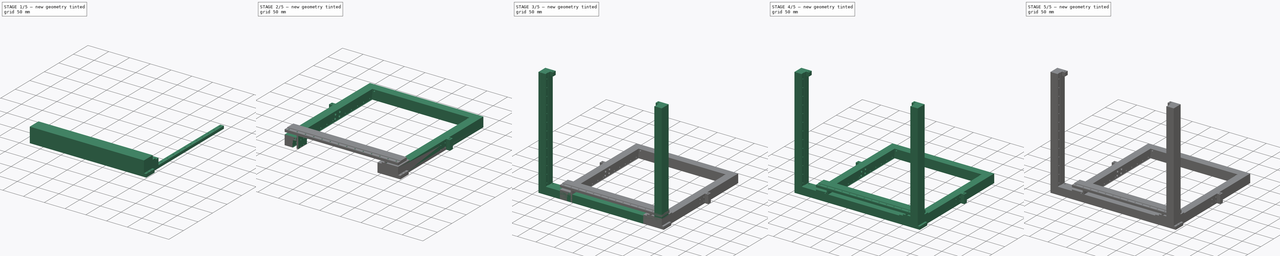
[diagram: build sequence overview — one tinted view per stage of 5, left to right]
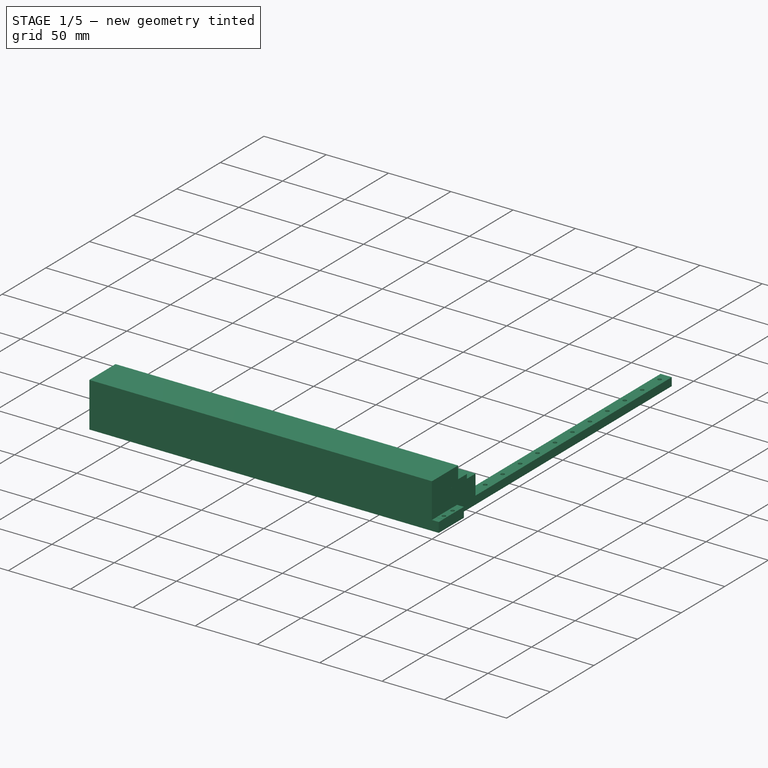
[diagram: stage 1 of 5 — iso view after this stage's code; geometry added in this stage tinted green]
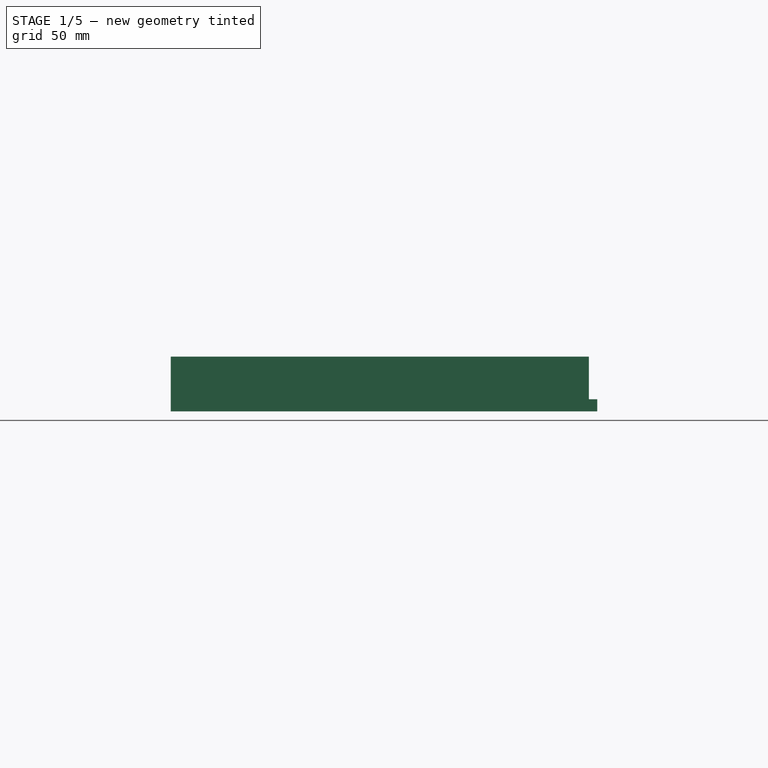
[diagram: stage 1 of 5 — front view after this stage's code; geometry added in this stage tinted green]
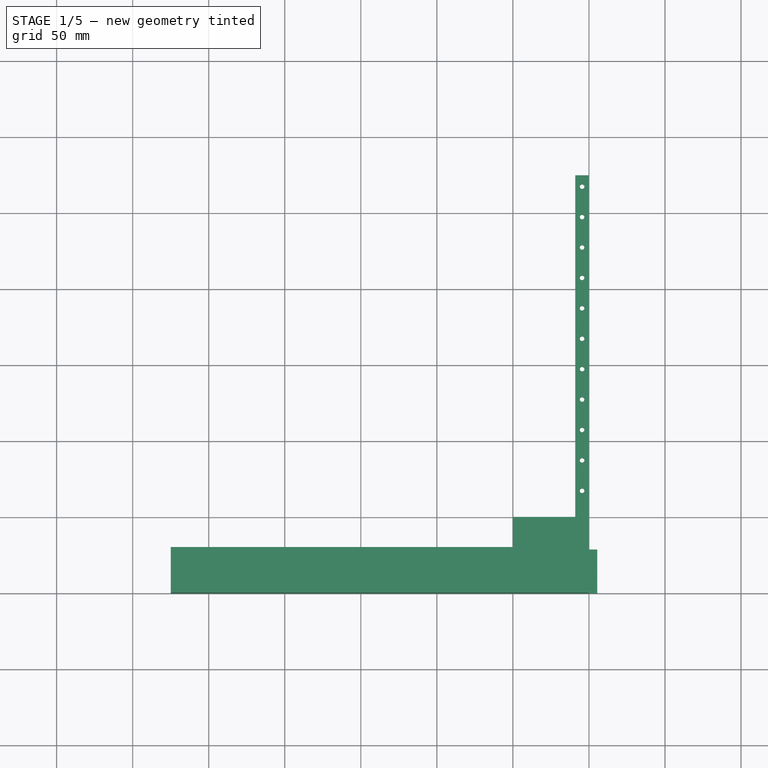
[diagram: stage 1 of 5 — top view after this stage's code; geometry added in this stage tinted green]
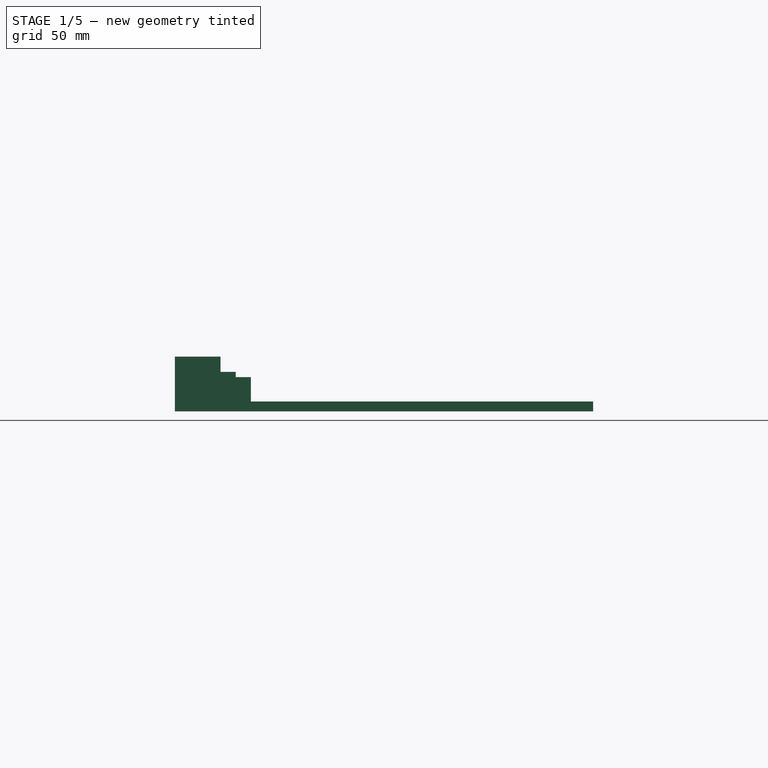
[diagram: stage 1 of 5 — right view after this stage's code; geometry added in this stage tinted green]
FCSTD DOCUMENT  (FreeCAD 0.19R24291 (Git))
Label: v3
License: All rights reserved
LicenseURL: http://en.wikipedia.org/wiki/All_rights_reserved
objects: Sketcher::SketchObject×67, PartDesign::Pocket×41, PartDesign::Pad×25, PartDesign::Body×21, App::LinkGroup×11, PartDesign::LinearPattern×10, Spreadsheet::Sheet×8, PartDesign::Plane×2, PartDesign::Mirrored×1
note: 233 computed .brp shape members not serialized (recipe doc carries the construction recipe); baked Part::Feature solids carry a one-line shape summary decoded from their .brp

FEATURE [PartDesign::Body] Body002  label="RailHead"
  Group = -> [Sketch003,Pad002,Sketch004,Pocket001,Sketch005,Pocket002,Sketch006,Pocket003]
  Origin = -> Origin002
  Placement = pos=(0,100,2) rot=(0,0,1;0rad)
  Tip = -> Pocket003
  expr: .Placement.Base.y = <<Rail>>.Head_Offset
FEATURE [App::LinkGroup] LinkGroup  label="RailGroup"
  ElementList = -> [Body001,Body002]
  LinkMode = 0
FEATURE [Sketcher::SketchObject] Sketch007
  FullyConstrained = true
  MapMode = 5
  Support = -> [XY_Plane003]
  expr: Constraints[9] = <<XRail>>.Length
  expr: Constraints[10] = <<XRail>>.Width
  sketch-geometry (4):
    g0: LineSegment StartX=-275 StartY=30 StartZ=0 EndX=0 EndY=30 EndZ=0
    g1: LineSegment StartX=0 StartY=30 StartZ=0 EndX=0 EndY=0 EndZ=0
    g2: LineSegment StartX=0 StartY=0 StartZ=0 EndX=-275 EndY=0 EndZ=0
    g3: LineSegment StartX=-275 StartY=0 StartZ=0 EndX=-275 EndY=30 EndZ=0
  constraints (11):
    c: Coincident(g0,g1)
    c: Coincident(g1,g2)
    c: Coincident(g2,g3)
    c: Coincident(g3,g0)
    c: Horizontal(g0)
    c: Horizontal(g2)
    c: Vertical(g1)
    c: Vertical(g3)
    c: Coincident(g1,g-1)
    c: DistanceX(g0,g0) = 275
    c: DistanceY(g3,g3) = 30
FEATURE [PartDesign::Pad] Pad003
  Direction = (1,1,1)
  Length = 36
  Length2 = 100
  Profile = -> Sketch007
  Type = 0
  expr: Length = <<XRail>>.Height
FEATURE [PartDesign::Body] Body004  label="RailRail001"
  Group = -> [Sketch010,Pad005,Sketch011,Pocket009,LinearPattern002]
  Origin = -> Origin004
  Tip = -> LinearPattern002
FEATURE [Sketcher::SketchObject] Sketch013
  FullyConstrained = true
  MapMode = 5
  Support = -> [XY_Plane005]
  expr: Constraints[11] = (<<Rail>>.Head_Width - <<Rail>>.Rail_Width) / 2
  expr: Constraints[10] = 0
  expr: Constraints[9] = <<Rail>>.Head_Width
  expr: Constraints[8] = <<Rail>>.Head_Length
  sketch-geometry (4):
    g0: LineSegment StartX=5.5 StartY=0 StartZ=0 EndX=-14.5 EndY=0 EndZ=0
    g1: LineSegment StartX=-14.5 StartY=0 StartZ=0 EndX=-14.5 EndY=28.8 EndZ=0
    g2: LineSegment StartX=-14.5 StartY=28.8 StartZ=0 EndX=5.5 EndY=28.8 EndZ=0
    g3: LineSegment StartX=5.5 StartY=28.8 StartZ=0 EndX=5.5 EndY=0 EndZ=0
  constraints (12):
    c: Coincident(g0,g1)
    c: Coincident(g1,g2)
    c: Coincident(g2,g3)
    c: Coincident(g3,g0)
    c: Horizontal(g0)
    c: Horizontal(g2)
    c: Vertical(g1)
    c: Vertical(g3)
    c: DistanceY(g1,g1) = 28.8
    c: DistanceX(g2,g2) = 20
    c: DistanceY(g0,g-1) = 0
    c: DistanceX(g0) = 5.5
FEATURE [PartDesign::Pad] Pad004
  Direction = (1,1,1)
  Length = 8
  Length2 = 100
  Profile = -> Sketch013
  Type = 0
  expr: Length = <<Rail>>.Head_Height
FEATURE [Sketcher::SketchObject] Sketch014
  ExternalGeometry = -> [Pad004]
  FullyConstrained = true
  MapMode = 5
  Placement = pos=(0,0,0) rot=(1,0,0;1.5708rad)
  Support = -> [Pad004]
  expr: Constraints[10] = <<Rail>>.Rail_Height - 2
  expr: Constraints[9] = <<Rail>>.Rail_Width
  sketch-geometry (4):
    g0: LineSegment StartX=-9 StartY=4.5 StartZ=0 EndX=0 EndY=4.5 EndZ=0
    g1: LineSegment StartX=0 StartY=4.5 StartZ=0 EndX=0 EndY=0 EndZ=0
    g2: LineSegment StartX=0 StartY=0 StartZ=0 EndX=-9 EndY=0 EndZ=0
    g3: LineSegment StartX=-9 StartY=0 StartZ=0 EndX=-9 EndY=4.5 EndZ=0
  constraints (11):
    c: Coincident(g0,g1)
    c: Coincident(g1,g2)
    c: Coincident(g2,g3)
    c: Coincident(g3,g0)
    c: Horizontal(g0)
    c: Horizontal(g2)
    c: Vertical(g1)
    c: Vertical(g3)
    c: Coincident(g1,g-1)
    c: DistanceX(g2,g2) = 9
    c: DistanceY(g1,g1) = 4.5
FEATURE [PartDesign::Pocket] Pocket006
  BaseFeature = -> Pad004
  Length = 28.8
  Length2 = 100
  Profile = -> Sketch014
  Type = 0
  expr: Length = <<Rail>>.Head_Length
FEATURE [Sketcher::SketchObject] Sketch015
  ExternalGeometry = -> [Pocket006]
  FullyConstrained = true
  MapMode = 5
  Placement = pos=(0,0,8) rot=(0,0,1;0rad)
  Support = -> [Pocket006]
  expr: Constraints[19] = <<Rail>>.Screw_Body_Diameter / 2
  expr: Constraints[18] = <<Rail>>.Screw_Body_Diameter / 2
  expr: Constraints[16] = <<Rail>>.Screw_Body_Diameter / 2
  expr: Constraints[15] = <<Rail>>.Head_Screw_Length
  expr: Constraints[17] = <<Rail>>.Screw_Body_Diameter / 2
  expr: Constraints[14] = <<Rail>>.Head_Screw_Width
  sketch-geometry (9):
    g0: Circle CenterX=-12 CenterY=19.4 CenterZ=0 NormalX=0 NormalY=0 NormalZ=1 AngleXU=0 Radius=1.5
    g1: Circle CenterX=3 CenterY=9.4 CenterZ=0 NormalX=0 NormalY=0 NormalZ=1 AngleXU=0 Radius=1.5
    g2: Circle CenterX=-12 CenterY=9.4 CenterZ=0 NormalX=0 NormalY=0 NormalZ=1 AngleXU=0 Radius=1.5
    g3: Circle CenterX=3 CenterY=19.4 CenterZ=0 NormalX=0 NormalY=0 NormalZ=1 AngleXU=0 Radius=1.5
    g4: LineSegment StartX=-12 StartY=19.4 StartZ=0 EndX=3 EndY=19.4 EndZ=0
    g5: LineSegment StartX=3 StartY=19.4 StartZ=0 EndX=3 EndY=9.4 EndZ=0
    g6: LineSegment StartX=3 StartY=9.4 StartZ=0 EndX=-12 EndY=9.4 EndZ=0
    g7: LineSegment StartX=-12 StartY=9.4 StartZ=0 EndX=-12 EndY=19.4 EndZ=0
    g8: GeomPoint X=-4.5 Y=14.4 Z=0
  constraints (20):
    c: Coincident(g4,g5)
    c: Coincident(g5,g6)
    c: Coincident(g6,g7)
    c: Coincident(g7,g4)
    c: Horizontal(g4)
    c: Horizontal(g6)
    c: Vertical(g5)
    c: Vertical(g7)
    c: Coincident(g4,g0)
    c: Coincident(g5,g1)
    c: Coincident(g3,g4)
    c: Coincident(g2,g6)
    c: Symmetric(g-3,g-4,g8)
    c: Symmetric(g0,g1,g8)
    c: DistanceX(g4,g4) = 15
    c: DistanceY(g5,g5) = 10
    c: Radius(g3) = 1.5
    c: Radius(g1) = 1.5
    c: Radius(g2) = 1.5
    c: Radius(g0) = 1.5
FEATURE [PartDesign::Pocket] Pocket007
  BaseFeature = -> Pocket006
  Length = 4
  Length2 = 100
  Profile = -> Sketch015
  Type = 0
  expr: Length = <<Rail>>.Head_Height / 2
FEATURE [Sketcher::SketchObject] Sketch012
  ExternalGeometry = -> [Pocket007]
  FullyConstrained = true
  MapMode = 5
  Placement = pos=(0,0,8) rot=(0,0,1;0rad)
  Support = -> [Pocket007]
  expr: Constraints[0] = <<Rail>>.Head_Plateau_Length
  sketch-geometry (9):
    g0: LineSegment StartX=-14.5 StartY=28.8 StartZ=0 EndX=5.5 EndY=28.8 EndZ=0
    g1: LineSegment StartX=5.5 StartY=28.8 StartZ=0 EndX=5.5 EndY=23.85 EndZ=0
    g2: LineSegment StartX=5.5 StartY=23.85 StartZ=0 EndX=-14.5 EndY=23.85 EndZ=0
    g3: LineSegment StartX=-14.5 StartY=23.85 StartZ=0 EndX=-14.5 EndY=28.8 EndZ=0
    g4: LineSegment StartX=5.5 StartY=0 StartZ=0 EndX=-14.5 EndY=0 EndZ=0
    g5: LineSegment StartX=-14.5 StartY=0 StartZ=0 EndX=-14.5 EndY=4.95 EndZ=0
    g6: LineSegment StartX=-14.5 StartY=4.95 StartZ=0 EndX=5.5 EndY=4.95 EndZ=0
    g7: LineSegment StartX=5.5 StartY=4.95 StartZ=0 EndX=5.5 EndY=0 EndZ=0
    g8: GeomPoint X=5.5 Y=14.4 Z=0
  constraints (20):
    c: DistanceY(g6,g1) = 18.9
    c: Coincident(g1,g0)
    c: Coincident(g1,g2)
    c: PointOnObject(g1,g-4)
    c: Coincident(g0,g-4)
    c: Coincident(g7,g6)
    c: Horizontal(g2)
    c: Horizontal(g6)
    c: Coincident(g5,g6)
    c: Coincident(g2,g3)
    c: Coincident(g0,g3)
    c: Coincident(g0,g-3)
    c: Coincident(g4,g5)
    c: Coincident(g4,g-3)
    c: Coincident(g4,g7)
    c: Coincident(g4,g-4)
    c: Symmetric(g0,g4,g8)
    c: Symmetric(g1,g6,g8)
    c: Vertical(g3)
    c: Vertical(g5)
FEATURE [PartDesign::Pocket] Pocket008
  BaseFeature = -> Pocket007
  Length = 0.1
  Length2 = 100
  Profile = -> Sketch012
  Type = 0
FEATURE [PartDesign::Body] Body003  label="XRailBody"
  Group = -> [Sketch007,Pad003,Sketch008,Pocket004,Sketch009,Pocket005,LinearPattern001,Sketch017,Pocket010,Sketch018,Pocket011,Sketch062,Pad020]
  Origin = -> Origin003
  Tip = -> Pad020
FEATURE [App::LinkGroup] LinkGroup002  label="XRail_Group"
  ElementList = -> [Body003,LinkGroup001,Body006]
  LinkMode = 0
  Placement = pos=(0,100,-4.5) rot=(0,0,1;0rad)
  expr: .Placement.Base.y = <<Rail>>.Head_Offset
  expr: .Placement.Base.z = -5.5 + <<YRail>>.Carrier_Groove_Offset
FEATURE [App::LinkGroup] LinkGroup006  label="XY_Assembly"
  ElementList = -> [LinkGroup005,LinkGroup002]
  LinkMode = 0
  Placement = pos=(0,0,122.65) rot=(0,0,1;0rad)
  expr: .Placement.Base.z = <<ZRail>>.Carrier_Height + <<Rail>>.Head_Offset + <<Rail>>.Head_Length / 2 - <<YRail>>.Height / 2
FEATURE [Spreadsheet::Sheet] Spreadsheet006  label="JoystickHolder"
  cells = A6=Width; B6(Width)=40; A7=Height; B7(Height)==<<XRail>>.GR_Height + Strength + <<Rail>>.Head_Height + <<Rail>>.Base_To_Head_Base - <<XRail>>.Rail_Groove_Depth; A8=Depth; B8(Depth)=40; A9=Strength; B9(Strength)=10; A11=XCon_Wid; B11(XCon_Wid)==<<Rail>>.Head_Length; A12=XCon_Depth; B12(XCon_Depth)==<<Rail>>.Head_Width
FEATURE [Sketcher::SketchObject] Sketch063
  FullyConstrained = true
  MapMode = 5
  Support = -> [XY_Plane017]
  expr: Constraints[47] = <<Joystick>>.Screw_Body_Diameter / 2
  expr: Constraints[40] = <<Rail>>.Screw_Body_Diameter / 2
  expr: Constraints[19] = <<JoystickHolder>>.Strength
  expr: Constraints[8] = <<Joystick>>.Screw_Width
  expr: Constraints[48] = <<Joystick>>.Screw_Body_Diameter / 2
  expr: Constraints[20] = <<JoystickHolder>>.Width
  expr: Constraints[33] = <<Rail>>.Head_Screw_Width
  expr: Constraints[49] = <<Joystick>>.Screw_Body_Diameter / 2
  expr: Constraints[34] = <<Rail>>.Head_Screw_Length
  expr: Constraints[50] = <<JoystickHolder>>.Depth
  expr: Constraints[35] = <<Rail>>.Screw_Body_Diameter / 2
  expr: Constraints[37] = <<Rail>>.Screw_Body_Diameter / 2
  expr: Constraints[9] = <<Joystick>>.Screw_Depth
  expr: Constraints[22] = <<JoystickHolder>>.Width / 2
  expr: Constraints[41] = <<Rail>>.Screw_Body_Diameter / 2
  expr: Constraints[46] = <<Joystick>>.Screw_Body_Diameter / 2
  sketch-geometry (21):
    g0: LineSegment StartX=-30 StartY=30 StartZ=0 EndX=-10 EndY=30 EndZ=0
    g1: LineSegment StartX=-10 StartY=30 StartZ=0 EndX=-10 EndY=10 EndZ=0
    g2: LineSegment StartX=-10 StartY=10 StartZ=0 EndX=-30 EndY=10 EndZ=0
    g3: LineSegment StartX=-30 StartY=10 StartZ=0 EndX=-30 EndY=30 EndZ=0
    g4: LineSegment StartX=-40 StartY=40 StartZ=0 EndX=0 EndY=40 EndZ=0
    g5: LineSegment StartX=0 StartY=40 StartZ=0 EndX=0 EndY=0 EndZ=0
    g6: LineSegment StartX=0 StartY=0 StartZ=0 EndX=-40 EndY=0 EndZ=0
    g7: LineSegment StartX=-40 StartY=0 StartZ=0 EndX=-40 EndY=40 EndZ=0
    g8: GeomPoint X=-20 Y=20 Z=0
    g9: LineSegment StartX=-25 StartY=27.5 StartZ=0 EndX=-15 EndY=27.5 EndZ=0
    g10: LineSegment StartX=-15 StartY=27.5 StartZ=0 EndX=-15 EndY=12.5 EndZ=0
    g11: LineSegment StartX=-15 StartY=12.5 StartZ=0 EndX=-25 EndY=12.5 EndZ=0
    g12: LineSegment StartX=-25 StartY=12.5 StartZ=0 EndX=-25 EndY=27.5 EndZ=0
    g13: Circle CenterX=-15 CenterY=27.5 CenterZ=0 NormalX=0 NormalY=0 NormalZ=1 AngleXU=0 Radius=1.5
    g14: Circle CenterX=-25 CenterY=27.5 CenterZ=0 NormalX=0 NormalY=0 NormalZ=1 AngleXU=0 Radius=1.5
    g15: Circle CenterX=-25 CenterY=12.5 CenterZ=0 NormalX=0 NormalY=0 NormalZ=1 AngleXU=0 Radius=1.5
    g16: Circle CenterX=-15 CenterY=12.5 CenterZ=0 NormalX=0 NormalY=0 NormalZ=1 AngleXU=0 Radius=1.5
    g17: Circle CenterX=-10 CenterY=30 CenterZ=0 NormalX=0 NormalY=0 NormalZ=1 AngleXU=0 Radius=1
    g18: Circle CenterX=-10 CenterY=10 CenterZ=0 NormalX=0 NormalY=0 NormalZ=1 AngleXU=0 Radius=1
    g19: Circle CenterX=-30 CenterY=10 CenterZ=0 NormalX=0 NormalY=0 NormalZ=1 AngleXU=0 Radius=1
    g20: Circle CenterX=-30 CenterY=30 CenterZ=0 NormalX=0 NormalY=0 NormalZ=1 AngleXU=0 Radius=1
  constraints (51):
    c: Coincident(g0,g1)
    c: Coincident(g1,g2)
    c: Coincident(g2,g3)
    c: Coincident(g3,g0)
    c: Horizontal(g0)
    c: Horizontal(g2)
    c: Vertical(g1)
    c: Vertical(g3)
    c: DistanceX(g0,g0) = 20
    c: DistanceY(g1,g1) = 20
    c: Coincident(g4,g5)
    c: Coincident(g5,g6)
    c: Coincident(g6,g7)
    c: Coincident(g7,g4)
    c: Horizontal(g4)
    c: Horizontal(g6)
    c: Vertical(g5)
    c: Vertical(g7)
    c: Coincident(g5,g-1)
    c: DistanceY(g5,g1) = 10
    c: DistanceX(g4,g4) = 40
    c: Symmetric(g0,g1,g8)
    c: DistanceX(g4,g8) = 20
    c: Coincident(g9,g10)
    c: Coincident(g10,g11)
    c: Coincident(g11,g12)
    c: Coincident(g12,g9)
    c: Horizontal(g9)
    c: Horizontal(g11)
    c: Vertical(g10)
    c: Vertical(g12)
    c: Symmetric(g9,g11,g8)
    c: Coincident(g13,g9)
    c: DistanceY(g10,g10) = 15
    c: DistanceX(g11,g11) = 10
    c: Radius(g13) = 1.5
    c: Coincident(g14,g9)
    c: Radius(g14) = 1.5
    c: Coincident(g15,g11)
    c: Coincident(g16,g10)
    c: Radius(g16) = 1.5
    c: Radius(g15) = 1.5
    c: Coincident(g17,g0)
    c: Coincident(g18,g1)
    c: Coincident(g19,g2)
    c: Coincident(g20,g0)
    c: Radius(g20) = 1
    c: Radius(g17) = 1
    c: Radius(g18) = 1
    c: Radius(g19) = 1
    c: DistanceY(g5,g5) = 40
FEATURE [PartDesign::Pad] Pad021
  Direction = (1,1,1)
  Length = 26
  Length2 = 100
  Profile = -> Sketch063
  Type = 0
  expr: Length = <<JoystickHolder>>.Height
FEATURE [Sketcher::SketchObject] Sketch064
  ExternalGeometry = -> [Pad021]
  FullyConstrained = true
  MapMode = 5
  Placement = pos=(0,0,0) rot=(0.57735,0.57735,0.57735;2.0944rad)
  Support = -> [Pad021]
  expr: Constraints[5] = <<JoystickHolder>>.Strength
  expr: Constraints[7] = <<Rail>>.Head_Height + <<XRail>>.SafetyDistance
  expr: Constraints[6] = <<GeneralProperties>>.GuideRodDiameter / 2
  expr: Constraints[17] = 0
  expr: Constraints[22] = <<XRail>>.GR_Depth - <<XRail>>.SafetyDistance
  expr: Constraints[19] = <<Rail>>.Head_Width / 2 - <<Rail>>.Rail_Width / 2
  expr: Constraints[20] = <<JoystickHolder>>.Strength + <<Rail>>.Head_Width / 2 - <<Rail>>.Rail_Width / 2 - <<XRail>>.SafetyDistance
  sketch-geometry (9):
    g0: LineSegment StartX=9 StartY=7 StartZ=0 EndX=9 EndY=16 EndZ=0
    g1: LineSegment StartX=9 StartY=16 StartZ=0 EndX=40 EndY=16 EndZ=0
    g2: LineSegment StartX=40 StartY=16 StartZ=0 EndX=40 EndY=7 EndZ=0
    g3: Circle CenterX=11 CenterY=3.5 CenterZ=0 NormalX=0 NormalY=0 NormalZ=1 AngleXU=0 Radius=2
    g4: LineSegment StartX=40 StartY=7 StartZ=0 EndX=40 EndY=0 EndZ=0
    g5: LineSegment StartX=40 StartY=0 StartZ=0 EndX=14.5 EndY=0 EndZ=0
    g6: LineSegment StartX=14.5 StartY=0 StartZ=0 EndX=14.5 EndY=7 EndZ=0
    g7: LineSegment StartX=9 StartY=7 StartZ=0 EndX=14.5 EndY=7 EndZ=0
    g8: GeomPoint X=7.5 Y=0 Z=0
  constraints (24):
    c: Coincident(g0,g1)
    c: Coincident(g1,g2)
    c: Horizontal(g1)
    c: Vertical(g0)
    c: Vertical(g2)
    c: DistanceY(g0,g-3) = 10
    c: Radius(g3) = 2
    c: DistanceY(g2,g2) = 9
    c: PointOnObject(g1,g-3)
    c: Coincident(g4,g5)
    c: Coincident(g5,g6)
    c: Horizontal(g5)
    c: Vertical(g6)
    c: Coincident(g4,g-3)
    c: Coincident(g7,g0)
    c: Coincident(g7,g6)
    c: Horizontal(g7)
    c: DistanceY(g4,g0) = 0
    c: Coincident(g2,g4)
    c: DistanceX(g7,g7) = 5.5
    c: DistanceX(g-1,g5) = 14.5
    c: PointOnObject(g8,g-1)
    c: DistanceX(g8,g5) = 7
    c: Symmetric(g8,g6,g3)
FEATURE [PartDesign::Pocket] Pocket039
  BaseFeature = -> Pad021
  Length = 40
  Length2 = 100
  Profile = -> Sketch064
  Type = 0
  expr: Length = <<JoystickHolder>>.Width
FEATURE [Spreadsheet::Sheet] Spreadsheet007  label="Joystick"
  cells = A5=Screw_Width; B5(Screw_Width)=20; A6=Screw_Depth; B6(Screw_Depth)=20; A8=Screw_Body_Diameter; B8(Screw_Body_Diameter)=2; A9=Screw_Head_Diameter; B9(Screw_Head_Diameter)=3; A11=Width; B11(Width)=50; A12=Height; B12(Height)=22.5; A13=Depth; B13(Depth)=50
FEATURE [Sketcher::SketchObject] Sketch065
  FullyConstrained = true
  MapMode = 5
  Support = -> [XY_Plane018]
  expr: Constraints[11] = (<<Rail>>.Head_Width - <<Rail>>.Rail_Width) / 2
  expr: Constraints[10] = 0
  expr: Constraints[9] = <<Rail>>.Head_Width
  expr: Constraints[8] = <<Rail>>.Head_Length
  sketch-geometry (4):
    g0: LineSegment StartX=5.5 StartY=0 StartZ=0 EndX=-14.5 EndY=0 EndZ=0
    g1: LineSegment StartX=-14.5 StartY=0 StartZ=0 EndX=-14.5 EndY=28.8 EndZ=0
    g2: LineSegment StartX=-14.5 StartY=28.8 StartZ=0 EndX=5.5 EndY=28.8 EndZ=0
    g3: LineSegment StartX=5.5 StartY=28.8 StartZ=0 EndX=5.5 EndY=0 EndZ=0
  constraints (12):
    c: Coincident(g0,g1)
    c: Coincident(g1,g2)
    c: Coincident(g2,g3)
    c: Coincident(g3,g0)
    c: Horizontal(g0)
    c: Horizontal(g2)
    c: Vertical(g1)
    c: Vertical(g3)
    c: DistanceY(g1,g1) = 28.8
    c: DistanceX(g2,g2) = 20
    c: DistanceY(g0,g-1) = 0
    c: DistanceX(g0) = 5.5
FEATURE [Sketcher::SketchObject] Sketch068
  FullyConstrained = true
  MapMode = 5
  Support = -> [XY_Plane019]
  expr: Constraints[10] = <<Rail>>.Rail_Length
  expr: Constraints[9] = <<Rail>>.Rail_Width
  sketch-geometry (6):
    g0: LineSegment StartX=-9 StartY=275 StartZ=0 EndX=0 EndY=275 EndZ=0
    g1: LineSegment StartX=0 StartY=275 StartZ=0 EndX=0 EndY=0 EndZ=0
    g2: LineSegment StartX=0 StartY=0 StartZ=0 EndX=-9 EndY=0 EndZ=0
    g3: LineSegment StartX=-9 StartY=0 StartZ=0 EndX=-9 EndY=275 EndZ=0
    g4: GeomPoint X=-4.5 Y=0 Z=0
    g5: LineSegment StartX=-4.5 StartY=0 StartZ=0 EndX=-4.5 EndY=275 EndZ=0
  constraints (15):
    c: Coincident(g0,g1)
    c: Coincident(g1,g2)
    c: Coincident(g2,g3)
    c: Coincident(g3,g0)
    c: Horizontal(g0)
    c: Horizontal(g2)
    c: Vertical(g1)
    c: Vertical(g3)
    c: Coincident(g1,g-1)
    c: DistanceX(g2,g2) = 9
    c: DistanceY(g3,g3) = 275
    c: Symmetric(g2,g1,g4)
    c: Coincident(g5,g4)
    c: Vertical(g5)
    c: PointOnObject(g5,g0)
FEATURE [PartDesign::Pad] Pad022
  Direction = (1,1,1)
  Length = 6.5
  Length2 = 100
  Profile = -> Sketch068
  Type = 0
  expr: Length = <<Rail>>.Rail_Height
FEATURE [Sketcher::SketchObject] Sketch067
  ExternalGeometry = -> [Pad022]
  FullyConstrained = true
  MapMode = 5
  Placement = pos=(0,0,6.5) rot=(0,0,1;0rad)
  Support = -> [Pad022]
  expr: Constraints[2] = <<Rail>>.Screw_Body_Diameter / 2
  expr: Constraints[1] = <<Rail>>.First_Screw_To_Edge
  expr: Constraints[0] = <<Rail>>.Rail_Width / 2
  sketch-geometry (1):
    g0: Circle CenterX=-4.5 CenterY=7.5 CenterZ=0 NormalX=0 NormalY=0 NormalZ=1 AngleXU=0 Radius=1.5
  constraints (3):
    c: DistanceX(g0,g-1) = 4.5
    c: DistanceY(g-1,g0) = 7.5
    c: Radius(g0) = 1.5
FEATURE [PartDesign::Pad] Pad023
  Direction = (1,1,1)
  Length = 8
  Length2 = 100
  Profile = -> Sketch065
  Type = 0
  expr: Length = <<Rail>>.Head_Height
FEATURE [Sketcher::SketchObject] Sketch070
  ExternalGeometry = -> [Pad023]
  FullyConstrained = true
  MapMode = 5
  Placement = pos=(0,0,0) rot=(1,0,0;1.5708rad)
  Support = -> [Pad023]
  expr: Constraints[10] = <<Rail>>.Rail_Height - 2
  expr: Constraints[9] = <<Rail>>.Rail_Width
  sketch-geometry (4):
    g0: LineSegment StartX=-9 StartY=4.5 StartZ=0 EndX=0 EndY=4.5 EndZ=0
    g1: LineSegment StartX=0 StartY=4.5 StartZ=0 EndX=0 EndY=0 EndZ=0
    g2: LineSegment StartX=0 StartY=0 StartZ=0 EndX=-9 EndY=0 EndZ=0
    g3: LineSegment StartX=-9 StartY=0 StartZ=0 EndX=-9 EndY=4.5 EndZ=0
  constraints (11):
    c: Coincident(g0,g1)
    c: Coincident(g1,g2)
    c: Coincident(g2,g3)
    c: Coincident(g3,g0)
    c: Horizontal(g0)
    c: Horizontal(g2)
    c: Vertical(g1)
    c: Vertical(g3)
    c: Coincident(g1,g-1)
    c: DistanceX(g2,g2) = 9
    c: DistanceY(g1,g1) = 4.5
FEATURE [PartDesign::Pocket] Pocket041
  BaseFeature = -> Pad022
  Length = 6.5
  Length2 = 100
  Profile = -> Sketch067
  Type = 0
  expr: Length = <<Rail>>.Rail_Height
FEATURE [PartDesign::LinearPattern] LinearPattern009
  BaseFeature = -> Pocket041
  Direction = -> Y_Axis019
  Length = 260
  Occurrences = 14
  Originals = -> [Pocket041]
  expr: Length = <<Rail>>.Rail_Length - <<Rail>>.First_Screw_To_Edge * 2
  expr: Occurrences = (<<Rail>>.Rail_Length - <<Rail>>.First_Screw_To_Edge * 2) / <<Rail>>.Screw_To_Screw + 1
FEATURE [PartDesign::Pocket] Pocket042
  BaseFeature = -> Pad023
  Length = 28.8
  Length2 = 100
  Profile = -> Sketch070
  Type = 0
  expr: Length = <<Rail>>.Head_Length
FEATURE [Sketcher::SketchObject] Sketch069
  ExternalGeometry = -> [Pocket042]
  FullyConstrained = true
  MapMode = 5
  Placement = pos=(0,0,8) rot=(0,0,1;0rad)
  Support = -> [Pocket042]
  expr: Constraints[19] = <<Rail>>.Screw_Body_Diameter / 2
  expr: Constraints[18] = <<Rail>>.Screw_Body_Diameter / 2
  expr: Constraints[16] = <<Rail>>.Screw_Body_Diameter / 2
  expr: Constraints[15] = <<Rail>>.Head_Screw_Length
  expr: Constraints[17] = <<Rail>>.Screw_Body_Diameter / 2
  expr: Constraints[14] = <<Rail>>.Head_Screw_Width
  sketch-geometry (9):
    g0: Circle CenterX=-12 CenterY=19.4 CenterZ=0 NormalX=0 NormalY=0 NormalZ=1 AngleXU=0 Radius=1.5
    g1: Circle CenterX=3 CenterY=9.4 CenterZ=0 NormalX=0 NormalY=0 NormalZ=1 AngleXU=0 Radius=1.5
    g2: Circle CenterX=-12 CenterY=9.4 CenterZ=0 NormalX=0 NormalY=0 NormalZ=1 AngleXU=0 Radius=1.5
    g3: Circle CenterX=3 CenterY=19.4 CenterZ=0 NormalX=0 NormalY=0 NormalZ=1 AngleXU=0 Radius=1.5
    g4: LineSegment StartX=-12 StartY=19.4 StartZ=0 EndX=3 EndY=19.4 EndZ=0
    g5: LineSegment StartX=3 StartY=19.4 StartZ=0 EndX=3 EndY=9.4 EndZ=0
    g6: LineSegment StartX=3 StartY=9.4 StartZ=0 EndX=-12 EndY=9.4 EndZ=0
    g7: LineSegment StartX=-12 StartY=9.4 StartZ=0 EndX=-12 EndY=19.4 EndZ=0
    g8: GeomPoint X=-4.5 Y=14.4 Z=0
  constraints (20):
    c: Coincident(g4,g5)
    c: Coincident(g5,g6)
    c: Coincident(g6,g7)
    c: Coincident(g7,g4)
    c: Horizontal(g4)
    c: Horizontal(g6)
    c: Vertical(g5)
    c: Vertical(g7)
    c: Coincident(g4,g0)
    c: Coincident(g5,g1)
    c: Coincident(g3,g4)
    c: Coincident(g2,g6)
    c: Symmetric(g-3,g-4,g8)
    c: Symmetric(g0,g1,g8)
    c: DistanceX(g4,g4) = 15
    c: DistanceY(g5,g5) = 10
    c: Radius(g3) = 1.5
    c: Radius(g1) = 1.5
    c: Radius(g2) = 1.5
    c: Radius(g0) = 1.5
FEATURE [PartDesign::Pocket] Pocket043
  BaseFeature = -> Pocket042
  Length = 4
  Length2 = 100
  Profile = -> Sketch069
  Type = 0
  expr: Length = <<Rail>>.Head_Screw_Depth
FEATURE [Sketcher::SketchObject] Sketch066
  ExternalGeometry = -> [Pocket043]
  FullyConstrained = true
  MapMode = 5
  Placement = pos=(0,0,8) rot=(0,0,1;0rad)
  Support = -> [Pocket043]
  expr: Constraints[0] = <<Rail>>.Head_Plateau_Length
  sketch-geometry (9):
    g0: LineSegment StartX=-14.5 StartY=28.8 StartZ=0 EndX=5.5 EndY=28.8 EndZ=0
    g1: LineSegment StartX=5.5 StartY=28.8 StartZ=0 EndX=5.5 EndY=23.85 EndZ=0
    g2: LineSegment StartX=5.5 StartY=23.85 StartZ=0 EndX=-14.5 EndY=23.85 EndZ=0
    g3: LineSegment StartX=-14.5 StartY=23.85 StartZ=0 EndX=-14.5 EndY=28.8 EndZ=0
    g4: LineSegment StartX=5.5 StartY=0 StartZ=0 EndX=-14.5 EndY=0 EndZ=0
    g5: LineSegment StartX=-14.5 StartY=0 StartZ=0 EndX=-14.5 EndY=4.95 EndZ=0
    g6: LineSegment StartX=-14.5 StartY=4.95 StartZ=0 EndX=5.5 EndY=4.95 EndZ=0
    g7: LineSegment StartX=5.5 StartY=4.95 StartZ=0 EndX=5.5 EndY=0 EndZ=0
    g8: GeomPoint X=5.5 Y=14.4 Z=0
  constraints (20):
    c: DistanceY(g6,g1) = 18.9
    c: Coincident(g1,g0)
    c: Coincident(g1,g2)
    c: PointOnObject(g1,g-4)
    c: Coincident(g0,g-4)
    c: Coincident(g7,g6)
    c: Horizontal(g2)
    c: Horizontal(g6)
    c: Coincident(g5,g6)
    c: Coincident(g2,g3)
    c: Coincident(g0,g3)
    c: Coincident(g0,g-3)
    c: Coincident(g4,g5)
    c: Coincident(g4,g-3)
    c: Coincident(g4,g7)
    c: Coincident(g4,g-4)
    c: Symmetric(g0,g4,g8)
    c: Symmetric(g1,g6,g8)
    c: Vertical(g3)
    c: Vertical(g5)
FEATURE [PartDesign::Pocket] Pocket040
  BaseFeature = -> Pocket043
  Length = 0.1
  Length2 = 100
  Profile = -> Sketch066
  Type = 0
FEATURE [PartDesign::Body] Body018  label="RailRail006"
  Group = -> [Sketch068,Pad022,Sketch067,Pocket041,LinearPattern009]
  Origin = -> Origin018
  Tip = -> LinearPattern009
FEATURE [PartDesign::Body] Body019  label="RailHead006"
  Group = -> [Sketch065,Pad023,Sketch070,Pocket042,Sketch069,Pocket043,Sketch066,Pocket040]
  Origin = -> Origin019
  Placement = pos=(0,100,2) rot=(0,0,1;0rad)
  Tip = -> Pocket040
  expr: .Placement.Base.y = <<Rail>>.Head_Offset
FEATURE [App::LinkGroup] LinkGroup010  label="RailGroup001"
  ElementList = -> [Body018,Body019]
  LinkMode = 0
  Placement = pos=(94.4,24.5,14) rot=(0,0,1;1.5708rad)
FEATURE [Sketcher::SketchObject] Sketch071
  FullyConstrained = true
  MapMode = 5
  Support = -> [XY_Plane017]
FEATURE [PartDesign::Body] Body017  label="JoystickHolderBOdy"
  AttacherType = Attacher::AttachEngine3D
  Group = -> [Sketch063,Pad021,Sketch064,Pocket039,Sketch071]
  MapMode = 5
  Origin = -> Origin017
  Placement = pos=(0,0,8) rot=(0,0,1;0rad)
  Support = -> [Pocket008]
  Tip = -> Pocket039
FEATURE [Sketcher::SketchObject] Sketch072
  FullyConstrained = true
  MapMode = 5
  Support = -> [XY_Plane020]
  expr: Constraints[9] = <<Joystick>>.Depth
  expr: Constraints[10] = <<Joystick>>.Width
  sketch-geometry (4):
    g0: LineSegment StartX=-50 StartY=50 StartZ=0 EndX=0 EndY=50 EndZ=0
    g1: LineSegment StartX=0 StartY=50 StartZ=0 EndX=0 EndY=0 EndZ=0
    g2: LineSegment StartX=0 StartY=0 StartZ=0 EndX=-50 EndY=0 EndZ=0
    g3: LineSegment StartX=-50 StartY=0 StartZ=0 EndX=-50 EndY=50 EndZ=0
  constraints (11):
    c: Coincident(g0,g1)
    c: Coincident(g1,g2)
    c: Coincident(g2,g3)
    c: Coincident(g3,g0)
    c: Horizontal(g0)
    c: Horizontal(g2)
    c: Vertical(g1)
    c: Vertical(g3)
    c: Coincident(g1,g-1)
    c: DistanceY(g3,g3) = 50
    c: DistanceX(g0,g0) = 50
FEATURE [PartDesign::Pad] Pad024
  Direction = (1,1,1)
  Length = 22.5
  Length2 = 100
  Profile = -> Sketch072
  Type = 0
  expr: Length = <<Joystick>>.Height
FEATURE [PartDesign::Body] Body020
  Group = -> [Sketch072,Pad024]
  Origin = -> Origin020
  Tip = -> Pad024
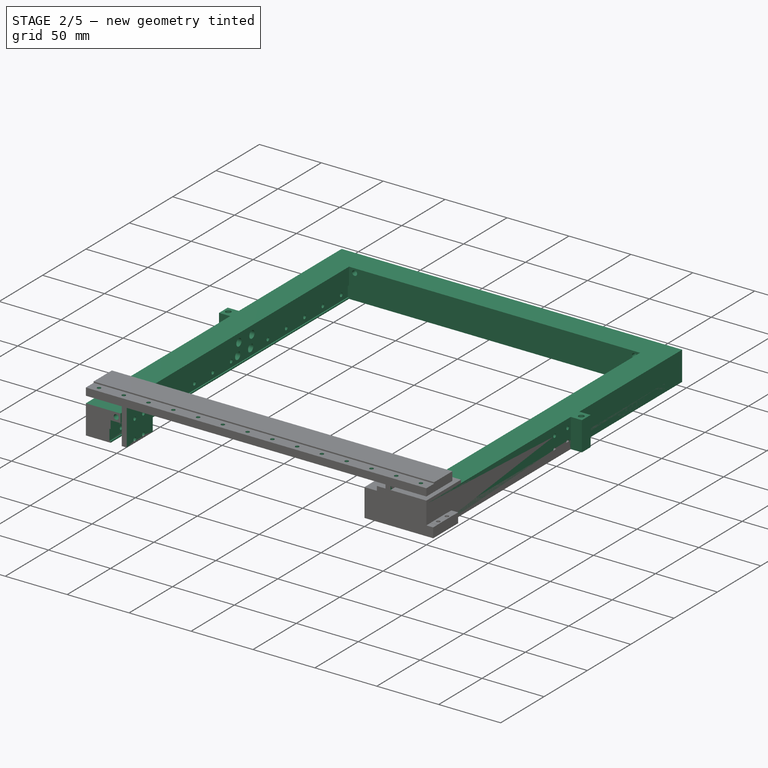
[diagram: stage 2 of 5 — iso view after this stage's code; geometry added in this stage tinted green]
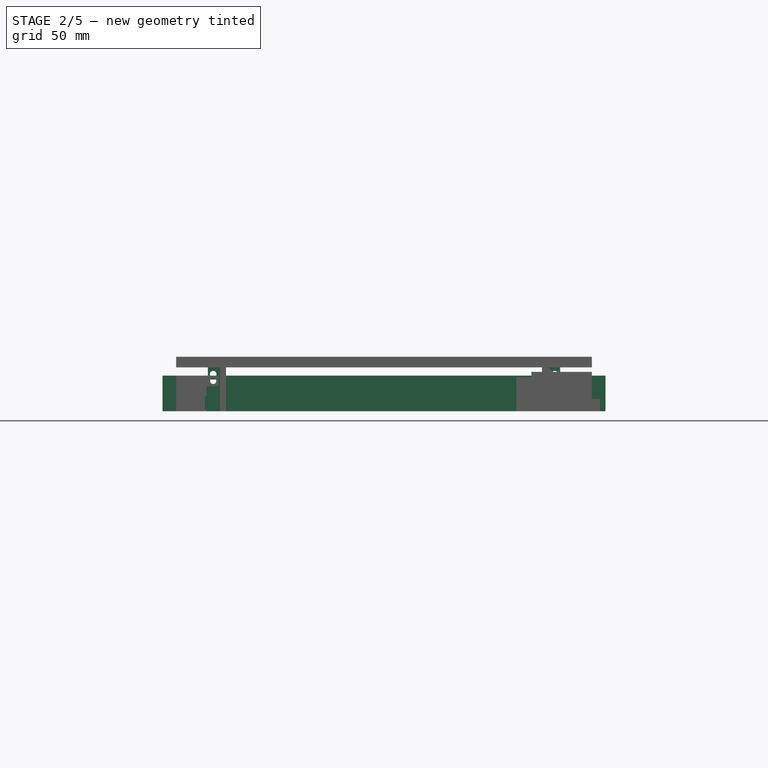
[diagram: stage 2 of 5 — front view after this stage's code; geometry added in this stage tinted green]
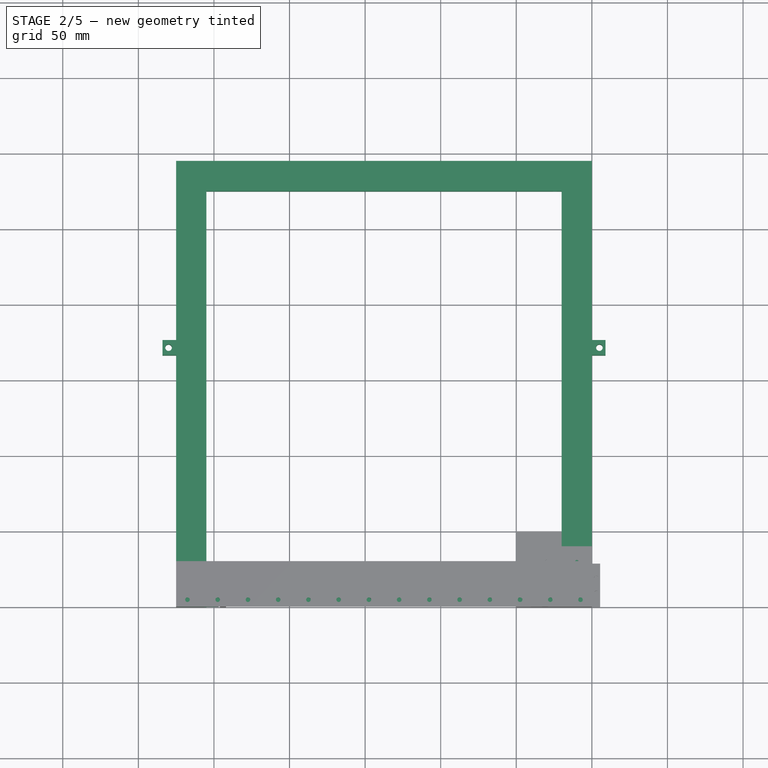
[diagram: stage 2 of 5 — top view after this stage's code; geometry added in this stage tinted green]
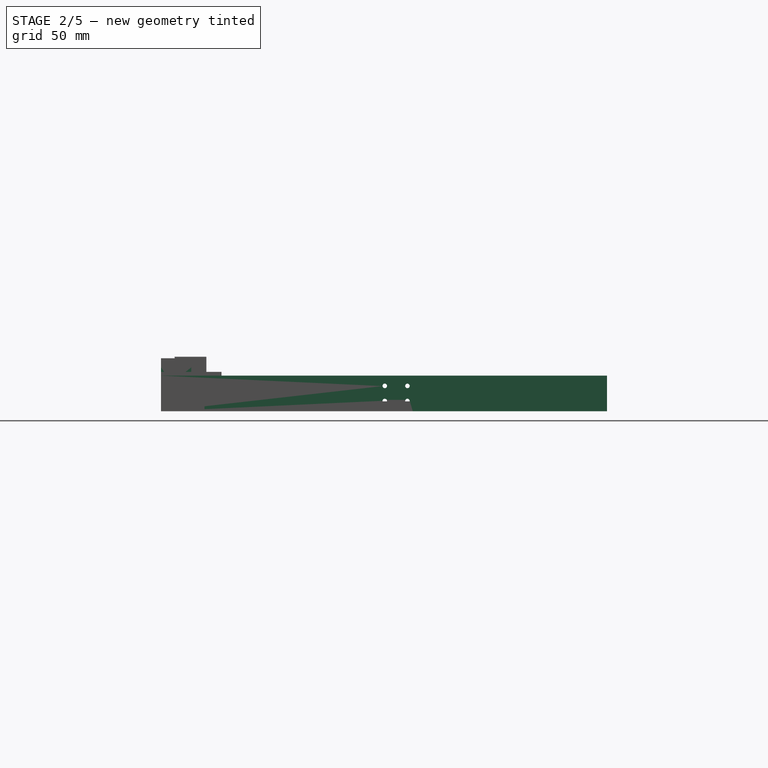
[diagram: stage 2 of 5 — right view after this stage's code; geometry added in this stage tinted green]
FEATURE [Sketcher::SketchObject] Sketch008
  ExternalGeometry = -> [Pad003]
  FullyConstrained = true
  MapMode = 5
  Placement = pos=(0,0,0) rot=(0.57735,0.57735,0.57735;2.0944rad)
  Support = -> [Pad003]
  expr: Constraints[8] = <<Rail>>.Rail_Width
  expr: Constraints[9] = <<XRail>>.Rail_Groove_Depth
  expr: Constraints[10] = <<XRail>>.Rail_Groove_Offset
  sketch-geometry (4):
    g0: LineSegment StartX=0 StartY=36 StartZ=0 EndX=9 EndY=36 EndZ=0
    g1: LineSegment StartX=9 StartY=36 StartZ=0 EndX=9 EndY=35 EndZ=0
    g2: LineSegment StartX=9 StartY=35 StartZ=0 EndX=0 EndY=35 EndZ=0
    g3: LineSegment StartX=0 StartY=35 StartZ=0 EndX=0 EndY=36 EndZ=0
  constraints (12):
    c: Coincident(g0,g1)
    c: Coincident(g1,g2)
    c: Coincident(g2,g3)
    c: Coincident(g3,g0)
    c: Horizontal(g0)
    c: Horizontal(g2)
    c: Vertical(g1)
    c: Vertical(g3)
    c: DistanceX(g0,g0) = 9
    c: DistanceY(g3,g3) = 1
    c: DistanceX(g-3,g0) = 0
    c: PointOnObject(g0,g-3)
FEATURE [PartDesign::Pocket] Pocket004
  BaseFeature = -> Pad003
  Length = 275
  Length2 = 100
  Profile = -> Sketch008
  Type = 0
  expr: Length = <<XRail>>.Length
FEATURE [Sketcher::SketchObject] Sketch009
  FullyConstrained = true
  MapMode = 5
  Placement = pos=(0,0,36) rot=(0,0,1;0rad)
  Support = -> [Pocket004]
  expr: Constraints[1] = <<XRail>>.Width
  expr: Constraints[5] = <<XRail>>.Rail_Groove_Offset
  expr: Constraints[6] = <<Rail>>.Rail_Width
  expr: Constraints[7] = <<Rail>>.Screw_Body_Diameter / 2
  expr: Constraints[8] = <<Rail>>.First_Screw_To_Edge
  expr: Constraints[9] = 0
  sketch-geometry (5):
    g0: GeomPoint X=0 Y=30 Z=0
    g1: GeomPoint X=0 Y=4.5 Z=0
    g2: GeomPoint X=0 Y=9 Z=0
    g3: GeomPoint X=0 Y=0 Z=0
    g4: Circle CenterX=-7.5 CenterY=4.5 CenterZ=0 NormalX=0 NormalY=0 NormalZ=1 AngleXU=0 Radius=1.5
  constraints (10):
    c: PointOnObject(g0,g-2)
    c: DistanceY(g-1,g0) = 30
    c: PointOnObject(g1,g-2)
    c: PointOnObject(g2,g-2)
    c: Symmetric(g3,g2,g1)
    c: DistanceY(g-1,g3) = 0
    c: DistanceY(g3,g2) = 9
    c: Radius(g4) = 1.5
    c: DistanceX(g4,g1) = 7.5
    c: DistanceY(g1,g4) = 0
FEATURE [PartDesign::Pocket] Pocket005
  BaseFeature = -> Pocket004
  Length = 6
  Length2 = 100
  Profile = -> Sketch009
  Type = 0
  expr: Length = <<XRail>>.Rail_Groove_Depth + <<Rail>>.Rail_Screw_Remaining_Length
FEATURE [PartDesign::LinearPattern] LinearPattern001
  BaseFeature = -> Pocket005
  Direction = -> X_Axis003
  Length = 260
  Occurrences = 14
  Originals = -> [Pocket005]
  Reversed = true
  expr: Length = <<Rail>>.Rail_Length - 2 * <<Rail>>.First_Screw_To_Edge
  expr: Occurrences = (<<Rail>>.Rail_Length - 2 * <<Rail>>.First_Screw_To_Edge) / <<Rail>>.Screw_To_Screw + 1
FEATURE [PartDesign::Body] Body006  label="OpticalSensorXRail"
  Group = -> [Sketch016,Pad006]
  Origin = -> Origin006
  Placement = pos=(-100,14.5,36) rot=(0,0,1;0rad)
  Tip = -> Pad006
  expr: .Placement.Base.z = <<XRail>>.Height
  expr: .Placement.Base.y = <<XRail>>.Rail_Groove_Offset + <<Rail>>.Rail_Width / 2 + <<Rail>>.Head_Width / 2
  expr: .Placement.Base.x = -<<Rail>>.Head_Offset
FEATURE [Sketcher::SketchObject] Sketch017
  FullyConstrained = true
  MapMode = 5
  Placement = pos=(0,0,0) rot=(1,0,0;1.5708rad)
  Support = -> [XZ_Plane003]
  expr: Constraints[24] = 0
  expr: Constraints[28] = <<Rail>>.Head_Width
  expr: Constraints[15] = <<XRail>>.YRail_Inset
  expr: Constraints[12] = <<XRail>>.Length
  expr: Constraints[26] = <<XRail>>.YRail_Screw_Distance
  expr: Constraints[42] = <<Rail>>.Head_Screw_Depth
  expr: Constraints[36] = <<XRail>>.SafetyDistance
  expr: Constraints[34] = <<XRail>>.Strength
  expr: Constraints[43] = <<YRail>>.Height - <<YRail>>.Carrier_Groove_Offset - <<Rail>>.Rail_Width / 2 - <<Rail>>.Head_Width / 2 + <<Rail>>.Head_Width
  sketch-geometry (18):
    g0: LineSegment StartX=0 StartY=0 StartZ=0 EndX=-29 EndY=0 EndZ=0
    g1: LineSegment StartX=-29 StartY=0 StartZ=0 EndX=-29 EndY=29 EndZ=0
    g2: LineSegment StartX=-29 StartY=29 StartZ=0 EndX=0 EndY=29 EndZ=0
    g3: LineSegment StartX=0 StartY=29 StartZ=0 EndX=0 EndY=0 EndZ=0
    g4: LineSegment StartX=-275 StartY=0 StartZ=0 EndX=-246 EndY=0 EndZ=0
    g5: LineSegment StartX=-246 StartY=0 StartZ=0 EndX=-246 EndY=29 EndZ=0
    g6: LineSegment StartX=-246 StartY=29 StartZ=0 EndX=-275 EndY=29 EndZ=0
    g7: LineSegment StartX=-275 StartY=29 StartZ=0 EndX=-275 EndY=0 EndZ=0
    g8: GeomPoint X=-137.5 Y=0 Z=0
    g9: LineSegment StartX=-242 StartY=29 StartZ=0 EndX=-33 EndY=29 EndZ=0
    g10: LineSegment StartX=-33 StartY=29 StartZ=0 EndX=-33 EndY=0 EndZ=0
    g11: LineSegment StartX=-33 StartY=0 StartZ=0 EndX=-242 EndY=0 EndZ=0
    g12: LineSegment StartX=-242 StartY=0 StartZ=0 EndX=-242 EndY=29 EndZ=0
    g13: GeomPoint X=-246 Y=20 Z=0
    g14: LineSegment StartX=-137.5 StartY=0 StartZ=0 EndX=-137.5 EndY=36 EndZ=0
    g15: GeomPoint X=-137.5 Y=29 Z=0
    g16: GeomPoint X=-137.5 Y=36 Z=0
    g17: GeomPoint X=-137.5 Y=28 Z=0
  constraints (45):
    c: Coincident(g1,g2)
    c: Coincident(g2,g3)
    c: Coincident(g3,g0)
    c: Horizontal(g0)
    c: Horizontal(g2)
    c: Vertical(g3)
    c: Coincident(g0,g-1)
    c: Coincident(g5,g6)
    c: Coincident(g6,g7)
    c: Coincident(g7,g4)
    c: Horizontal(g6)
    c: Vertical(g7)
    c: DistanceX(g4,g0) = 275
    c: Symmetric(g4,g0,g8)
    c: PointOnObject(g4,g-1)
    c: DistanceX(g4,g4) = 29
    c: Coincident(g9,g10)
    c: Coincident(g10,g11)
    c: Coincident(g11,g12)
    c: Coincident(g12,g9)
    c: Horizontal(g9)
    c: Horizontal(g11)
    c: Vertical(g10)
    c: Vertical(g12)
    c: DistanceY(g5,g9) = 0
    c: Symmetric(g11,g10,g8)
    c: DistanceX(g10,g0) = 4
    c: PointOnObject(g13,g5)
    c: DistanceY(g4,g13) = 20
    c: Coincident(g14,g8)
    c: Vertical(g14)
    c: DistanceY(g9,g1) = 0
    c: Coincident(g14,g16)
    c: PointOnObject(g15,g14)
    c: DistanceY(g15,g14) = 7
    c: PointOnObject(g17,g14)
    c: DistanceY(g17,g15) = 1
    c: Vertical(g1)
    c: Coincident(g5,g4)
    c: Horizontal(g4)
    c: Vertical(g5)
    c: Coincident(g0,g1)
    c: DistanceX(g4,g11) = 4
    c: DistanceY(g8,g17) = 28
    c: PointOnObject(g15,g9)
FEATURE [Spreadsheet::Sheet] Spreadsheet004  label="YRail"
  cells = B3=mm; A4=Carrier_Width; B4(Carrier_Width)=20; A5=Carrier_Length; B5(Carrier_Length)=20; A7=Carrier_Groove_Depth; B7(Carrier_Groove_Depth)=1; A8=Carrier_Groove_Offset; B8(Carrier_Groove_Offset)=1; A10=Length; B10(Length)==<<Rail>>.Rail_Length; A11=Width; B11(Width)==<<Rail>>.Rail_Length; A12=Height; B12(Height)==<<Rail>>.Head_Width / 2 + <<Rail>>.Rail_Width / 2 + Carrier_Groove_Offset + RodHolder_Width; A14=YZCon_Offset; B14(YZCon_Offset)=150; A15=SpringRodHolderOffset; B15(SpringRodHolderOffset)=0; A16=RodHolder_Width; B16(RodHolder_Width)==<<Rail>>.Base_To_Head_Base + <<Rail>>.Head_Height - SafetyDistance - Carrier_Groove_Depth; A17=RodHolder_Height; B17(RodHolder_Height)==<<GeneralProperties>>.GuideRodDiameter * 1.5 + 1; A18=RodHolder_Depth; B18(RodHolder_Depth)=10; A19=SafetyDistance; B19(SafetyDistance)=1
FEATURE [PartDesign::Pocket] Pocket010
  BaseFeature = -> LinearPattern001
  Length = 30
  Length2 = 100
  Profile = -> Sketch017
  Type = 0
  expr: Length = <<XRail>>.Width
FEATURE [Sketcher::SketchObject] Sketch018
  ExternalGeometry = -> [Pocket010]
  FullyConstrained = true
  MapMode = 5
  Placement = pos=(0,0,0) rot=(0.57735,0.57735,0.57735;2.0944rad)
  Support = -> [YZ_Plane003]
  expr: Constraints[16] = <<Rail>>.Head_Screw_Width
  expr: Constraints[15] = <<Rail>>.Screw_Body_Diameter / 2
  expr: Constraints[17] = <<Rail>>.Head_Screw_Length
  expr: Constraints[14] = <<Rail>>.Screw_Body_Diameter / 2
  expr: Constraints[22] = <<Rail>>.Head_Width / 2
  expr: Constraints[21] = <<Rail>>.Head_Length / 2
  expr: Constraints[13] = <<Rail>>.Screw_Body_Diameter / 2
  expr: Constraints[12] = <<Rail>>.Screw_Body_Diameter / 2
  sketch-geometry (10):
    g0: Circle CenterX=9.4 CenterY=17.5 CenterZ=0 NormalX=0 NormalY=0 NormalZ=1 AngleXU=0 Radius=1.5
    g1: Circle CenterX=19.4 CenterY=17.5 CenterZ=0 NormalX=0 NormalY=0 NormalZ=1 AngleXU=0 Radius=1.5
    g2: Circle CenterX=9.4 CenterY=2.5 CenterZ=0 NormalX=0 NormalY=0 NormalZ=1 AngleXU=0 Radius=1.5
    g3: Circle CenterX=19.4 CenterY=2.5 CenterZ=0 NormalX=0 NormalY=0 NormalZ=1 AngleXU=0 Radius=1.5
    g4: LineSegment StartX=9.4 StartY=17.5 StartZ=0 EndX=19.4 EndY=17.5 EndZ=0
    g5: LineSegment StartX=19.4 StartY=17.5 StartZ=0 EndX=19.4 EndY=2.5 EndZ=0
    g6: LineSegment StartX=19.4 StartY=2.5 StartZ=0 EndX=9.4 EndY=2.5 EndZ=0
    g7: LineSegment StartX=9.4 StartY=2.5 StartZ=0 EndX=9.4 EndY=17.5 EndZ=0
    g8: LineSegment StartX=0 StartY=10 StartZ=0 EndX=30 EndY=10 EndZ=0
    g9: GeomPoint X=14.4 Y=10 Z=0
  constraints (24):
    c: Coincident(g4,g5)
    c: Coincident(g5,g6)
    c: Coincident(g6,g7)
    c: Coincident(g7,g4)
    c: Horizontal(g4)
    c: Horizontal(g6)
    c: Vertical(g5)
    c: Vertical(g7)
    c: Coincident(g4,g0)
    c: Coincident(g5,g3)
    c: Coincident(g1,g4)
    c: Coincident(g2,g6)
    c: Radius(g1) = 1.5
    c: Radius(g3) = 1.5
    c: Radius(g0) = 1.5
    c: Radius(g2) = 1.5
    c: DistanceY(g5,g5) = 15
    c: DistanceX(g4,g4) = 10
    c: PointOnObject(g8,g-2)
    c: Symmetric(g0,g2,g8)
    c: Symmetric(g0,g3,g9)
    c: DistanceX(g8,g9) = 14.4
    c: DistanceY(g-3,g8) = 10
    c: PointOnObject(g8,g-3)
FEATURE [PartDesign::Pocket] Pocket011
  BaseFeature = -> Pocket010
  Length = 275
  Length2 = 100
  Profile = -> Sketch018
  Type = 0
  expr: Length = <<XRail>>.Length
FEATURE [Sketcher::SketchObject] Sketch019
  FullyConstrained = true
  MapMode = 5
  Support = -> [XY_Plane007]
  expr: Constraints[7] = <<YRail>>.Carrier_Width
  expr: Constraints[8] = <<YRail>>.Length
  expr: Constraints[26] = <<YRail>>.Width
  expr: Constraints[27] = <<YRail>>.Carrier_Length
  sketch-geometry (11):
    g0: LineSegment StartX=-20 StartY=275 StartZ=0 EndX=0 EndY=275 EndZ=0
    g1: LineSegment StartX=0 StartY=275 StartZ=0 EndX=0 EndY=0 EndZ=0
    g2: LineSegment StartX=-20 StartY=275 StartZ=0 EndX=-20 EndY=0 EndZ=0
    g3: LineSegment StartX=-20 StartY=0 StartZ=0 EndX=0 EndY=0 EndZ=0
    g4: LineSegment StartX=0 StartY=275 StartZ=0 EndX=0 EndY=295 EndZ=0
    g5: LineSegment StartX=0 StartY=295 StartZ=0 EndX=-275 EndY=295 EndZ=0
    g6: LineSegment StartX=-275 StartY=295 StartZ=0 EndX=-275 EndY=0 EndZ=0
    g7: LineSegment StartX=-275 StartY=0 StartZ=0 EndX=-255 EndY=2.1e-15 EndZ=0
    g8: LineSegment StartX=-255 StartY=2.1e-15 StartZ=0 EndX=-255 EndY=275 EndZ=0
    g9: LineSegment StartX=-255 StartY=275 StartZ=0 EndX=-20 EndY=275 EndZ=0
    g10: GeomPoint X=-137.5 Y=0 Z=0
  constraints (28):
    c: Coincident(g0,g1)
    c: Horizontal(g0)
    c: Vertical(g1)
    c: Coincident(g1,g-1)
    c: Vertical(g2)
    c: Coincident(g2,g3)
    c: Coincident(g3,g1)
    c: DistanceX(g3,g3) = 20
    c: DistanceY(g1,g1) = 275
    c: Coincident(g0,g2)
    c: Horizontal(g3)
    c: Coincident(g1,g4)
    c: PointOnObject(g4,g-2)
    c: Coincident(g4,g5)
    c: Horizontal(g5)
    c: Coincident(g5,g6)
    c: PointOnObject(g6,g-1)
    c: Vertical(g6)
    c: Coincident(g6,g7)
    c: Coincident(g7,g8)
    c: Vertical(g8)
    c: Coincident(g8,g9)
    c: Coincident(g9,g2)
    c: Horizontal(g9)
    c: Symmetric(g6,g1,g10)
    c: Symmetric(g7,g2,g10)
    c: DistanceX(g5,g5) = 275
    c: DistanceY(g4,g4) = 20
FEATURE [PartDesign::Pad] Pad007
  Direction = (1,1,1)
  Length = 23.5
  Length2 = 100
  Profile = -> Sketch019
  Type = 0
  expr: Length = <<YRail>>.Height
FEATURE [Sketcher::SketchObject] Sketch020
  ExternalGeometry = -> [Pad007]
  FullyConstrained = true
  MapMode = 5
  Placement = pos=(0,0,0) rot=(1,0,0;1.5708rad)
  Support = -> [XZ_Plane007]
  expr: Constraints[8] = <<YRail>>.Carrier_Groove_Offset
  expr: Constraints[9] = <<YRail>>.Carrier_Groove_Depth
  expr: Constraints[11] = <<Rail>>.Rail_Width
  sketch-geometry (9):
    g0: LineSegment StartX=-20 StartY=10 StartZ=0 EndX=-19 EndY=10 EndZ=0
    g1: LineSegment StartX=-19 StartY=10 StartZ=0 EndX=-19 EndY=1 EndZ=0
    g2: LineSegment StartX=-19 StartY=1 StartZ=0 EndX=-20 EndY=1 EndZ=0
    g3: LineSegment StartX=-20 StartY=1 StartZ=0 EndX=-20 EndY=10 EndZ=0
    g4: LineSegment StartX=-256 StartY=10 StartZ=0 EndX=-255 EndY=10 EndZ=0
    g5: LineSegment StartX=-255 StartY=10 StartZ=0 EndX=-255 EndY=1 EndZ=0
    g6: LineSegment StartX=-255 StartY=1 StartZ=0 EndX=-256 EndY=1 EndZ=0
    g7: LineSegment StartX=-256 StartY=1 StartZ=0 EndX=-256 EndY=10 EndZ=0
    g8: LineSegment StartX=-137.5 StartY=0 StartZ=0 EndX=-137.5 EndY=23.5 EndZ=0
  constraints (25):
    c: Coincident(g0,g1)
    c: Coincident(g1,g2)
    c: Coincident(g2,g3)
    c: Coincident(g3,g0)
    c: Horizontal(g0)
    c: Horizontal(g2)
    c: Vertical(g1)
    c: Vertical(g3)
    c: DistanceY(g-1,g1) = 1
    c: DistanceX(g2,g2) = 1
    c: PointOnObject(g2,g-3)
    c: DistanceY(g3,g3) = 9
    c: Coincident(g4,g5)
    c: Coincident(g5,g6)
    c: Coincident(g6,g7)
    c: Coincident(g7,g4)
    c: Horizontal(g4)
    c: Horizontal(g6)
    c: Vertical(g5)
    c: Vertical(g7)
    c: Vertical(g8)
    c: PointOnObject(g8,g-7)
    c: Symmetric(g-6,g-1,g8)
    c: Symmetric(g4,g0,g8)
    c: Symmetric(g5,g2,g8)
FEATURE [PartDesign::Pocket] Pocket012
  BaseFeature = -> Pad007
  Length = 275
  Length2 = 100
  Profile = -> Sketch020
  Type = 0
  expr: Length = <<YRail>>.Length
FEATURE [PartDesign::Body] Body010  label="RailHead003"
  Group = -> [Sketch028,Pad011,Sketch031,Pocket017,Sketch032,Pocket018,Sketch027,Pocket019]
  Origin = -> Origin011
  Placement = pos=(0,100,2) rot=(0,0,1;0rad)
  Tip = -> Pocket019
  expr: .Placement.Base.y = <<Rail>>.Head_Offset
FEATURE [App::LinkGroup] LinkGroup004  label="RailOnYRail_2"
  ElementList = -> [Body011,Body010]
  LinkMode = 0
  Placement = pos=(-256,2.84e-14,1) rot=(0,1,0;1.5708rad)
  expr: .Placement.Base.x = -<<YRail>>.Width + <<YRail>>.Carrier_Width - <<YRail>>.Carrier_Groove_Depth
  expr: .Placement.Base.z = <<YRail>>.Carrier_Groove_Offset
FEATURE [Sketcher::SketchObject] Sketch033
  AttachmentOffset = pos=(1,0,-137.5) rot=(0,0,1;0rad)
  ExternalGeometry = -> [Pocket012]
  FullyConstrained = true
  MapMode = 5
  Placement = pos=(-137.5,1,-3.08e-14) rot=(0.57735,0.57735,0.57735;2.0944rad)
  Support = -> [YZ_Plane007]
  expr: Constraints[10] = <<Rail>>.First_Screw_To_Edge
  expr: Constraints[9] = <<Rail>>.Rail_Width
  expr: Constraints[8] = <<YRail>>.Carrier_Groove_Offset
  expr: .AttachmentOffset.Base.z = -<<YRail>>.Width / 2
  expr: Constraints[7] = 0
  expr: Constraints[0] = <<Rail>>.Screw_Body_Diameter / 2
  sketch-geometry (4):
    g0: Circle CenterX=266.5 CenterY=5.5 CenterZ=0 NormalX=0 NormalY=0 NormalZ=1 AngleXU=0 Radius=1.5
    g1: LineSegment StartX=274 StartY=23.5 StartZ=0 EndX=274 EndY=0 EndZ=0
    g2: LineSegment StartX=274 StartY=10 StartZ=0 EndX=274 EndY=1 EndZ=0
    g3: GeomPoint X=274 Y=5.5 Z=0
  constraints (11):
    c: Radius(g0) = 1.5
    c: PointOnObject(g1,g-1)
    c: Coincident(g1,g-3)
    c: PointOnObject(g2,g1)
    c: PointOnObject(g2,g1)
    c: Vertical(g1)
    c: Symmetric(g2,g2,g3)
    c: DistanceY(g0,g3) = 0
    c: DistanceY(g1,g2) = 1
    c: DistanceY(g2,g2) = 9
    c: DistanceX(g0,g3) = 7.5
FEATURE [PartDesign::Pocket] Pocket021
  BaseFeature = -> Pocket012
  Length = 241
  Length2 = 100
  Midplane = true
  Profile = -> Sketch033
  Type = 0
  expr: Length = <<YRail>>.Width - <<YRail>>.Carrier_Width * 2 + <<YRail>>.Carrier_Groove_Depth * 2 + <<Rail>>.Head_Screw_Depth
FEATURE [PartDesign::LinearPattern] LinearPattern005
  BaseFeature = -> Pocket021
  Direction = -> Y_Axis007
  Length = 275
  Occurrences = 14
  Originals = -> [Pocket021]
  Reversed = true
  expr: Occurrences = (<<Rail>>.Rail_Length - 2 * <<Rail>>.First_Screw_To_Edge) / <<Rail>>.Screw_To_Screw + 1
  expr: Length = <<YRail>>.Length
FEATURE [PartDesign::Body] Body012  label="ZRail_Body"
  Group = -> [Sketch034,Pad012,Sketch035,Pocket022,Sketch048,Pocket031,LinearPattern008,Sketch049,Pad017,Sketch051,Pocket032]
  Origin = -> Origin012
  Placement = pos=(29,0,0) rot=(0,0,1;0rad)
  Tip = -> Pocket032
  expr: .Placement.Base.x = <<YRail>>.Carrier_Width + <<Rail>>.Head_Height + <<Rail>>.Base_To_Head_Base - <<ZRail>>.Groove_Depth
FEATURE [App::LinkGroup] LinkGroup009  label="ZRail_Group"
  ElementList = -> [Body012,LinkGroup008,LinkGroup007]
  LinkMode = 0
  Placement = pos=(0,150,0) rot=(0,0,1;0rad)
  expr: .Placement.Base.y = <<YRail>>.YZCon_Offset
FEATURE [PartDesign::Pad] Pad018
  BaseFeature = -> LinearPattern005
  Direction = (1,1,1)
  Length = 23.5
  Length2 = 100
  Profile = -> Sketch050
  Type = 0
  expr: Length = <<YRail>>.Height
FEATURE [PartDesign::Plane] DatumPlane
  AttachmentOffset = pos=(0,0,-137.5) rot=(0,0,1;0rad)
  Length = 345.298
  MapMode = 5
  Placement = pos=(-137.5,0,0) rot=(0.57735,0.57735,0.57735;2.0944rad)
  ResizeMode = 0
  Support = -> [Pad018]
  Width = 75.2982
  expr: .AttachmentOffset.Base.z = -<<YRail>>.Width / 2
FEATURE [Sketcher::SketchObject] Sketch052
  ExternalGeometry = -> [Pad018]
  FullyConstrained = true
  MapMode = 5
  Placement = pos=(-137.5,0,0) rot=(0.57735,0.57735,0.57735;2.0944rad)
  Support = -> [DatumPlane]
  expr: Constraints[24] = <<Rail>>.Screw_Body_Diameter / 2
  expr: Constraints[23] = <<Rail>>.Screw_Body_Diameter / 2
  expr: Constraints[21] = <<Rail>>.Screw_Body_Diameter / 2
  expr: Constraints[16] = <<ZRail>>.Groove_Offset + <<Rail>>.Rail_Width / 2
  expr: Constraints[15] = <<ZRail>>.Length
  expr: Constraints[22] = <<Rail>>.Screw_Body_Diameter / 2
  expr: Constraints[14] = <<Rail>>.Head_Screw_Length
  expr: Constraints[13] = <<Rail>>.Head_Screw_Width
  expr: Constraints[12] = 0
  expr: Constraints[11] = <<YRail>>.Height / 2
  sketch-geometry (11):
    g0: LineSegment StartX=148 StartY=16.75 StartZ=0 EndX=163 EndY=16.75 EndZ=0
    g1: LineSegment StartX=163 StartY=16.75 StartZ=0 EndX=163 EndY=6.75 EndZ=0
    g2: LineSegment StartX=163 StartY=6.75 StartZ=0 EndX=148 EndY=6.75 EndZ=0
    g3: LineSegment StartX=148 StartY=6.75 StartZ=0 EndX=148 EndY=16.75 EndZ=0
    g4: GeomPoint X=150 Y=0 Z=0
    g5: GeomPoint X=155.5 Y=0 Z=0
    g6: GeomPoint X=155.5 Y=11.75 Z=0
    g7: Circle CenterX=148 CenterY=16.75 CenterZ=0 NormalX=0 NormalY=0 NormalZ=1 AngleXU=0 Radius=1.5
    g8: Circle CenterX=163 CenterY=16.75 CenterZ=0 NormalX=0 NormalY=0 NormalZ=1 AngleXU=0 Radius=1.5
    g9: Circle CenterX=163 CenterY=6.75 CenterZ=0 NormalX=0 NormalY=0 NormalZ=1 AngleXU=0 Radius=1.5
    g10: Circle CenterX=148 CenterY=6.75 CenterZ=0 NormalX=0 NormalY=0 NormalZ=1 AngleXU=0 Radius=1.5
  constraints (25):
    c: Coincident(g0,g1)
    c: Coincident(g1,g2)
    c: Coincident(g2,g3)
    c: Coincident(g3,g0)
    c: Horizontal(g0)
    c: Horizontal(g2)
    c: Vertical(g1)
    c: Vertical(g3)
    c: PointOnObject(g4,g-1)
    c: PointOnObject(g5,g-1)
    c: Symmetric(g0,g1,g6)
    c: DistanceY(g5,g6) = 11.75
    c: DistanceX(g5,g6) = 0
    c: DistanceX(g0,g0) = 15
    c: DistanceY(g1,g1) = 10
    c: DistanceX(g4,g-4) = 26.5
    c: DistanceX(g4,g5) = 5.5
    c: Coincident(g7,g0)
    c: Coincident(g8,g0)
    c: Coincident(g10,g2)
    c: Coincident(g1,g9)
    c: Radius(g10) = 1.5
    c: Radius(g7) = 1.5
    c: Radius(g8) = 1.5
    c: Radius(g9) = 1.5
FEATURE [PartDesign::Pocket] Pocket033
  BaseFeature = -> Pad018
  Length = 275
  Length2 = 100
  Midplane = true
  Profile = -> Sketch052
  Type = 0
  expr: Length = <<YRail>>.Width
FEATURE [Sketcher::SketchObject] Sketch058
  ExternalGeometry = -> [Pocket033]
  FullyConstrained = true
  MapMode = 5
  Placement = pos=(-137.5,0,0) rot=(0.57735,0.57735,0.57735;2.0944rad)
  Support = -> [DatumPlane]
  expr: Constraints[7] = <<Rail>>.Screw_Head_Diameter / 2
  expr: Constraints[6] = <<Rail>>.Screw_Head_Diameter / 2
  expr: Constraints[5] = <<Rail>>.Screw_Head_Diameter / 2
  expr: Constraints[1] = <<Rail>>.Screw_Head_Diameter / 2
  sketch-geometry (4):
    g0: Circle CenterX=148 CenterY=6.75 CenterZ=0 NormalX=0 NormalY=0 NormalZ=1 AngleXU=0 Radius=3
    g1: Circle CenterX=163 CenterY=6.75 CenterZ=0 NormalX=0 NormalY=0 NormalZ=1 AngleXU=0 Radius=3
    g2: Circle CenterX=163 CenterY=16.75 CenterZ=0 NormalX=0 NormalY=0 NormalZ=1 AngleXU=0 Radius=3
    g3: Circle CenterX=148 CenterY=16.75 CenterZ=0 NormalX=0 NormalY=0 NormalZ=1 AngleXU=0 Radius=3
  constraints (8):
    c: Coincident(g0,g-7)
    c: Radius(g0) = 3
    c: Coincident(g1,g-5)
    c: Coincident(g2,g-4)
    c: Coincident(g3,g-3)
    c: Radius(g3) = 3
    c: Radius(g2) = 3
    c: Radius(g1) = 3
FEATURE [PartDesign::Pocket] Pocket036
  BaseFeature = -> Pocket033
  Length = 267
  Length2 = 100
  Midplane = true
  Profile = -> Sketch058
  Type = 0
  expr: Length = <<YRail>>.Width - <<Rail>>.Head_Screw_Depth * 2
FEATURE [Sketcher::SketchObject] Sketch059
  ExternalGeometry = -> [DatumPlane]
  FullyConstrained = true
  MapMode = 5
  Placement = pos=(0,0,0) rot=(1,0,0;1.5708rad)
  Support = -> [XZ_Plane007]
  expr: Constraints[46] = <<GeneralProperties>>.GuideRodDiameter / 2
  expr: Constraints[41] = <<YRail>>.RodHolder_Height
  expr: Constraints[30] = <<YRail>>.Carrier_Width
  expr: Constraints[42] = <<YRail>>.RodHolder_Width
  expr: Constraints[7] = <<YRail>>.Height
  expr: Constraints[44] = <<XRail>>.SafetyDistance
  expr: Constraints[8] = <<YRail>>.Width
  sketch-geometry (18):
    g0: LineSegment StartX=-275 StartY=23.5 StartZ=0 EndX=0 EndY=23.5 EndZ=0
    g1: LineSegment StartX=0 StartY=23.5 StartZ=0 EndX=0 EndY=0 EndZ=0
    g2: LineSegment StartX=0 StartY=0 StartZ=0 EndX=-275 EndY=0 EndZ=0
    g3: LineSegment StartX=-275 StartY=0 StartZ=0 EndX=-275 EndY=23.5 EndZ=0
    g4: LineSegment StartX=-275 StartY=23.5 StartZ=0 EndX=-255 EndY=23.5 EndZ=0
    g5: LineSegment StartX=-255 StartY=23.5 StartZ=0 EndX=-255 EndY=0 EndZ=0
    g6: LineSegment StartX=-255 StartY=0 StartZ=0 EndX=-275 EndY=0 EndZ=0
    g7: LineSegment StartX=-275 StartY=0 StartZ=0 EndX=-275 EndY=23.5 EndZ=0
    g8: LineSegment StartX=0 StartY=0 StartZ=0 EndX=-20 EndY=0 EndZ=0
    g9: LineSegment StartX=-20 StartY=0 StartZ=0 EndX=-20 EndY=23.5 EndZ=0
    g10: LineSegment StartX=-20 StartY=23.5 StartZ=0 EndX=0 EndY=23.5 EndZ=0
    g11: LineSegment StartX=0 StartY=23.5 StartZ=0 EndX=0 EndY=0 EndZ=0
    g12: LineSegment StartX=-255 StartY=23.5 StartZ=0 EndX=-247 EndY=23.5 EndZ=0
    g13: LineSegment StartX=-247 StartY=23.5 StartZ=0 EndX=-247 EndY=16.5 EndZ=0
    g14: LineSegment StartX=-247 StartY=16.5 StartZ=0 EndX=-255 EndY=16.5 EndZ=0
    g15: LineSegment StartX=-255 StartY=16.5 StartZ=0 EndX=-255 EndY=23.5 EndZ=0
    g16: Circle CenterX=-250.5 CenterY=20 CenterZ=0 NormalX=0 NormalY=0 NormalZ=1 AngleXU=0 Radius=2
    g17: GeomPoint X=-254 Y=16.5 Z=0
  constraints (47):
    c: Coincident(g1,g2)
    c: Coincident(g2,g3)
    c: Horizontal(g0)
    c: Horizontal(g2)
    c: Vertical(g1)
    c: Vertical(g3)
    c: Coincident(g1,g-1)
    c: DistanceY(g3,g3) = 23.5
    c: DistanceX(g0,g0) = 275
    c: Coincident(g0,g3)
    c: Coincident(g0,g1)
    c: Coincident(g4,g5)
    c: Coincident(g5,g6)
    c: Coincident(g6,g7)
    c: Coincident(g7,g4)
    c: Horizontal(g4)
    c: Horizontal(g6)
    c: Vertical(g5)
    c: Vertical(g7)
    c: Coincident(g4,g0)
    c: PointOnObject(g5,g2)
    c: Coincident(g8,g9)
    c: Coincident(g9,g10)
    c: Coincident(g10,g11)
    c: Coincident(g11,g8)
    c: Horizontal(g8)
    c: Horizontal(g10)
    c: Vertical(g9)
    c: Vertical(g11)
    c: Coincident(g8,g-1)
    c: DistanceX(g9,g0) = 20
    c: Symmetric(g4,g9,g-3)
    c: Coincident(g12,g13)
    c: Coincident(g13,g14)
    c: Coincident(g14,g15)
    c: Coincident(g15,g12)
    c: Horizontal(g12)
    c: Horizontal(g14)
    c: Vertical(g13)
    c: Vertical(g15)
    c: Coincident(g12,g4)
    c: DistanceY(g15,g15) = 7
    c: DistanceX(g14,g14) = 8
    c: PointOnObject(g17,g14)
    c: DistanceX(g14,g17) = 1
    c: Symmetric(g17,g12,g16)
    c: Radius(g16) = 2
FEATURE [PartDesign::Pad] Pad019
  BaseFeature = -> Pocket036
  Direction = (1,1,1)
  Length = 10
  Length2 = 100
  Profile = -> Sketch059
  Reversed = true
  Type = 0
  expr: Length = <<YRail>>.RodHolder_Depth
FEATURE [PartDesign::Plane] DatumPlane001
  AttachmentOffset = pos=(0,0,-147.5) rot=(0,0,1;0rad)
  Length = 333.86
  MapMode = 5
  Placement = pos=(-1.48e-14,147.5,-3.28e-14) rot=(1,0,0;1.5708rad)
  ResizeMode = 0
  Support = -> [Pad019]
  Width = 74.8596
  expr: .AttachmentOffset.Base.z = -(<<YRail>>.Length + <<YRail>>.Carrier_Length) / 2
FEATURE [PartDesign::Mirrored] Mirrored
  BaseFeature = -> Pad019
  MirrorPlane = -> DatumPlane
  Originals = -> [Pad019]
FEATURE [Sketcher::SketchObject] Sketch061
  ExternalGeometry = -> [Mirrored]
  FullyConstrained = true
  MapMode = 5
  Placement = pos=(0,0,0) rot=(1,0,0;1.5708rad)
  Support = -> [XZ_Plane007]
  expr: Constraints[7] = <<YRail>>.Width / 2
  expr: Constraints[2] = <<GeneralProperties>>.GuideRodDiameter / 2
  expr: Constraints[1] = <<GeneralProperties>>.GuideRodDiameter / 2
  sketch-geometry (3):
    g0: Circle CenterX=-24.5 CenterY=20 CenterZ=0 NormalX=0 NormalY=0 NormalZ=1 AngleXU=0 Radius=2
    g1: Circle CenterX=-250.5 CenterY=20 CenterZ=0 NormalX=0 NormalY=0 NormalZ=1 AngleXU=0 Radius=2
    g2: LineSegment StartX=-137.5 StartY=0 StartZ=0 EndX=-137.5 EndY=40 EndZ=0
  constraints (8):
    c: Coincident(g0,g-3)
    c: Radius(g0) = 2
    c: Radius(g1) = 2
    c: PointOnObject(g2,g-1)
    c: Vertical(g2)
    c: DistanceY(g2,g2) = 40
    c: Symmetric(g1,g0,g2)
    c: DistanceX(g2,g-1) = 137.5
FEATURE [PartDesign::Pocket] Pocket038
  BaseFeature = -> Mirrored
  Length = 295
  Length2 = 100
  Profile = -> Sketch061
  Type = 0
  expr: Length = <<YRail>>.Length + <<YRail>>.Carrier_Length
FEATURE [PartDesign::Body] Body007  label="YRailBody"
  Group = -> [Sketch019,Pad007,Sketch020,Pocket012,Sketch033,Pocket021,LinearPattern005,Sketch050,Pad018,DatumPlane,Sketch052,Pocket033,Sketch058,Pocket036,Sketch059,Pad019,DatumPlane001,Mirrored,Sketch061,Pocket038]
  Origin = -> Origin007
  Tip = -> Pocket038
FEATURE [App::LinkGroup] LinkGroup005  label="YRail_Group"
  ElementList = -> [LinkGroup004,LinkGroup003,Body007]
  LinkMode = 0
FEATURE [Sketcher::SketchObject] Sketch062
  AttachmentOffset = pos=(0,0,-15) rot=(0,0,1;0rad)
  ExternalGeometry = -> [Pocket011]
  FullyConstrained = true
  MapMode = 5
  Placement = pos=(0,15,3.3e-15) rot=(1,0,0;1.5708rad)
  Support = -> [XZ_Plane003]
  expr: .AttachmentOffset.Base.z = -<<XRail>>.Width / 2
  expr: Constraints[42] = <<GeneralProperties>>.GuideRodDiameter / 2 * 1.1
  expr: Constraints[29] = <<YRail>>.SafetyDistance
  expr: Constraints[26] = <<YRail>>.RodHolder_Width
  expr: Constraints[28] = <<XRail>>.SafetyDistance
  expr: Constraints[25] = <<YRail>>.RodHolder_Height
  expr: Constraints[24] = <<XRail>>.SafetyDistance
  expr: Constraints[10] = <<XRail>>.Height
  expr: Constraints[27] = <<GeneralProperties>>.GuideRodDiameter / 2 * 1.1
  expr: Constraints[9] = <<XRail>>.Length
  sketch-geometry (17):
    g0: LineSegment StartX=0 StartY=0 StartZ=0 EndX=-275 EndY=0 EndZ=0
    g1: LineSegment StartX=-275 StartY=0 StartZ=0 EndX=-275 EndY=36 EndZ=0
    g2: LineSegment StartX=-275 StartY=36 StartZ=0 EndX=0 EndY=36 EndZ=0
    g3: LineSegment StartX=0 StartY=36 StartZ=0 EndX=0 EndY=0 EndZ=0
    g4: LineSegment StartX=-137.5 StartY=36 StartZ=0 EndX=-137.5 EndY=0 EndZ=0
    g5: LineSegment StartX=-246 StartY=29 StartZ=0 EndX=-254 EndY=29 EndZ=0
    g6: LineSegment StartX=-254 StartY=29 StartZ=0 EndX=-254 EndY=21 EndZ=0
    g7: LineSegment StartX=-254 StartY=21 StartZ=0 EndX=-246 EndY=21 EndZ=0
    g8: LineSegment StartX=-246 StartY=21 StartZ=0 EndX=-246 EndY=29 EndZ=0
    g9: GeomPoint X=-246 Y=28 Z=0
    g10: Circle CenterX=-250.5 CenterY=24.5 CenterZ=0 NormalX=0 NormalY=0 NormalZ=1 AngleXU=0 Radius=2.2
    g11: GeomPoint X=-247 Y=28 Z=0
    g12: LineSegment StartX=-29 StartY=29 StartZ=0 EndX=-21 EndY=29 EndZ=0
    g13: LineSegment StartX=-21 StartY=29 StartZ=0 EndX=-21 EndY=21 EndZ=0
    g14: LineSegment StartX=-21 StartY=21 StartZ=0 EndX=-29 EndY=21 EndZ=0
    g15: LineSegment StartX=-29 StartY=21 StartZ=0 EndX=-29 EndY=29 EndZ=0
    g16: Circle CenterX=-24.5 CenterY=24.5 CenterZ=0 NormalX=0 NormalY=0 NormalZ=1 AngleXU=0 Radius=2.2
  constraints (43):
    c: Coincident(g0,g1)
    c: Coincident(g1,g2)
    c: Coincident(g2,g3)
    c: Coincident(g3,g0)
    c: Horizontal(g0)
    c: Horizontal(g2)
    c: Vertical(g1)
    c: Vertical(g3)
    c: Coincident(g0,g-1)
    c: DistanceX(g2,g2) = 275
    c: DistanceY(g1,g1) = 36
    c: PointOnObject(g4,g2)
    c: Vertical(g4)
    c: Symmetric(g0,g-1,g4)
    c: Coincident(g5,g6)
    c: Coincident(g6,g7)
    c: Coincident(g7,g8)
    c: Coincident(g8,g5)
    c: Horizontal(g5)
    c: Horizontal(g7)
    c: Vertical(g6)
    c: Vertical(g8)
    c: Coincident(g5,g-3)
    c: PointOnObject(g9,g8)
    c: DistanceY(g9,g5) = 1
    c: DistanceY(g7,g9) = 7
    c: DistanceX(g7,g7) = 8
    c: Radius(g10) = 2.2
    c: DistanceY(g11,g5) = 1
    c: DistanceX(g11,g9) = 1
    c: Symmetric(g6,g11,g10)
    c: Coincident(g12,g13)
    c: Coincident(g13,g14)
    c: Coincident(g14,g15)
    c: Coincident(g15,g12)
    c: Horizontal(g12)
    c: Horizontal(g14)
    c: Vertical(g13)
    c: Vertical(g15)
    c: Symmetric(g16,g10,g4)
    c: Symmetric(g7,g14,g4)
    c: Symmetric(g5,g12,g4)
    c: Radius(g16) = 2.2
FEATURE [PartDesign::Pad] Pad020
  BaseFeature = -> Pocket011
  Direction = (1,1,1)
  Length = 10
  Length2 = 100
  Midplane = true
  Profile = -> Sketch062
  Type = 0
  expr: Length = <<YRail>>.RodHolder_Depth
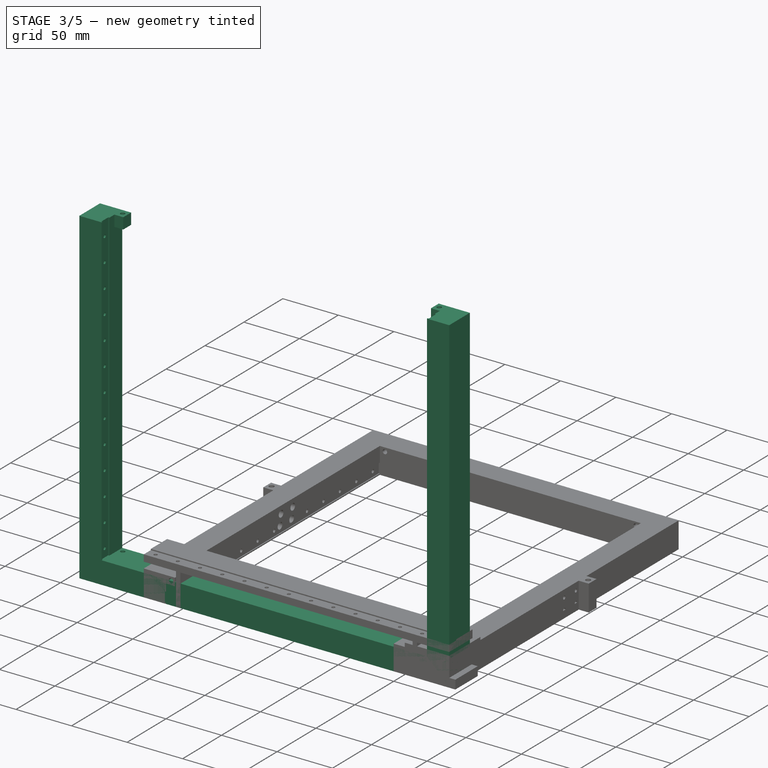
[diagram: stage 3 of 5 — iso view after this stage's code; geometry added in this stage tinted green]
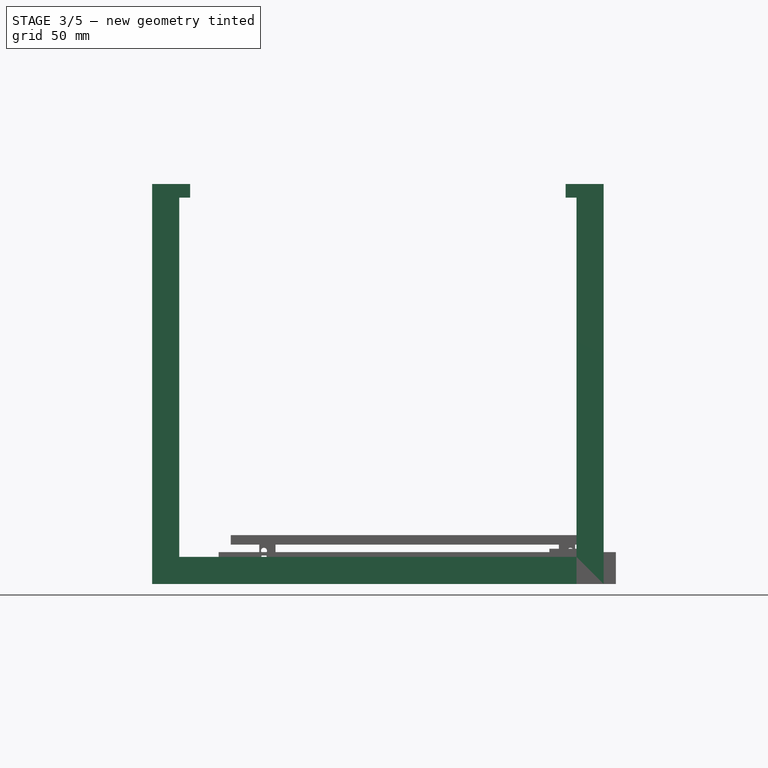
[diagram: stage 3 of 5 — front view after this stage's code; geometry added in this stage tinted green]
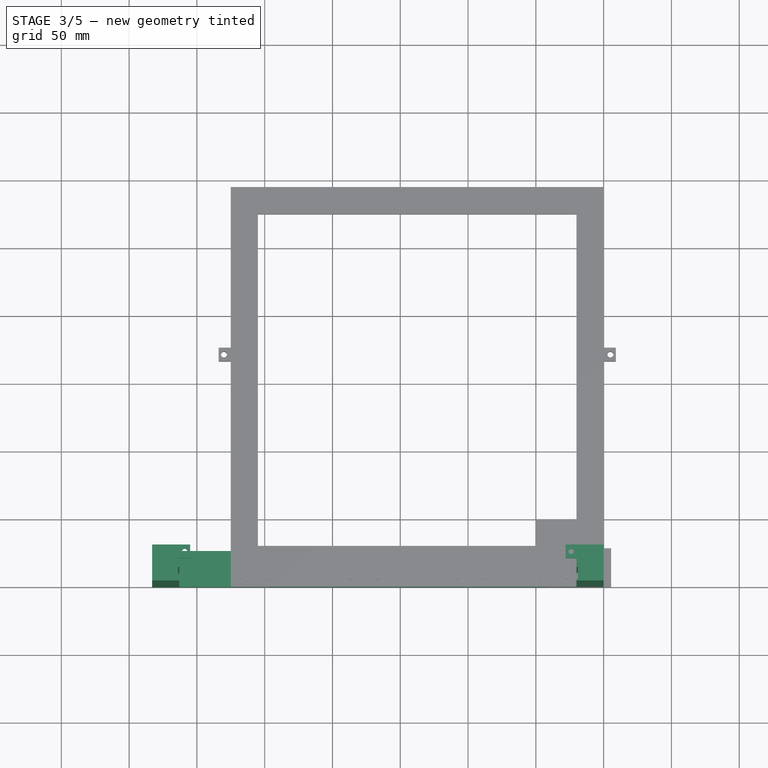
[diagram: stage 3 of 5 — top view after this stage's code; geometry added in this stage tinted green]
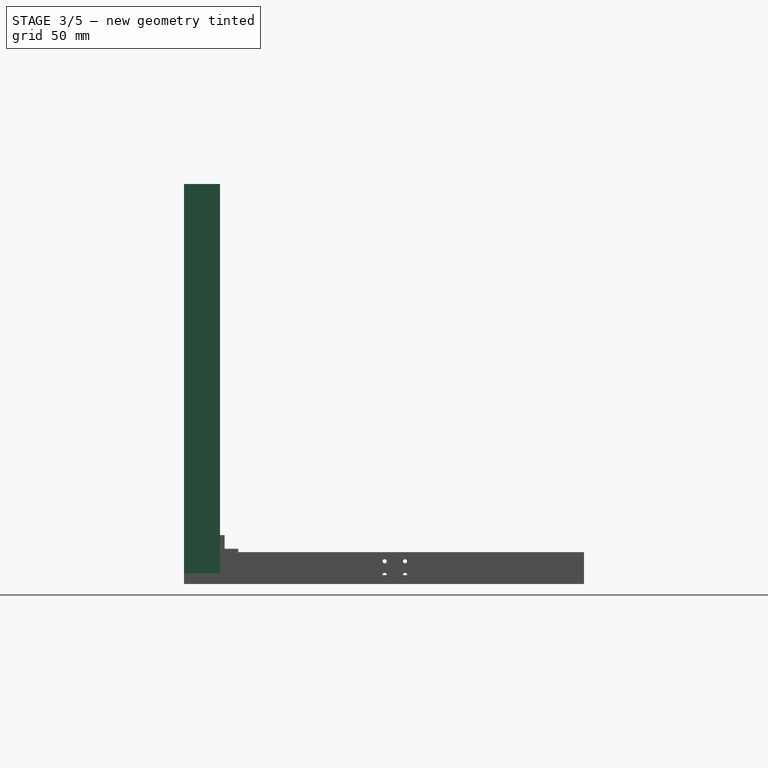
[diagram: stage 3 of 5 — right view after this stage's code; geometry added in this stage tinted green]
FEATURE [Spreadsheet::Sheet] Spreadsheet005  label="ZRail"
  cells = B2=mm; A3=Length; B3(Length)==Groove_Offset + <<Rail>>.Rail_Width / 2 + <<Rail>>.Head_Width / 2 + Holder_RailHead_Distance + Guide_Rod_Holder_Depth; A4=Width; B4(Width)==<<YRail>>.Width; A5=Height; B5(Height)==<<Rail>>.Rail_Length; A6=Total_Width; B6(Total_Width)==Width + 2 * Carrier_Width + 2 * <<Rail>>.Head_Height + 2 * <<Rail>>.Base_To_Head_Base - 2 * Groove_Depth; A8=Carrier_Width; B8(Carrier_Width)=20; A9=Carrier_Height; B9(Carrier_Height)=20; A11=Groove_Depth; B11(Groove_Depth)==<<XRail>>.Rail_Groove_Depth; A12=Groove_Offset; B12(Groove_Offset)=1; A15=Guide_Rod_Diameter; B15(Guide_Rod_Diameter)==<<GeneralProperties>>.GuideRodDiameter; A16=Spring_Diameter_Inside; B16(Spring_Diameter)=5; A17=Guide_Rod_Holder_Width; B17(Guide_Rod_Holder_Width)==<<Rail>>.Base_To_Head_Base + <<Rail>>.Head_Height - Groove_Depth - Holder_RailHead_Distance; A18=Guide_Rod_Holder_Height; B18(Guide_Rod_Holder_Height)=10; A19=Guide_Rod_Holder_Depth; B19(Guide_Rod_Holder_Depth)=10; A20=Holder_RailHead_Distance; B20(Holder_RailHead_Distance)=1; A21=Holder_Total_Offset; B21(Holder_Total_Offset)==Groove_Offset + <<Rail>>.Rail_Width / 2 + <<Rail>>.Head_Width / 2 + Holder_RailHead_Distance; A22=Guide_Rod_Length; B22(Guide_Rod_Length)==Height + 5
FEATURE [Sketcher::SketchObject] Sketch034
  FullyConstrained = true
  MapMode = 5
  Placement = pos=(0,0,0) rot=(1,0,0;1.5708rad)
  Support = -> [XZ_Plane012]
  expr: Constraints[10] = <<ZRail>>.Carrier_Height
  expr: Constraints[11] = <<ZRail>>.Height
  expr: Constraints[12] = <<ZRail>>.Carrier_Width
  expr: Constraints[17] = 0
  expr: Constraints[30] = <<ZRail>>.Carrier_Width
  expr: Constraints[31] = 0
  expr: Constraints[33] = <<ZRail>>.Total_Width
  sketch-geometry (13):
    g0: LineSegment StartX=-20 StartY=295 StartZ=0 EndX=0 EndY=295 EndZ=0
    g1: LineSegment StartX=0 StartY=295 StartZ=0 EndX=0 EndY=0 EndZ=0
    g2: LineSegment StartX=0 StartY=0 StartZ=0 EndX=-20 EndY=0 EndZ=0
    g3: LineSegment StartX=-20 StartY=0 StartZ=0 EndX=-20 EndY=295 EndZ=0
    g4: GeomPoint X=0 Y=20 Z=0
    g5: LineSegment StartX=-20 StartY=295 StartZ=0 EndX=-20 EndY=20 EndZ=0
    g6: LineSegment StartX=-20 StartY=20 StartZ=0 EndX=-20 EndY=0 EndZ=0
    g7: LineSegment StartX=-313 StartY=20 StartZ=0 EndX=-20 EndY=20 EndZ=0
    g8: LineSegment StartX=-20 StartY=20 StartZ=0 EndX=-20 EndY=0 EndZ=0
    g9: LineSegment StartX=-20 StartY=0 StartZ=0 EndX=-333 EndY=0 EndZ=0
    g10: LineSegment StartX=-333 StartY=295 StartZ=0 EndX=-313 EndY=295 EndZ=0
    g11: LineSegment StartX=-333 StartY=0 StartZ=0 EndX=-333 EndY=295 EndZ=0
    g12: LineSegment StartX=-313 StartY=295 StartZ=0 EndX=-313 EndY=20 EndZ=0
  constraints (34):
    c: Coincident(g0,g1)
    c: Coincident(g1,g2)
    c: Coincident(g2,g3)
    c: Coincident(g3,g0)
    c: Horizontal(g0)
    c: Horizontal(g2)
    c: Vertical(g1)
    c: Vertical(g3)
    c: Coincident(g1,g-1)
    c: PointOnObject(g4,g1)
    c: DistanceY(g1,g4) = 20
    c: DistanceY(g4,g0) = 275
    c: DistanceX(g0,g0) = 20
    c: Coincident(g5,g0)
    c: PointOnObject(g5,g3)
    c: Coincident(g6,g5)
    c: Coincident(g6,g2)
    c: DistanceY(g4,g5) = 0
    c: Coincident(g7,g8)
    c: Coincident(g8,g9)
    c: Horizontal(g7)
    c: Horizontal(g9)
    c: Coincident(g8,g2)
    c: Coincident(g11,g10)
    c: Horizontal(g10)
    c: Vertical(g11)
    c: Coincident(g12,g10)
    c: Coincident(g12,g7)
    c: Vertical(g12)
    c: Coincident(g9,g11)
    c: DistanceX(g10,g10) = 20
    c: DistanceY(g0,g10) = 0
    c: Coincident(g5,g7)
    c: DistanceX(g9,g1) = 333
FEATURE [PartDesign::Pad] Pad012
  Direction = (1,1,1)
  Length = 26.5
  Length2 = 100
  Placement = pos=(0,0,0) rot=(1,0,0;1.5708rad)
  Profile = -> Sketch034
  Reversed = true
  Type = 0
  expr: Length = <<ZRail>>.Length
FEATURE [Sketcher::SketchObject] Sketch035
  AttachmentOffset = pos=(0,0,20) rot=(0,0,1;0rad)
  FullyConstrained = true
  MapMode = 5
  Placement = pos=(0,0,20) rot=(0,0,1;0rad)
  Support = -> [XY_Plane012]
  expr: Constraints[10] = <<ZRail>>.Groove_Offset
  expr: Constraints[11] = <<Rail>>.Rail_Width
  expr: .AttachmentOffset.Base.z = <<ZRail>>.Carrier_Height
  expr: Constraints[13] = <<ZRail>>.Total_Width
  expr: Constraints[9] = <<ZRail>>.Groove_Depth
  expr: Constraints[8] = -<<ZRail>>.Carrier_Width
  expr: Constraints[15] = 10
  sketch-geometry (10):
    g0: LineSegment StartX=-20 StartY=10 StartZ=0 EndX=-19 EndY=10 EndZ=0
    g1: LineSegment StartX=-19 StartY=10 StartZ=0 EndX=-19 EndY=1 EndZ=0
    g2: LineSegment StartX=-19 StartY=1 StartZ=0 EndX=-20 EndY=1 EndZ=0
    g3: LineSegment StartX=-20 StartY=1 StartZ=0 EndX=-20 EndY=10 EndZ=0
    g4: GeomPoint X=-333 Y=0 Z=0
    g5: LineSegment StartX=-166.5 StartY=0 StartZ=0 EndX=-166.5 EndY=10 EndZ=0
    g6: LineSegment StartX=-313 StartY=1 StartZ=0 EndX=-314 EndY=1 EndZ=0
    g7: LineSegment StartX=-314 StartY=1 StartZ=0 EndX=-314 EndY=10 EndZ=0
    g8: LineSegment StartX=-314 StartY=10 StartZ=0 EndX=-313 EndY=10 EndZ=0
    g9: LineSegment StartX=-313 StartY=10 StartZ=0 EndX=-313 EndY=1 EndZ=0
  constraints (27):
    c: Coincident(g0,g1)
    c: Coincident(g1,g2)
    c: Coincident(g2,g3)
    c: Coincident(g3,g0)
    c: Horizontal(g0)
    c: Horizontal(g2)
    c: Vertical(g1)
    c: Vertical(g3)
    c: DistanceX(g2) = -20
    c: DistanceX(g2,g2) = 1
    c: DistanceY(g-1,g2) = 1
    c: DistanceY(g1,g1) = 9
    c: PointOnObject(g4,g-1)
    c: DistanceX(g4,g-1) = 333
    c: Vertical(g5)
    c: DistanceY(g5,g5) = 10
    c: Symmetric(g4,g-1,g5)
    c: Coincident(g6,g7)
    c: Coincident(g7,g8)
    c: Coincident(g8,g9)
    c: Coincident(g9,g6)
    c: Horizontal(g6)
    c: Horizontal(g8)
    c: Vertical(g7)
    c: Vertical(g9)
    c: Symmetric(g7,g0,g5)
    c: Symmetric(g6,g2,g5)
FEATURE [PartDesign::Pocket] Pocket022
  BaseFeature = -> Pad012
  Length = 275
  Length2 = 100
  Placement = pos=(0,0,0) rot=(1,0,0;1.5708rad)
  Profile = -> Sketch035
  Reversed = true
  Type = 0
  expr: Length = <<ZRail>>.Height
FEATURE [Sketcher::SketchObject] Sketch036
  FullyConstrained = true
  MapMode = 5
  Support = -> [XY_Plane014]
  expr: Constraints[10] = <<Rail>>.Rail_Length
  expr: Constraints[9] = <<Rail>>.Rail_Width
  sketch-geometry (6):
    g0: LineSegment StartX=-9 StartY=275 StartZ=0 EndX=0 EndY=275 EndZ=0
    g1: LineSegment StartX=0 StartY=275 StartZ=0 EndX=0 EndY=0 EndZ=0
    g2: LineSegment StartX=0 StartY=0 StartZ=0 EndX=-9 EndY=0 EndZ=0
    g3: LineSegment StartX=-9 StartY=0 StartZ=0 EndX=-9 EndY=275 EndZ=0
    g4: GeomPoint X=-4.5 Y=0 Z=0
    g5: LineSegment StartX=-4.5 StartY=0 StartZ=0 EndX=-4.5 EndY=275 EndZ=0
  constraints (15):
    c: Coincident(g0,g1)
    c: Coincident(g1,g2)
    c: Coincident(g2,g3)
    c: Coincident(g3,g0)
    c: Horizontal(g0)
    c: Horizontal(g2)
    c: Vertical(g1)
    c: Vertical(g3)
    c: Coincident(g1,g-1)
    c: DistanceX(g2,g2) = 9
    c: DistanceY(g3,g3) = 275
    c: Symmetric(g2,g1,g4)
    c: Coincident(g5,g4)
    c: Vertical(g5)
    c: PointOnObject(g5,g0)
FEATURE [Sketcher::SketchObject] Sketch038
  FullyConstrained = true
  MapMode = 5
  Support = -> [XY_Plane013]
  expr: Constraints[11] = (<<Rail>>.Head_Width - <<Rail>>.Rail_Width) / 2
  expr: Constraints[10] = 0
  expr: Constraints[9] = <<Rail>>.Head_Width
  expr: Constraints[8] = <<Rail>>.Head_Length
  sketch-geometry (4):
    g0: LineSegment StartX=5.5 StartY=0 StartZ=0 EndX=-14.5 EndY=0 EndZ=0
    g1: LineSegment StartX=-14.5 StartY=0 StartZ=0 EndX=-14.5 EndY=28.8 EndZ=0
    g2: LineSegment StartX=-14.5 StartY=28.8 StartZ=0 EndX=5.5 EndY=28.8 EndZ=0
    g3: LineSegment StartX=5.5 StartY=28.8 StartZ=0 EndX=5.5 EndY=0 EndZ=0
  constraints (12):
    c: Coincident(g0,g1)
    c: Coincident(g1,g2)
    c: Coincident(g2,g3)
    c: Coincident(g3,g0)
    c: Horizontal(g0)
    c: Horizontal(g2)
    c: Vertical(g1)
    c: Vertical(g3)
    c: DistanceY(g1,g1) = 28.8
    c: DistanceX(g2,g2) = 20
    c: DistanceY(g0,g-1) = 0
    c: DistanceX(g0) = 5.5
FEATURE [PartDesign::Pad] Pad013
  Direction = (1,1,1)
  Length = 8
  Length2 = 100
  Profile = -> Sketch038
  Type = 0
  expr: Length = <<Rail>>.Head_Height
FEATURE [Sketcher::SketchObject] Sketch039
  ExternalGeometry = -> [Pad013]
  FullyConstrained = true
  MapMode = 5
  Placement = pos=(0,0,0) rot=(1,0,0;1.5708rad)
  Support = -> [Pad013]
  expr: Constraints[10] = <<Rail>>.Rail_Height - 2
  expr: Constraints[9] = <<Rail>>.Rail_Width
  sketch-geometry (4):
    g0: LineSegment StartX=-9 StartY=4.5 StartZ=0 EndX=0 EndY=4.5 EndZ=0
    g1: LineSegment StartX=0 StartY=4.5 StartZ=0 EndX=0 EndY=0 EndZ=0
    g2: LineSegment StartX=0 StartY=0 StartZ=0 EndX=-9 EndY=0 EndZ=0
    g3: LineSegment StartX=-9 StartY=0 StartZ=0 EndX=-9 EndY=4.5 EndZ=0
  constraints (11):
    c: Coincident(g0,g1)
    c: Coincident(g1,g2)
    c: Coincident(g2,g3)
    c: Coincident(g3,g0)
    c: Horizontal(g0)
    c: Horizontal(g2)
    c: Vertical(g1)
    c: Vertical(g3)
    c: Coincident(g1,g-1)
    c: DistanceX(g2,g2) = 9
    c: DistanceY(g1,g1) = 4.5
FEATURE [PartDesign::Pocket] Pocket025
  BaseFeature = -> Pad013
  Length = 28.8
  Length2 = 100
  Profile = -> Sketch039
  Type = 0
  expr: Length = <<Rail>>.Head_Length
FEATURE [PartDesign::Body] Body014  label="RailHead004"
  Group = -> [Sketch038,Pad013,Sketch039,Pocket025,Sketch040,Pocket023,Sketch041,Pocket026]
  Origin = -> Origin013
  Placement = pos=(0,100,2) rot=(0,0,1;0rad)
  Tip = -> Pocket026
  expr: .Placement.Base.y = <<Rail>>.Head_Offset
FEATURE [App::LinkGroup] LinkGroup007  label="RailZRail_1"
  ElementList = -> [Body013,Body014]
  LinkMode = 0
  Placement = pos=(10,1,20) rot=(-0.57735,0.57735,0.57735;4.18879rad)
  expr: .Placement.Base.z = <<ZRail>>.Carrier_Height
  expr: .Placement.Base.y = <<ZRail>>.Groove_Offset
  expr: .Placement.Base.x = 9 + <<ZRail>>.Groove_Depth
FEATURE [Sketcher::SketchObject] Sketch042
  FullyConstrained = true
  MapMode = 5
  Support = -> [XY_Plane016]
  expr: Constraints[10] = <<Rail>>.Rail_Length
  expr: Constraints[9] = <<Rail>>.Rail_Width
  sketch-geometry (6):
    g0: LineSegment StartX=-9 StartY=275 StartZ=0 EndX=0 EndY=275 EndZ=0
    g1: LineSegment StartX=0 StartY=275 StartZ=0 EndX=0 EndY=0 EndZ=0
    g2: LineSegment StartX=0 StartY=0 StartZ=0 EndX=-9 EndY=0 EndZ=0
    g3: LineSegment StartX=-9 StartY=0 StartZ=0 EndX=-9 EndY=275 EndZ=0
    g4: GeomPoint X=-4.5 Y=0 Z=0
    g5: LineSegment StartX=-4.5 StartY=0 StartZ=0 EndX=-4.5 EndY=275 EndZ=0
  constraints (15):
    c: Coincident(g0,g1)
    c: Coincident(g1,g2)
    c: Coincident(g2,g3)
    c: Coincident(g3,g0)
    c: Horizontal(g0)
    c: Horizontal(g2)
    c: Vertical(g1)
    c: Vertical(g3)
    c: Coincident(g1,g-1)
    c: DistanceX(g2,g2) = 9
    c: DistanceY(g3,g3) = 275
    c: Symmetric(g2,g1,g4)
    c: Coincident(g5,g4)
    c: Vertical(g5)
    c: PointOnObject(g5,g0)
FEATURE [Sketcher::SketchObject] Sketch044
  FullyConstrained = true
  MapMode = 5
  Support = -> [XY_Plane015]
  expr: Constraints[11] = (<<Rail>>.Head_Width - <<Rail>>.Rail_Width) / 2
  expr: Constraints[10] = 0
  expr: Constraints[9] = <<Rail>>.Head_Width
  expr: Constraints[8] = <<Rail>>.Head_Length
  sketch-geometry (4):
    g0: LineSegment StartX=5.5 StartY=0 StartZ=0 EndX=-14.5 EndY=0 EndZ=0
    g1: LineSegment StartX=-14.5 StartY=0 StartZ=0 EndX=-14.5 EndY=28.8 EndZ=0
    g2: LineSegment StartX=-14.5 StartY=28.8 StartZ=0 EndX=5.5 EndY=28.8 EndZ=0
    g3: LineSegment StartX=5.5 StartY=28.8 StartZ=0 EndX=5.5 EndY=0 EndZ=0
  constraints (12):
    c: Coincident(g0,g1)
    c: Coincident(g1,g2)
    c: Coincident(g2,g3)
    c: Coincident(g3,g0)
    c: Horizontal(g0)
    c: Horizontal(g2)
    c: Vertical(g1)
    c: Vertical(g3)
    c: DistanceY(g1,g1) = 28.8
    c: DistanceX(g2,g2) = 20
    c: DistanceY(g0,g-1) = 0
    c: DistanceX(g0) = 5.5
FEATURE [PartDesign::Pad] Pad015
  Direction = (1,1,1)
  Length = 8
  Length2 = 100
  Profile = -> Sketch044
  Type = 0
  expr: Length = <<Rail>>.Head_Height
FEATURE [Sketcher::SketchObject] Sketch045
  ExternalGeometry = -> [Pad015]
  FullyConstrained = true
  MapMode = 5
  Placement = pos=(0,0,0) rot=(1,0,0;1.5708rad)
  Support = -> [Pad015]
  expr: Constraints[10] = <<Rail>>.Rail_Height - 2
  expr: Constraints[9] = <<Rail>>.Rail_Width
  sketch-geometry (4):
    g0: LineSegment StartX=-9 StartY=4.5 StartZ=0 EndX=0 EndY=4.5 EndZ=0
    g1: LineSegment StartX=0 StartY=4.5 StartZ=0 EndX=0 EndY=0 EndZ=0
    g2: LineSegment StartX=0 StartY=0 StartZ=0 EndX=-9 EndY=0 EndZ=0
    g3: LineSegment StartX=-9 StartY=0 StartZ=0 EndX=-9 EndY=4.5 EndZ=0
  constraints (11):
    c: Coincident(g0,g1)
    c: Coincident(g1,g2)
    c: Coincident(g2,g3)
    c: Coincident(g3,g0)
    c: Horizontal(g0)
    c: Horizontal(g2)
    c: Vertical(g1)
    c: Vertical(g3)
    c: Coincident(g1,g-1)
    c: DistanceX(g2,g2) = 9
    c: DistanceY(g1,g1) = 4.5
FEATURE [PartDesign::Pocket] Pocket029
  BaseFeature = -> Pad015
  Length = 28.8
  Length2 = 100
  Profile = -> Sketch045
  Type = 0
  expr: Length = <<Rail>>.Head_Length
FEATURE [Sketcher::SketchObject] Sketch046
  ExternalGeometry = -> [Pocket029]
  FullyConstrained = true
  MapMode = 5
  Placement = pos=(0,0,8) rot=(0,0,1;0rad)
  Support = -> [Pocket029]
  expr: Constraints[19] = <<Rail>>.Screw_Body_Diameter / 2
  expr: Constraints[18] = <<Rail>>.Screw_Body_Diameter / 2
  expr: Constraints[16] = <<Rail>>.Screw_Body_Diameter / 2
  expr: Constraints[15] = <<Rail>>.Head_Screw_Length
  expr: Constraints[17] = <<Rail>>.Screw_Body_Diameter / 2
  expr: Constraints[14] = <<Rail>>.Head_Screw_Width
  sketch-geometry (9):
    g0: Circle CenterX=-12 CenterY=19.4 CenterZ=0 NormalX=0 NormalY=0 NormalZ=1 AngleXU=0 Radius=1.5
    g1: Circle CenterX=3 CenterY=9.4 CenterZ=0 NormalX=0 NormalY=0 NormalZ=1 AngleXU=0 Radius=1.5
    g2: Circle CenterX=-12 CenterY=9.4 CenterZ=0 NormalX=0 NormalY=0 NormalZ=1 AngleXU=0 Radius=1.5
    g3: Circle CenterX=3 CenterY=19.4 CenterZ=0 NormalX=0 NormalY=0 NormalZ=1 AngleXU=0 Radius=1.5
    g4: LineSegment StartX=-12 StartY=19.4 StartZ=0 EndX=3 EndY=19.4 EndZ=0
    g5: LineSegment StartX=3 StartY=19.4 StartZ=0 EndX=3 EndY=9.4 EndZ=0
    g6: LineSegment StartX=3 StartY=9.4 StartZ=0 EndX=-12 EndY=9.4 EndZ=0
    g7: LineSegment StartX=-12 StartY=9.4 StartZ=0 EndX=-12 EndY=19.4 EndZ=0
    g8: GeomPoint X=-4.5 Y=14.4 Z=0
  constraints (20):
    c: Coincident(g4,g5)
    c: Coincident(g5,g6)
    c: Coincident(g6,g7)
    c: Coincident(g7,g4)
    c: Horizontal(g4)
    c: Horizontal(g6)
    c: Vertical(g5)
    c: Vertical(g7)
    c: Coincident(g4,g0)
    c: Coincident(g5,g1)
    c: Coincident(g3,g4)
    c: Coincident(g2,g6)
    c: Symmetric(g-3,g-4,g8)
    c: Symmetric(g0,g1,g8)
    c: DistanceX(g4,g4) = 15
    c: DistanceY(g5,g5) = 10
    c: Radius(g3) = 1.5
    c: Radius(g1) = 1.5
    c: Radius(g2) = 1.5
    c: Radius(g0) = 1.5
FEATURE [PartDesign::Pocket] Pocket027
  BaseFeature = -> Pocket029
  Length = 4
  Length2 = 100
  Profile = -> Sketch046
  Type = 0
  expr: Length = <<Rail>>.Head_Screw_Depth
FEATURE [PartDesign::Pad] Pad016
  Direction = (1,1,1)
  Length = 6.5
  Length2 = 100
  Profile = -> Sketch042
  Type = 0
  expr: Length = <<Rail>>.Rail_Height
FEATURE [Sketcher::SketchObject] Sketch043
  ExternalGeometry = -> [Pad016]
  FullyConstrained = true
  MapMode = 5
  Placement = pos=(0,0,6.5) rot=(0,0,1;0rad)
  Support = -> [Pad016]
  expr: Constraints[2] = <<Rail>>.Screw_Body_Diameter / 2
  expr: Constraints[1] = <<Rail>>.First_Screw_To_Edge
  expr: Constraints[0] = <<Rail>>.Rail_Width / 2
  sketch-geometry (1):
    g0: Circle CenterX=-4.5 CenterY=7.5 CenterZ=0 NormalX=0 NormalY=0 NormalZ=1 AngleXU=0 Radius=1.5
  constraints (3):
    c: DistanceX(g0,g-1) = 4.5
    c: DistanceY(g-1,g0) = 7.5
    c: Radius(g0) = 1.5
FEATURE [PartDesign::Pocket] Pocket028
  BaseFeature = -> Pad016
  Length = 6.5
  Length2 = 100
  Profile = -> Sketch043
  Type = 0
  expr: Length = <<Rail>>.Rail_Height
FEATURE [PartDesign::LinearPattern] LinearPattern007
  BaseFeature = -> Pocket028
  Direction = -> Y_Axis016
  Length = 260
  Occurrences = 14
  Originals = -> [Pocket028]
  expr: Length = <<Rail>>.Rail_Length - <<Rail>>.First_Screw_To_Edge * 2
  expr: Occurrences = (<<Rail>>.Rail_Length - <<Rail>>.First_Screw_To_Edge * 2) / <<Rail>>.Screw_To_Screw + 1
FEATURE [PartDesign::Body] Body015  label="RailRail005"
  Group = -> [Sketch042,Pad016,Sketch043,Pocket028,LinearPattern007]
  Origin = -> Origin016
  Tip = -> LinearPattern007
FEATURE [Sketcher::SketchObject] Sketch047
  ExternalGeometry = -> [Pocket027]
  FullyConstrained = true
  MapMode = 5
  Placement = pos=(0,0,8) rot=(0,0,1;0rad)
  Support = -> [Pocket027]
  expr: Constraints[0] = <<Rail>>.Head_Plateau_Length
  sketch-geometry (9):
    g0: LineSegment StartX=-14.5 StartY=28.8 StartZ=0 EndX=5.5 EndY=28.8 EndZ=0
    g1: LineSegment StartX=5.5 StartY=28.8 StartZ=0 EndX=5.5 EndY=23.85 EndZ=0
    g2: LineSegment StartX=5.5 StartY=23.85 StartZ=0 EndX=-14.5 EndY=23.85 EndZ=0
    g3: LineSegment StartX=-14.5 StartY=23.85 StartZ=0 EndX=-14.5 EndY=28.8 EndZ=0
    g4: LineSegment StartX=5.5 StartY=0 StartZ=0 EndX=-14.5 EndY=0 EndZ=0
    g5: LineSegment StartX=-14.5 StartY=0 StartZ=0 EndX=-14.5 EndY=4.95 EndZ=0
    g6: LineSegment StartX=-14.5 StartY=4.95 StartZ=0 EndX=5.5 EndY=4.95 EndZ=0
    g7: LineSegment StartX=5.5 StartY=4.95 StartZ=0 EndX=5.5 EndY=0 EndZ=0
    g8: GeomPoint X=5.5 Y=14.4 Z=0
  constraints (20):
    c: DistanceY(g6,g1) = 18.9
    c: Coincident(g1,g0)
    c: Coincident(g1,g2)
    c: PointOnObject(g1,g-4)
    c: Coincident(g0,g-4)
    c: Coincident(g7,g6)
    c: Horizontal(g2)
    c: Horizontal(g6)
    c: Coincident(g5,g6)
    c: Coincident(g2,g3)
    c: Coincident(g0,g3)
    c: Coincident(g0,g-3)
    c: Coincident(g4,g5)
    c: Coincident(g4,g-3)
    c: Coincident(g4,g7)
    c: Coincident(g4,g-4)
    c: Symmetric(g0,g4,g8)
    c: Symmetric(g1,g6,g8)
    c: Vertical(g3)
    c: Vertical(g5)
FEATURE [PartDesign::Pocket] Pocket030
  BaseFeature = -> Pocket027
  Length = 0.1
  Length2 = 100
  Profile = -> Sketch047
  Type = 0
FEATURE [PartDesign::Body] Body016  label="RailHead005"
  Group = -> [Sketch044,Pad015,Sketch045,Pocket029,Sketch046,Pocket027,Sketch047,Pocket030]
  Origin = -> Origin015
  Placement = pos=(0,100,2) rot=(0,0,1;0rad)
  Tip = -> Pocket030
  expr: .Placement.Base.y = <<Rail>>.Head_Offset
FEATURE [App::LinkGroup] LinkGroup008  label="RailZRail_2"
  ElementList = -> [Body015,Body016]
  LinkMode = 0
  Placement = pos=(-285,10,20) rot=(0.57735,0.57735,0.57735;2.0944rad)
  expr: .Placement.Base.x = -<<ZRail>>.Total_Width + 2 * <<ZRail>>.Carrier_Width + <<Rail>>.Head_Height + <<Rail>>.Base_To_Head_Base - <<ZRail>>.Groove_Depth - 1
  expr: .Placement.Base.z = <<ZRail>>.Carrier_Height
  expr: .Placement.Base.y = <<ZRail>>.Groove_Offset + <<Rail>>.Rail_Width
FEATURE [Sketcher::SketchObject] Sketch048
  AttachmentOffset = pos=(0,0,-166.5) rot=(0,0,1;0rad)
  FullyConstrained = true
  MapMode = 5
  Placement = pos=(-166.5,3.7e-14,-3.7e-14) rot=(0.57735,0.57735,0.57735;2.0944rad)
  Support = -> [YZ_Plane012]
  expr: Constraints[4] = <<ZRail>>.Groove_Offset + <<Rail>>.Rail_Width / 2
  expr: Constraints[5] = <<ZRail>>.Carrier_Height
  expr: Constraints[6] = <<Rail>>.First_Screw_To_Edge
  expr: Constraints[7] = <<Rail>>.Screw_Body_Diameter / 2
  expr: .AttachmentOffset.Base.z = -<<ZRail>>.Total_Width / 2
  expr: .AttachmentOffset.Base.x = 0
  expr: .AttachmentOffset.Base.y = 0
  sketch-geometry (3):
    g0: Circle CenterX=5.5 CenterY=27.5 CenterZ=0 NormalX=0 NormalY=0 NormalZ=1 AngleXU=0 Radius=1.5
    g1: GeomPoint X=5.5 Y=0 Z=0
    g2: LineSegment StartX=5.5 StartY=20 StartZ=0 EndX=5.5 EndY=0 EndZ=0
  constraints (8):
    c: PointOnObject(g1,g-1)
    c: Coincident(g2,g1)
    c: Vertical(g2)
    c: PointOnObject(g0,g2)
    c: DistanceX(g1) = 5.5
    c: DistanceY(g2,g2) = 20
    c: DistanceY(g2,g0) = 7.5
    c: Radius(g0) = 1.5
FEATURE [PartDesign::Pocket] Pocket031
  BaseFeature = -> Pocket022
  Length = 298
  Length2 = 100
  Midplane = true
  Placement = pos=(0,0,0) rot=(1,0,0;1.5708rad)
  Profile = -> Sketch048
  Type = 0
  expr: Length = <<ZRail>>.Total_Width - 2 * <<ZRail>>.Carrier_Width + <<Rail>>.Head_Screw_Depth + <<ZRail>>.Groove_Depth
FEATURE [PartDesign::LinearPattern] LinearPattern008
  BaseFeature = -> Pocket031
  Direction = -> Z_Axis012
  Length = 275
  Occurrences = 14
  Originals = -> [Pocket031]
  Placement = pos=(0,0,0) rot=(1,0,0;1.5708rad)
  expr: Length = <<ZRail>>.Height
  expr: Occurrences = (<<Rail>>.Rail_Length - 2 * <<Rail>>.First_Screw_To_Edge) / <<Rail>>.Screw_To_Screw + 1
FEATURE [Sketcher::SketchObject] Sketch049
  AttachmentOffset = pos=(0,0,295) rot=(0,0,1;0rad)
  FullyConstrained = true
  MapMode = 5
  Placement = pos=(0,0,295) rot=(0,0,1;0rad)
  Support = -> [XY_Plane012]
  expr: Constraints[1] = -<<ZRail>>.Total_Width
  expr: Constraints[19] = <<ZRail>>.Length
  expr: Constraints[21] = <<ZRail>>.Carrier_Width
  expr: Constraints[51] = <<ZRail>>.Guide_Rod_Diameter / 2
  expr: Constraints[43] = 30
  expr: Constraints[20] = <<ZRail>>.Length
  expr: Constraints[45] = <<ZRail>>.Guide_Rod_Holder_Width
  expr: Constraints[44] = <<ZRail>>.Guide_Rod_Holder_Depth
  expr: Constraints[48] = <<ZRail>>.Groove_Offset + <<Rail>>.Rail_Width / 2 + <<Rail>>.Head_Width / 2 + <<ZRail>>.Holder_RailHead_Distance
  expr: Constraints[52] = <<ZRail>>.Guide_Rod_Diameter / 2
  expr: .AttachmentOffset.Base.z = <<ZRail>>.Carrier_Height + <<ZRail>>.Height
  sketch-geometry (22):
    g0: GeomPoint X=-333 Y=0 Z=0
    g1: LineSegment StartX=-333 StartY=0 StartZ=0 EndX=-313 EndY=0 EndZ=0
    g2: LineSegment StartX=-313 StartY=0 StartZ=0 EndX=-313 EndY=26.5 EndZ=0
    g3: LineSegment StartX=-313 StartY=26.5 StartZ=0 EndX=-333 EndY=26.5 EndZ=0
    g4: LineSegment StartX=-333 StartY=26.5 StartZ=0 EndX=-333 EndY=0 EndZ=0
    g5: LineSegment StartX=0 StartY=0 StartZ=0 EndX=-20 EndY=0 EndZ=0
    g6: LineSegment StartX=-20 StartY=0 StartZ=0 EndX=-20 EndY=26.5 EndZ=0
    g7: LineSegment StartX=-20 StartY=26.5 StartZ=0 EndX=0 EndY=26.5 EndZ=0
    g8: LineSegment StartX=0 StartY=26.5 StartZ=0 EndX=0 EndY=0 EndZ=0
    g9: GeomPoint X=-166.5 Y=0 Z=0
    g10: LineSegment StartX=-28 StartY=26.5 StartZ=0 EndX=-20 EndY=26.5 EndZ=0
    g11: LineSegment StartX=-20 StartY=26.5 StartZ=0 EndX=-20 EndY=16.5 EndZ=0
    g12: LineSegment StartX=-20 StartY=16.5 StartZ=0 EndX=-28 EndY=16.5 EndZ=0
    g13: LineSegment StartX=-28 StartY=16.5 StartZ=0 EndX=-28 EndY=26.5 EndZ=0
    g14: LineSegment StartX=-313 StartY=26.5 StartZ=0 EndX=-305 EndY=26.5 EndZ=0
    g15: LineSegment StartX=-305 StartY=26.5 StartZ=0 EndX=-305 EndY=16.5 EndZ=0
    g16: LineSegment StartX=-305 StartY=16.5 StartZ=0 EndX=-313 EndY=16.5 EndZ=0
    g17: LineSegment StartX=-313 StartY=16.5 StartZ=0 EndX=-313 EndY=26.5 EndZ=0
    g18: LineSegment StartX=-166.5 StartY=0 StartZ=0 EndX=-166.5 EndY=30 EndZ=0
    g19: GeomPoint X=-313 Y=16.5 Z=0
    g20: Circle CenterX=-24 CenterY=21.5 CenterZ=0 NormalX=0 NormalY=0 NormalZ=1 AngleXU=0 Radius=2
    g21: Circle CenterX=-309 CenterY=21.5 CenterZ=0 NormalX=0 NormalY=0 NormalZ=1 AngleXU=0 Radius=2
  constraints (54):
    c: PointOnObject(g0,g-1)
    c: DistanceX(g0) = -333
    c: Coincident(g1,g2)
    c: Coincident(g2,g3)
    c: Coincident(g3,g4)
    c: Coincident(g4,g1)
    c: Horizontal(g1)
    c: Horizontal(g3)
    c: Vertical(g2)
    c: Vertical(g4)
    c: Coincident(g1,g0)
    c: Coincident(g5,g6)
    c: Coincident(g6,g7)
    c: Coincident(g7,g8)
    c: Coincident(g8,g5)
    c: Horizontal(g7)
    c: Vertical(g6)
    c: Vertical(g8)
    c: Coincident(g5,g-1)
    c: DistanceY(g8,g8) = 26.5
    c: DistanceY(g2,g2) = 26.5
    c: DistanceX(g1,g1) = 20
    c: Symmetric(g0,g-1,g9)
    c: Symmetric(g1,g5,g9)
    c: Coincident(g10,g11)
    c: Coincident(g11,g12)
    c: Coincident(g12,g13)
    c: Coincident(g13,g10)
    c: Horizontal(g10)
    c: Horizontal(g12)
    c: Vertical(g11)
    c: Vertical(g13)
    c: PointOnObject(g11,g6)
    c: Coincident(g14,g15)
    c: Coincident(g15,g16)
    c: Coincident(g16,g17)
    c: Coincident(g17,g14)
    c: Horizontal(g14)
    c: Horizontal(g16)
    c: Vertical(g15)
    c: Vertical(g17)
    c: Coincident(g18,g9)
    c: Vertical(g18)
    c: DistanceY(g18,g18) = 30
    c: DistanceY(g13,g13) = 10
    c: DistanceX(g10,g10) = 8
    c: Symmetric(g14,g10,g18)
    c: Symmetric(g11,g16,g18)
    c: DistanceY(g19) = 16.5
    c: Coincident(g16,g19)
    c: Symmetric(g10,g11,g20)
    c: Radius(g20) = 2
    c: Radius(g21) = 2
    c: Symmetric(g14,g15,g21)
FEATURE [PartDesign::Pad] Pad017
  BaseFeature = -> LinearPattern008
  Direction = (1,1,1)
  Length = 10
  Length2 = 100
  Placement = pos=(0,0,0) rot=(1,0,0;1.5708rad)
  Profile = -> Sketch049
  Reversed = true
  Type = 0
  expr: Length = <<ZRail>>.Guide_Rod_Holder_Height
FEATURE [Sketcher::SketchObject] Sketch050
  FullyConstrained = true
  MapMode = 5
  Support = -> [XY_Plane007]
  expr: Constraints[27] = <<ZRail>>.Guide_Rod_Diameter / 2 * 1.1
  expr: Constraints[14] = <<ZRail>>.Length
  expr: Constraints[9] = <<YRail>>.Width
  expr: Constraints[26] = <<Rail>>.Base_To_Head_Base + <<Rail>>.Head_Height - <<ZRail>>.Groove_Depth
  expr: Constraints[46] = <<ZRail>>.Guide_Rod_Holder_Width
  expr: Constraints[42] = 0
  expr: Constraints[52] = <<ZRail>>.Guide_Rod_Holder_Width
  expr: Constraints[16] = <<ZRail>>.Guide_Rod_Holder_Depth
  expr: Constraints[10] = <<YRail>>.Length + <<YRail>>.Carrier_Length
  expr: Constraints[12] = <<YRail>>.YZCon_Offset
  sketch-geometry (21):
    g0: LineSegment StartX=-275 StartY=295 StartZ=0 EndX=0 EndY=295 EndZ=0
    g1: LineSegment StartX=0 StartY=295 StartZ=0 EndX=0 EndY=0 EndZ=0
    g2: LineSegment StartX=0 StartY=0 StartZ=0 EndX=-275 EndY=0 EndZ=0
    g3: LineSegment StartX=-275 StartY=0 StartZ=0 EndX=-275 EndY=295 EndZ=0
    g4: GeomPoint X=-275 Y=150 Z=0
    g5: GeomPoint X=-275 Y=176.5 Z=0
    g6: GeomPoint X=-275 Y=166.5 Z=0
    g7: LineSegment StartX=-284 StartY=176.5 StartZ=0 EndX=-275 EndY=176.5 EndZ=0
    g8: LineSegment StartX=-275 StartY=176.5 StartZ=0 EndX=-275 EndY=166.5 EndZ=0
    g9: LineSegment StartX=-275 StartY=166.5 StartZ=0 EndX=-284 EndY=166.5 EndZ=0
    g10: LineSegment StartX=-284 StartY=166.5 StartZ=0 EndX=-284 EndY=176.5 EndZ=0
    g11: Circle CenterX=-280 CenterY=171.5 CenterZ=0 NormalX=0 NormalY=0 NormalZ=1 AngleXU=0 Radius=2.2
    g12: GeomPoint X=9 Y=176.5 Z=0
    g13: GeomPoint X=9 Y=166.5 Z=0
    g14: LineSegment StartX=0 StartY=176.5 StartZ=0 EndX=9 EndY=176.5 EndZ=0
    g15: LineSegment StartX=9 StartY=176.5 StartZ=0 EndX=9 EndY=166.5 EndZ=0
    g16: LineSegment StartX=9 StartY=166.5 StartZ=0 EndX=0 EndY=166.5 EndZ=0
    g17: LineSegment StartX=0 StartY=166.5 StartZ=0 EndX=0 EndY=176.5 EndZ=0
    g18: Circle CenterX=5 CenterY=171.5 CenterZ=0 NormalX=0 NormalY=0 NormalZ=1 AngleXU=0 Radius=2.2
    g19: LineSegment StartX=-276 StartY=176.5 StartZ=0 EndX=-276 EndY=166.5 EndZ=0
    g20: LineSegment StartX=1 StartY=176.5 StartZ=0 EndX=1 EndY=166.5 EndZ=0
  constraints (53):
    c: Coincident(g0,g1)
    c: Coincident(g1,g2)
    c: Coincident(g2,g3)
    c: Coincident(g3,g0)
    c: Horizontal(g0)
    c: Horizontal(g2)
    c: Vertical(g1)
    c: Vertical(g3)
    c: Coincident(g1,g-1)
    c: DistanceX(g0,g0) = 275
    c: DistanceY(g3,g3) = 295
    c: PointOnObject(g4,g3)
    c: DistanceY(g2,g4) = 150
    c: PointOnObject(g5,g3)
    c: DistanceY(g4,g5) = 26.5
    c: PointOnObject(g6,g3)
    c: DistanceY(g6,g5) = 10
    c: Coincident(g7,g8)
    c: Coincident(g8,g9)
    c: Coincident(g9,g10)
    c: Coincident(g10,g7)
    c: Horizontal(g7)
    c: Horizontal(g9)
    c: Vertical(g10)
    c: Coincident(g8,g6)
    c: Coincident(g5,g7)
    c: DistanceX(g9,g9) = 9
    c: Radius(g11) = 2.2
    c: DistanceY(g13,g12) = 10
    c: Coincident(g14,g15)
    c: Coincident(g15,g16)
    c: Coincident(g16,g17)
    c: Coincident(g17,g14)
    c: Horizontal(g14)
    c: Horizontal(g16)
    c: Vertical(g17)
    c: Coincident(g15,g13)
    c: Coincident(g12,g14)
    c: Equal(g9,g16) = 9
    c: Equal(g11,g18) = 2
    c: PointOnObject(g14,g1)
    c: Vertical(g15)
    c: DistanceY(g7,g14) = 0
    c: PointOnObject(g19,g7)
    c: PointOnObject(g19,g9)
    c: Vertical(g19)
    c: DistanceX(g7,g19) = 8
    c: Symmetric(g7,g19,g11)
    c: PointOnObject(g20,g14)
    c: PointOnObject(g20,g16)
    c: Vertical(g20)
    c: Symmetric(g14,g20,g18)
    c: DistanceX(g20,g15) = 8
FEATURE [Sketcher::SketchObject] Sketch051
  AttachmentOffset = pos=(0,0,295) rot=(0,0,1;0rad)
  ExternalGeometry = -> [Pad017]
  FullyConstrained = true
  MapMode = 5
  Placement = pos=(0,0,295) rot=(0,0,1;0rad)
  Support = -> [XY_Plane012]
  expr: .AttachmentOffset.Base.z = <<ZRail>>.Carrier_Height + <<ZRail>>.Height
  expr: Constraints[3] = <<ZRail>>.Guide_Rod_Diameter / 2
  expr: Constraints[2] = <<ZRail>>.Guide_Rod_Diameter / 2
  sketch-geometry (2):
    g0: Circle CenterX=-309 CenterY=21.5 CenterZ=0 NormalX=0 NormalY=0 NormalZ=1 AngleXU=0 Radius=2
    g1: Circle CenterX=-24 CenterY=21.5 CenterZ=0 NormalX=0 NormalY=0 NormalZ=1 AngleXU=0 Radius=2
  constraints (4):
    c: Coincident(g0,g-3)
    c: Coincident(g1,g-4)
    c: Radius(g1) = 2
    c: Radius(g0) = 2
FEATURE [PartDesign::Pocket] Pocket032
  BaseFeature = -> Pad017
  Length = 280
  Length2 = 100
  Placement = pos=(0,0,0) rot=(1,0,0;1.5708rad)
  Profile = -> Sketch051
  Type = 0
  expr: Length = <<ZRail>>.Guide_Rod_Length
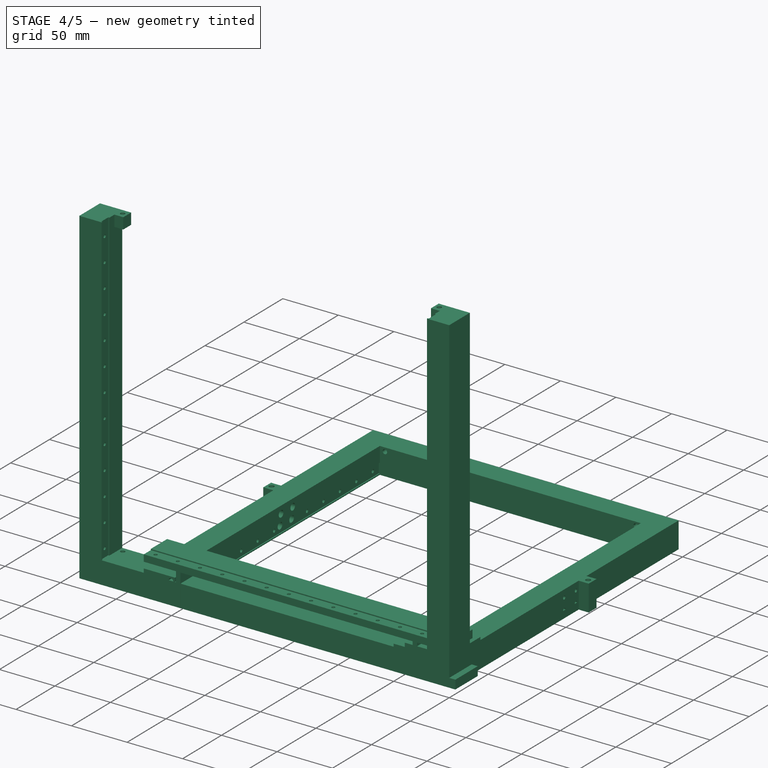
[diagram: stage 4 of 5 — iso view after this stage's code; geometry added in this stage tinted green]
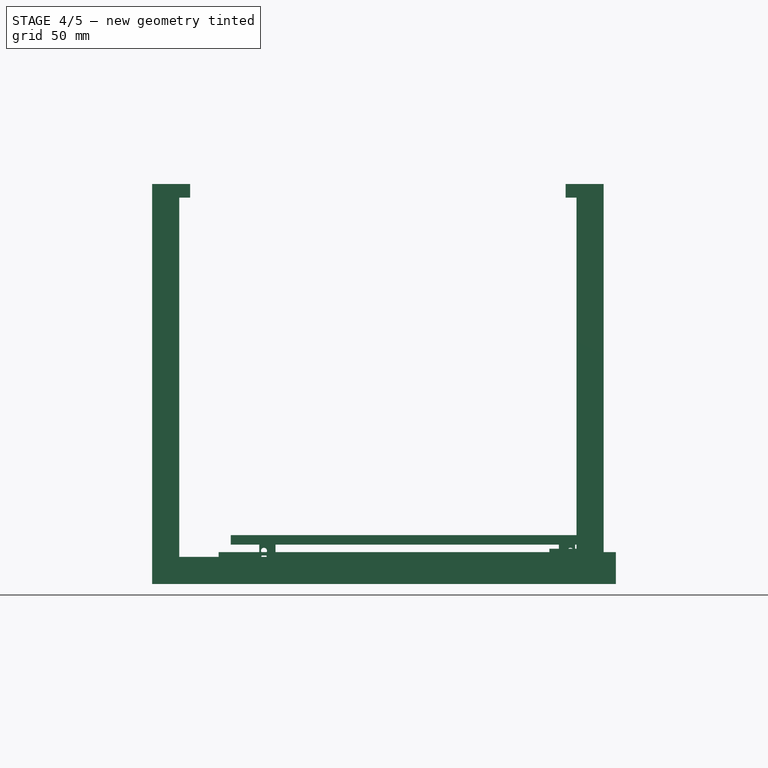
[diagram: stage 4 of 5 — front view after this stage's code; geometry added in this stage tinted green]
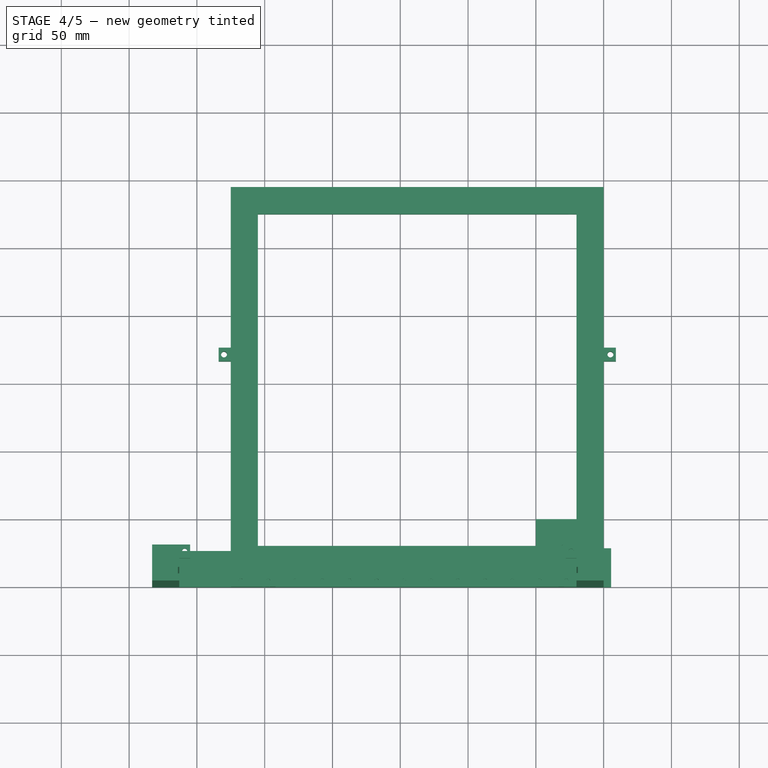
[diagram: stage 4 of 5 — top view after this stage's code; geometry added in this stage tinted green]
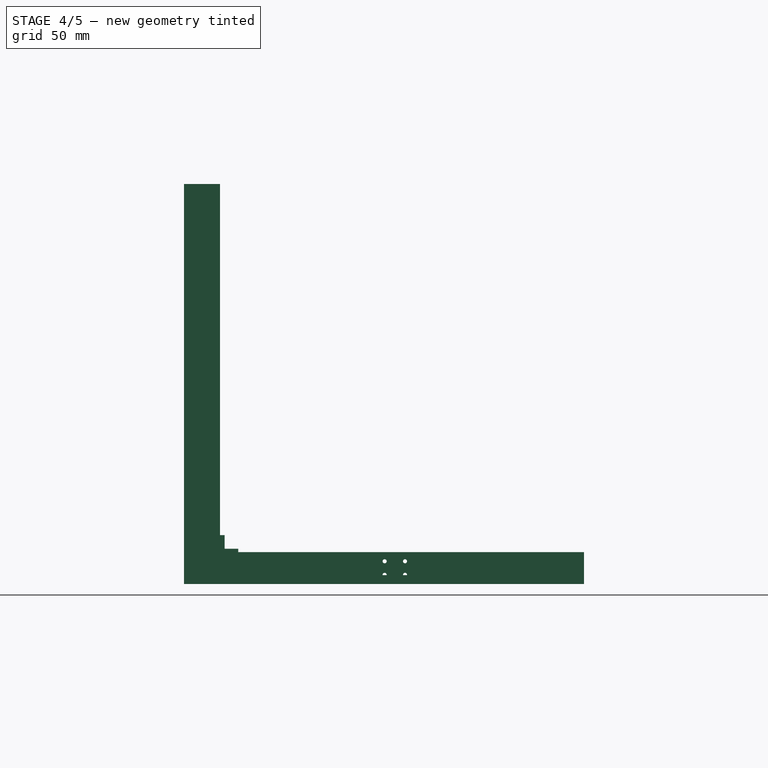
[diagram: stage 4 of 5 — right view after this stage's code; geometry added in this stage tinted green]
FEATURE [Sketcher::SketchObject] Sketch022
  FullyConstrained = true
  MapMode = 5
  Support = -> [XY_Plane008]
  expr: Constraints[11] = (<<Rail>>.Head_Width - <<Rail>>.Rail_Width) / 2
  expr: Constraints[10] = 0
  expr: Constraints[9] = <<Rail>>.Head_Width
  expr: Constraints[8] = <<Rail>>.Head_Length
  sketch-geometry (4):
    g0: LineSegment StartX=5.5 StartY=0 StartZ=0 EndX=-14.5 EndY=0 EndZ=0
    g1: LineSegment StartX=-14.5 StartY=0 StartZ=0 EndX=-14.5 EndY=28.8 EndZ=0
    g2: LineSegment StartX=-14.5 StartY=28.8 StartZ=0 EndX=5.5 EndY=28.8 EndZ=0
    g3: LineSegment StartX=5.5 StartY=28.8 StartZ=0 EndX=5.5 EndY=0 EndZ=0
  constraints (12):
    c: Coincident(g0,g1)
    c: Coincident(g1,g2)
    c: Coincident(g2,g3)
    c: Coincident(g3,g0)
    c: Horizontal(g0)
    c: Horizontal(g2)
    c: Vertical(g1)
    c: Vertical(g3)
    c: DistanceY(g1,g1) = 28.8
    c: DistanceX(g2,g2) = 20
    c: DistanceY(g0,g-1) = 0
    c: DistanceX(g0) = 5.5
FEATURE [PartDesign::Pad] Pad009
  Direction = (1,1,1)
  Length = 8
  Length2 = 100
  Profile = -> Sketch022
  Type = 0
  expr: Length = <<Rail>>.Head_Height
FEATURE [Sketcher::SketchObject] Sketch023
  ExternalGeometry = -> [Pad009]
  FullyConstrained = true
  MapMode = 5
  Placement = pos=(0,0,0) rot=(1,0,0;1.5708rad)
  Support = -> [Pad009]
  expr: Constraints[10] = <<Rail>>.Rail_Height - 2
  expr: Constraints[9] = <<Rail>>.Rail_Width
  sketch-geometry (4):
    g0: LineSegment StartX=-9 StartY=4.5 StartZ=0 EndX=0 EndY=4.5 EndZ=0
    g1: LineSegment StartX=0 StartY=4.5 StartZ=0 EndX=0 EndY=0 EndZ=0
    g2: LineSegment StartX=0 StartY=0 StartZ=0 EndX=-9 EndY=0 EndZ=0
    g3: LineSegment StartX=-9 StartY=0 StartZ=0 EndX=-9 EndY=4.5 EndZ=0
  constraints (11):
    c: Coincident(g0,g1)
    c: Coincident(g1,g2)
    c: Coincident(g2,g3)
    c: Coincident(g3,g0)
    c: Horizontal(g0)
    c: Horizontal(g2)
    c: Vertical(g1)
    c: Vertical(g3)
    c: Coincident(g1,g-1)
    c: DistanceX(g2,g2) = 9
    c: DistanceY(g1,g1) = 4.5
FEATURE [PartDesign::Pocket] Pocket013
  BaseFeature = -> Pad009
  Length = 28.8
  Length2 = 100
  Profile = -> Sketch023
  Type = 0
  expr: Length = <<Rail>>.Head_Length
FEATURE [Sketcher::SketchObject] Sketch024
  FullyConstrained = true
  MapMode = 5
  Support = -> [XY_Plane009]
  expr: Constraints[10] = <<Rail>>.Rail_Length
  expr: Constraints[9] = <<Rail>>.Rail_Width
  sketch-geometry (6):
    g0: LineSegment StartX=-9 StartY=275 StartZ=0 EndX=0 EndY=275 EndZ=0
    g1: LineSegment StartX=0 StartY=275 StartZ=0 EndX=0 EndY=0 EndZ=0
    g2: LineSegment StartX=0 StartY=0 StartZ=0 EndX=-9 EndY=0 EndZ=0
    g3: LineSegment StartX=-9 StartY=0 StartZ=0 EndX=-9 EndY=275 EndZ=0
    g4: GeomPoint X=-4.5 Y=0 Z=0
    g5: LineSegment StartX=-4.5 StartY=0 StartZ=0 EndX=-4.5 EndY=275 EndZ=0
  constraints (15):
    c: Coincident(g0,g1)
    c: Coincident(g1,g2)
    c: Coincident(g2,g3)
    c: Coincident(g3,g0)
    c: Horizontal(g0)
    c: Horizontal(g2)
    c: Vertical(g1)
    c: Vertical(g3)
    c: Coincident(g1,g-1)
    c: DistanceX(g2,g2) = 9
    c: DistanceY(g3,g3) = 275
    c: Symmetric(g2,g1,g4)
    c: Coincident(g5,g4)
    c: Vertical(g5)
    c: PointOnObject(g5,g0)
FEATURE [PartDesign::Pad] Pad008
  Direction = (1,1,1)
  Length = 6.5
  Length2 = 100
  Profile = -> Sketch024
  Type = 0
  expr: Length = <<Rail>>.Rail_Height
FEATURE [PartDesign::Body] Body008  label="RailHead002"
  Group = -> [Sketch022,Pad009,Sketch023,Pocket013,Sketch026,Pocket014,Sketch021,Pocket015]
  Origin = -> Origin009
  Placement = pos=(0,100,2) rot=(0,0,1;0rad)
  Tip = -> Pocket015
  expr: .Placement.Base.y = <<Rail>>.Head_Offset
FEATURE [PartDesign::Pocket] Pocket016
  BaseFeature = -> Pad008
  Length = 6.5
  Length2 = 100
  Profile = -> Sketch025
  Type = 0
  expr: Length = <<Rail>>.Rail_Height
FEATURE [PartDesign::Body] Body009  label="RailRail002"
  Group = -> [Sketch024,Pad008,Sketch025,Pocket016,LinearPattern003]
  Origin = -> Origin008
  Tip = -> LinearPattern003
FEATURE [App::LinkGroup] LinkGroup003  label="RailOnYRail_1"
  ElementList = -> [Body009,Body008]
  LinkMode = 0
  Placement = pos=(-19,0,10) rot=(0,-1,0;1.5708rad)
  expr: .Placement.Base.z = 9 + <<YRail>>.Carrier_Groove_Offset
  expr: .Placement.Base.x = -<<YRail>>.Carrier_Width + <<YRail>>.Carrier_Groove_Depth
FEATURE [Sketcher::SketchObject] Sketch028
  FullyConstrained = true
  MapMode = 5
  Support = -> [XY_Plane010]
  expr: Constraints[8] = <<Rail>>.Head_Length
  expr: Constraints[9] = <<Rail>>.Head_Width
  expr: Constraints[10] = 0
  expr: Constraints[11] = (<<Rail>>.Head_Width - <<Rail>>.Rail_Width) / 2
  sketch-geometry (4):
    g0: LineSegment StartX=5.5 StartY=0 StartZ=0 EndX=-14.5 EndY=0 EndZ=0
    g1: LineSegment StartX=-14.5 StartY=0 StartZ=0 EndX=-14.5 EndY=28.8 EndZ=0
    g2: LineSegment StartX=-14.5 StartY=28.8 StartZ=0 EndX=5.5 EndY=28.8 EndZ=0
    g3: LineSegment StartX=5.5 StartY=28.8 StartZ=0 EndX=5.5 EndY=0 EndZ=0
  constraints (12):
    c: Coincident(g0,g1)
    c: Coincident(g1,g2)
    c: Coincident(g2,g3)
    c: Coincident(g3,g0)
    c: Horizontal(g0)
    c: Horizontal(g2)
    c: Vertical(g1)
    c: Vertical(g3)
    c: DistanceY(g1,g1) = 28.8
    c: DistanceX(g2,g2) = 20
    c: DistanceY(g0,g-1) = 0
    c: DistanceX(g0) = 5.5
FEATURE [PartDesign::Pad] Pad011
  Direction = (1,1,1)
  Length = 8
  Length2 = 100
  Profile = -> Sketch028
  Type = 0
  expr: Length = <<Rail>>.Head_Height
FEATURE [Sketcher::SketchObject] Sketch029
  FullyConstrained = true
  MapMode = 5
  Support = -> [XY_Plane011]
  expr: Constraints[9] = <<Rail>>.Rail_Width
  expr: Constraints[10] = <<Rail>>.Rail_Length
  sketch-geometry (6):
    g0: LineSegment StartX=-9 StartY=275 StartZ=0 EndX=0 EndY=275 EndZ=0
    g1: LineSegment StartX=0 StartY=275 StartZ=0 EndX=0 EndY=0 EndZ=0
    g2: LineSegment StartX=0 StartY=0 StartZ=0 EndX=-9 EndY=0 EndZ=0
    g3: LineSegment StartX=-9 StartY=0 StartZ=0 EndX=-9 EndY=275 EndZ=0
    g4: GeomPoint X=-4.5 Y=0 Z=0
    g5: LineSegment StartX=-4.5 StartY=0 StartZ=0 EndX=-4.5 EndY=275 EndZ=0
  constraints (15):
    c: Coincident(g0,g1)
    c: Coincident(g1,g2)
    c: Coincident(g2,g3)
    c: Coincident(g3,g0)
    c: Horizontal(g0)
    c: Horizontal(g2)
    c: Vertical(g1)
    c: Vertical(g3)
    c: Coincident(g1,g-1)
    c: DistanceX(g2,g2) = 9
    c: DistanceY(g3,g3) = 275
    c: Symmetric(g2,g1,g4)
    c: Coincident(g5,g4)
    c: Vertical(g5)
    c: PointOnObject(g5,g0)
FEATURE [PartDesign::Pad] Pad010
  Direction = (1,1,1)
  Length = 6.5
  Length2 = 100
  Profile = -> Sketch029
  Type = 0
  expr: Length = <<Rail>>.Rail_Height
FEATURE [Sketcher::SketchObject] Sketch030
  ExternalGeometry = -> [Pad010]
  FullyConstrained = true
  MapMode = 5
  Placement = pos=(0,0,6.5) rot=(0,0,1;0rad)
  Support = -> [Pad010]
  expr: Constraints[0] = <<Rail>>.Rail_Width / 2
  expr: Constraints[1] = <<Rail>>.First_Screw_To_Edge
  expr: Constraints[2] = <<Rail>>.Screw_Body_Diameter / 2
  sketch-geometry (1):
    g0: Circle CenterX=-4.5 CenterY=7.5 CenterZ=0 NormalX=0 NormalY=0 NormalZ=1 AngleXU=0 Radius=1.5
  constraints (3):
    c: DistanceX(g0,g-1) = 4.5
    c: DistanceY(g-1,g0) = 7.5
    c: Radius(g0) = 1.5
FEATURE [PartDesign::Pocket] Pocket020
  BaseFeature = -> Pad010
  Length = 6.5
  Length2 = 100
  Profile = -> Sketch030
  Type = 0
  expr: Length = <<Rail>>.Rail_Height
FEATURE [PartDesign::LinearPattern] LinearPattern004
  BaseFeature = -> Pocket020
  Direction = -> Y_Axis011
  Length = 260
  Occurrences = 14
  Originals = -> [Pocket020]
  expr: Occurrences = (<<Rail>>.Rail_Length - <<Rail>>.First_Screw_To_Edge * 2) / <<Rail>>.Screw_To_Screw + 1
  expr: Length = <<Rail>>.Rail_Length - <<Rail>>.First_Screw_To_Edge * 2
FEATURE [PartDesign::Body] Body011  label="RailRail003"
  Group = -> [Sketch029,Pad010,Sketch030,Pocket020,LinearPattern004]
  Origin = -> Origin010
  Tip = -> LinearPattern004
FEATURE [Sketcher::SketchObject] Sketch031
  ExternalGeometry = -> [Pad011]
  FullyConstrained = true
  MapMode = 5
  Placement = pos=(0,0,0) rot=(1,0,0;1.5708rad)
  Support = -> [Pad011]
  expr: Constraints[9] = <<Rail>>.Rail_Width
  expr: Constraints[10] = <<Rail>>.Rail_Height - 2
  sketch-geometry (4):
    g0: LineSegment StartX=-9 StartY=4.5 StartZ=0 EndX=0 EndY=4.5 EndZ=0
    g1: LineSegment StartX=0 StartY=4.5 StartZ=0 EndX=0 EndY=0 EndZ=0
    g2: LineSegment StartX=0 StartY=0 StartZ=0 EndX=-9 EndY=0 EndZ=0
    g3: LineSegment StartX=-9 StartY=0 StartZ=0 EndX=-9 EndY=4.5 EndZ=0
  constraints (11):
    c: Coincident(g0,g1)
    c: Coincident(g1,g2)
    c: Coincident(g2,g3)
    c: Coincident(g3,g0)
    c: Horizontal(g0)
    c: Horizontal(g2)
    c: Vertical(g1)
    c: Vertical(g3)
    c: Coincident(g1,g-1)
    c: DistanceX(g2,g2) = 9
    c: DistanceY(g1,g1) = 4.5
FEATURE [PartDesign::Pocket] Pocket017
  BaseFeature = -> Pad011
  Length = 28.8
  Length2 = 100
  Profile = -> Sketch031
  Type = 0
  expr: Length = <<Rail>>.Head_Length
FEATURE [Sketcher::SketchObject] Sketch032
  ExternalGeometry = -> [Pocket017]
  FullyConstrained = true
  MapMode = 5
  Placement = pos=(0,0,8) rot=(0,0,1;0rad)
  Support = -> [Pocket017]
  expr: Constraints[14] = <<Rail>>.Head_Screw_Width
  expr: Constraints[17] = <<Rail>>.Screw_Body_Diameter / 2
  expr: Constraints[15] = <<Rail>>.Head_Screw_Length
  expr: Constraints[16] = <<Rail>>.Screw_Body_Diameter / 2
  expr: Constraints[18] = <<Rail>>.Screw_Body_Diameter / 2
  expr: Constraints[19] = <<Rail>>.Screw_Body_Diameter / 2
  sketch-geometry (9):
    g0: Circle CenterX=-12 CenterY=19.4 CenterZ=0 NormalX=0 NormalY=0 NormalZ=1 AngleXU=0 Radius=1.5
    g1: Circle CenterX=3 CenterY=9.4 CenterZ=0 NormalX=0 NormalY=0 NormalZ=1 AngleXU=0 Radius=1.5
    g2: Circle CenterX=-12 CenterY=9.4 CenterZ=0 NormalX=0 NormalY=0 NormalZ=1 AngleXU=0 Radius=1.5
    g3: Circle CenterX=3 CenterY=19.4 CenterZ=0 NormalX=0 NormalY=0 NormalZ=1 AngleXU=0 Radius=1.5
    g4: LineSegment StartX=-12 StartY=19.4 StartZ=0 EndX=3 EndY=19.4 EndZ=0
    g5: LineSegment StartX=3 StartY=19.4 StartZ=0 EndX=3 EndY=9.4 EndZ=0
    g6: LineSegment StartX=3 StartY=9.4 StartZ=0 EndX=-12 EndY=9.4 EndZ=0
    g7: LineSegment StartX=-12 StartY=9.4 StartZ=0 EndX=-12 EndY=19.4 EndZ=0
    g8: GeomPoint X=-4.5 Y=14.4 Z=0
  constraints (20):
    c: Coincident(g4,g5)
    c: Coincident(g5,g6)
    c: Coincident(g6,g7)
    c: Coincident(g7,g4)
    c: Horizontal(g4)
    c: Horizontal(g6)
    c: Vertical(g5)
    c: Vertical(g7)
    c: Coincident(g4,g0)
    c: Coincident(g5,g1)
    c: Coincident(g3,g4)
    c: Coincident(g2,g6)
    c: Symmetric(g-3,g-4,g8)
    c: Symmetric(g0,g1,g8)
    c: DistanceX(g4,g4) = 15
    c: DistanceY(g5,g5) = 10
    c: Radius(g3) = 1.5
    c: Radius(g1) = 1.5
    c: Radius(g2) = 1.5
    c: Radius(g0) = 1.5
FEATURE [PartDesign::Pocket] Pocket018
  BaseFeature = -> Pocket017
  Length = 4
  Length2 = 100
  Profile = -> Sketch032
  Type = 0
  expr: Length = <<Rail>>.Head_Screw_Depth
FEATURE [Sketcher::SketchObject] Sketch027
  ExternalGeometry = -> [Pocket018]
  FullyConstrained = true
  MapMode = 5
  Placement = pos=(0,0,8) rot=(0,0,1;0rad)
  Support = -> [Pocket018]
  expr: Constraints[0] = <<Rail>>.Head_Plateau_Length
  sketch-geometry (9):
    g0: LineSegment StartX=-14.5 StartY=28.8 StartZ=0 EndX=5.5 EndY=28.8 EndZ=0
    g1: LineSegment StartX=5.5 StartY=28.8 StartZ=0 EndX=5.5 EndY=23.85 EndZ=0
    g2: LineSegment StartX=5.5 StartY=23.85 StartZ=0 EndX=-14.5 EndY=23.85 EndZ=0
    g3: LineSegment StartX=-14.5 StartY=23.85 StartZ=0 EndX=-14.5 EndY=28.8 EndZ=0
    g4: LineSegment StartX=5.5 StartY=0 StartZ=0 EndX=-14.5 EndY=0 EndZ=0
    g5: LineSegment StartX=-14.5 StartY=0 StartZ=0 EndX=-14.5 EndY=4.95 EndZ=0
    g6: LineSegment StartX=-14.5 StartY=4.95 StartZ=0 EndX=5.5 EndY=4.95 EndZ=0
    g7: LineSegment StartX=5.5 StartY=4.95 StartZ=0 EndX=5.5 EndY=0 EndZ=0
    g8: GeomPoint X=5.5 Y=14.4 Z=0
  constraints (20):
    c: DistanceY(g6,g1) = 18.9
    c: Coincident(g1,g0)
    c: Coincident(g1,g2)
    c: PointOnObject(g1,g-4)
    c: Coincident(g0,g-4)
    c: Coincident(g7,g6)
    c: Horizontal(g2)
    c: Horizontal(g6)
    c: Coincident(g5,g6)
    c: Coincident(g2,g3)
    c: Coincident(g0,g3)
    c: Coincident(g0,g-3)
    c: Coincident(g4,g5)
    c: Coincident(g4,g-3)
    c: Coincident(g4,g7)
    c: Coincident(g4,g-4)
    c: Symmetric(g0,g4,g8)
    c: Symmetric(g1,g6,g8)
    c: Vertical(g3)
    c: Vertical(g5)
FEATURE [PartDesign::Pocket] Pocket019
  BaseFeature = -> Pocket018
  Length = 0.1
  Length2 = 100
  Profile = -> Sketch027
  Type = 0
FEATURE [Sketcher::SketchObject] Sketch040
  ExternalGeometry = -> [Pocket025]
  FullyConstrained = true
  MapMode = 5
  Placement = pos=(0,0,8) rot=(0,0,1;0rad)
  Support = -> [Pocket025]
  expr: Constraints[19] = <<Rail>>.Screw_Body_Diameter / 2
  expr: Constraints[18] = <<Rail>>.Screw_Body_Diameter / 2
  expr: Constraints[16] = <<Rail>>.Screw_Body_Diameter / 2
  expr: Constraints[15] = <<Rail>>.Head_Screw_Length
  expr: Constraints[17] = <<Rail>>.Screw_Body_Diameter / 2
  expr: Constraints[14] = <<Rail>>.Head_Screw_Width
  sketch-geometry (9):
    g0: Circle CenterX=-12 CenterY=19.4 CenterZ=0 NormalX=0 NormalY=0 NormalZ=1 AngleXU=0 Radius=1.5
    g1: Circle CenterX=3 CenterY=9.4 CenterZ=0 NormalX=0 NormalY=0 NormalZ=1 AngleXU=0 Radius=1.5
    g2: Circle CenterX=-12 CenterY=9.4 CenterZ=0 NormalX=0 NormalY=0 NormalZ=1 AngleXU=0 Radius=1.5
    g3: Circle CenterX=3 CenterY=19.4 CenterZ=0 NormalX=0 NormalY=0 NormalZ=1 AngleXU=0 Radius=1.5
    g4: LineSegment StartX=-12 StartY=19.4 StartZ=0 EndX=3 EndY=19.4 EndZ=0
    g5: LineSegment StartX=3 StartY=19.4 StartZ=0 EndX=3 EndY=9.4 EndZ=0
    g6: LineSegment StartX=3 StartY=9.4 StartZ=0 EndX=-12 EndY=9.4 EndZ=0
    g7: LineSegment StartX=-12 StartY=9.4 StartZ=0 EndX=-12 EndY=19.4 EndZ=0
    g8: GeomPoint X=-4.5 Y=14.4 Z=0
  constraints (20):
    c: Coincident(g4,g5)
    c: Coincident(g5,g6)
    c: Coincident(g6,g7)
    c: Coincident(g7,g4)
    c: Horizontal(g4)
    c: Horizontal(g6)
    c: Vertical(g5)
    c: Vertical(g7)
    c: Coincident(g4,g0)
    c: Coincident(g5,g1)
    c: Coincident(g3,g4)
    c: Coincident(g2,g6)
    c: Symmetric(g-3,g-4,g8)
    c: Symmetric(g0,g1,g8)
    c: DistanceX(g4,g4) = 15
    c: DistanceY(g5,g5) = 10
    c: Radius(g3) = 1.5
    c: Radius(g1) = 1.5
    c: Radius(g2) = 1.5
    c: Radius(g0) = 1.5
FEATURE [PartDesign::Pocket] Pocket023
  BaseFeature = -> Pocket025
  Length = 4
  Length2 = 100
  Profile = -> Sketch040
  Type = 0
  expr: Length = <<Rail>>.Head_Screw_Depth
FEATURE [PartDesign::Pad] Pad014
  Direction = (1,1,1)
  Length = 6.5
  Length2 = 100
  Profile = -> Sketch036
  Type = 0
  expr: Length = <<Rail>>.Rail_Height
FEATURE [Sketcher::SketchObject] Sketch037
  ExternalGeometry = -> [Pad014]
  FullyConstrained = true
  MapMode = 5
  Placement = pos=(0,0,6.5) rot=(0,0,1;0rad)
  Support = -> [Pad014]
  expr: Constraints[2] = <<Rail>>.Screw_Body_Diameter / 2
  expr: Constraints[1] = <<Rail>>.First_Screw_To_Edge
  expr: Constraints[0] = <<Rail>>.Rail_Width / 2
  sketch-geometry (1):
    g0: Circle CenterX=-4.5 CenterY=7.5 CenterZ=0 NormalX=0 NormalY=0 NormalZ=1 AngleXU=0 Radius=1.5
  constraints (3):
    c: DistanceX(g0,g-1) = 4.5
    c: DistanceY(g-1,g0) = 7.5
    c: Radius(g0) = 1.5
FEATURE [PartDesign::Pocket] Pocket024
  BaseFeature = -> Pad014
  Length = 6.5
  Length2 = 100
  Profile = -> Sketch037
  Type = 0
  expr: Length = <<Rail>>.Rail_Height
FEATURE [PartDesign::LinearPattern] LinearPattern006
  BaseFeature = -> Pocket024
  Direction = -> Y_Axis014
  Length = 260
  Occurrences = 14
  Originals = -> [Pocket024]
  expr: Length = <<Rail>>.Rail_Length - <<Rail>>.First_Screw_To_Edge * 2
  expr: Occurrences = (<<Rail>>.Rail_Length - <<Rail>>.First_Screw_To_Edge * 2) / <<Rail>>.Screw_To_Screw + 1
FEATURE [PartDesign::Body] Body013  label="RailRail004"
  Group = -> [Sketch036,Pad014,Sketch037,Pocket024,LinearPattern006]
  Origin = -> Origin014
  Tip = -> LinearPattern006
FEATURE [Sketcher::SketchObject] Sketch041
  ExternalGeometry = -> [Pocket023]
  FullyConstrained = true
  MapMode = 5
  Placement = pos=(0,0,8) rot=(0,0,1;0rad)
  Support = -> [Pocket023]
  expr: Constraints[0] = <<Rail>>.Head_Plateau_Length
  sketch-geometry (9):
    g0: LineSegment StartX=-14.5 StartY=28.8 StartZ=0 EndX=5.5 EndY=28.8 EndZ=0
    g1: LineSegment StartX=5.5 StartY=28.8 StartZ=0 EndX=5.5 EndY=23.85 EndZ=0
    g2: LineSegment StartX=5.5 StartY=23.85 StartZ=0 EndX=-14.5 EndY=23.85 EndZ=0
    g3: LineSegment StartX=-14.5 StartY=23.85 StartZ=0 EndX=-14.5 EndY=28.8 EndZ=0
    g4: LineSegment StartX=5.5 StartY=0 StartZ=0 EndX=-14.5 EndY=0 EndZ=0
    g5: LineSegment StartX=-14.5 StartY=0 StartZ=0 EndX=-14.5 EndY=4.95 EndZ=0
    g6: LineSegment StartX=-14.5 StartY=4.95 StartZ=0 EndX=5.5 EndY=4.95 EndZ=0
    g7: LineSegment StartX=5.5 StartY=4.95 StartZ=0 EndX=5.5 EndY=0 EndZ=0
    g8: GeomPoint X=5.5 Y=14.4 Z=0
  constraints (20):
    c: DistanceY(g6,g1) = 18.9
    c: Coincident(g1,g0)
    c: Coincident(g1,g2)
    c: PointOnObject(g1,g-4)
    c: Coincident(g0,g-4)
    c: Coincident(g7,g6)
    c: Horizontal(g2)
    c: Horizontal(g6)
    c: Coincident(g5,g6)
    c: Coincident(g2,g3)
    c: Coincident(g0,g3)
    c: Coincident(g0,g-3)
    c: Coincident(g4,g5)
    c: Coincident(g4,g-3)
    c: Coincident(g4,g7)
    c: Coincident(g4,g-4)
    c: Symmetric(g0,g4,g8)
    c: Symmetric(g1,g6,g8)
    c: Vertical(g3)
    c: Vertical(g5)
FEATURE [PartDesign::Pocket] Pocket026
  BaseFeature = -> Pocket023
  Length = 0.1
  Length2 = 100
  Profile = -> Sketch041
  Type = 0
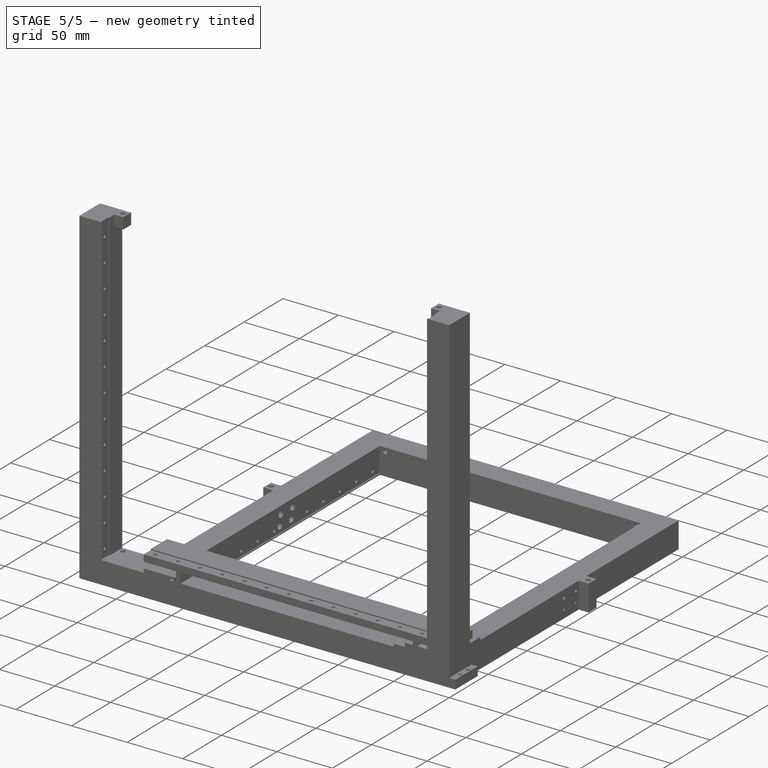
[diagram: stage 5 of 5 — iso view after this stage's code; geometry added in this stage tinted green]
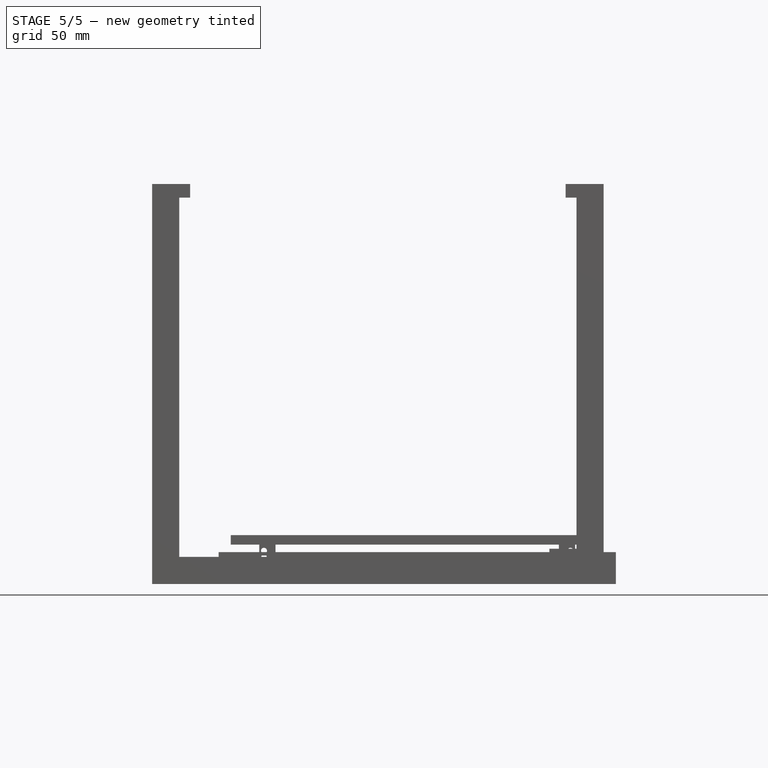
[diagram: stage 5 of 5 — front view after this stage's code; geometry added in this stage tinted green]
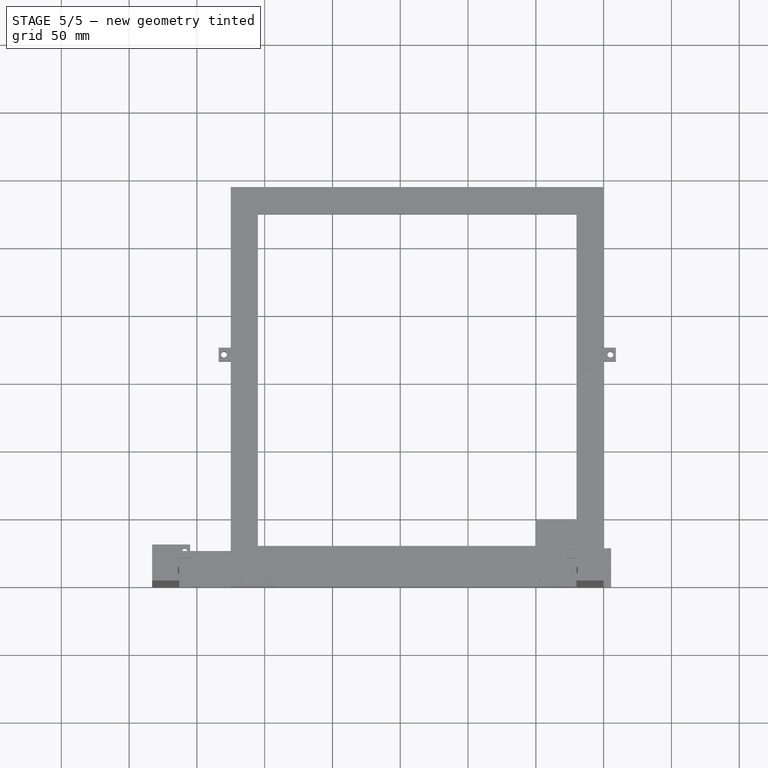
[diagram: stage 5 of 5 — top view after this stage's code; geometry added in this stage tinted green]
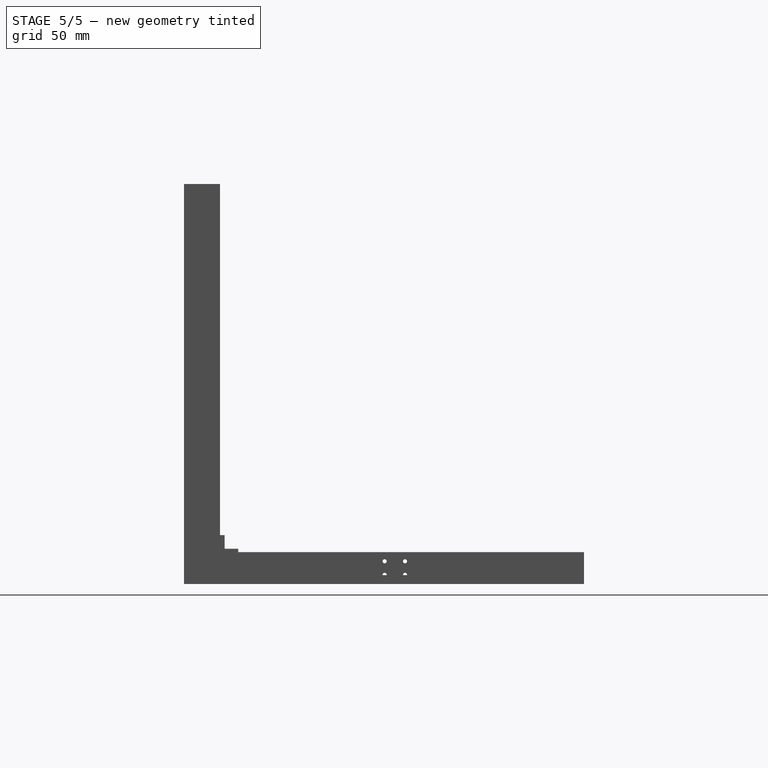
[diagram: stage 5 of 5 — right view after this stage's code; geometry added in this stage tinted green]
FEATURE [Spreadsheet::Sheet] Spreadsheet  label="XRail"
  cells = A6=Length; B6(Length)==<<Rail>>.Rail_Length; A7=Width; B7(Width)=30; A8=Height; B8(Height)==Strength + SafetyDistance + <<YRail>>.Height - <<Rail>>.Rail_Width / 2 + <<Rail>>.Head_Width / 2 - <<YRail>>.Carrier_Groove_Offset; A9=Strength; B9(Strength)==<<GeneralProperties>>.GuideRodDiameter * 1.5 + Rail_Groove_Depth; A11=Rail_Groove_Offset; B11(Rail_Groove_Offset)=0; A12=Rail_Groove_Depth; B12(Rail_Groove_Depth)=1; A14=Connection_Offset_Depth; B14(Connection_Offset_Depth)=5; A15=Connection_Offset_Width; B15(Connection_Offset_Width)=5; A17=YRail_Inset; B17(YRail_Inset)==<<Rail>>.Head_Height + <<Rail>>.Base_To_Head_Base + <<YRail>>.Carrier_Width - <<YRail>>.Carrier_Groove_Depth; A18=YRail_Screw_Distance; B18(YRail_Screw_Distance)==<<Rail>>.Screw_Length - <<Rail>>.Head_Screw_Depth; A20=SafetyDistance; B20(SafetyDistance)=1; A22=GR_Width; B22(GR_Width)=10; A23=GR_Height; B23(GR_Height)==Strength; A24=GR_Depth; B24(GR_Depth)==Strength + SafetyDistance
FEATURE [Spreadsheet::Sheet] Spreadsheet001  label="Rail"
  cells = B4=C; C4=MGN9C 275mm; A5=Rail_Length; B5(Rail_Length)==C5; C5=275; A6=Rail_Width; B6(Rail_Width)==C6; C6=9; A7=Rail_Height; B7(Rail_Height)==C7; C7=6.5; A10=Head_Length; B10(Head_Length)==C10; C10=28.8; A11=Head_Width; B11(Head_Width)==C11; C11=20; A12=Head_Height; B12(Head_Height)==C12; C12=8; A13=Head_Screw_Width; B13(Head_Screw_Width)==C13; C13=15; A14=Head_Screw_Length; B14(Head_Screw_Length)==C14; C14=10; A15=Head_Plateau_Length; B15(Head_Plateau_Length)==C15; C15=18.9; A16=Head_Screw_Depth; B16(Head_Screw_Depth)==C16; C16==C12 / 2; A18=First_Screw_To_Edge; B18(First_Screw_To_Edge)==C18; C18=7.5; A19=Screw_To_Screw; B19(Screw_To_Screw)=20; C19=20; A21=Screw_Type; C21=M3x8; A22=Screw_Head_Diameter; B22(Screw_Head_Diameter)==C22; C22=6; A23=Screw_Body_Diameter; B23(Screw_Body_Diameter)==C23; C23=3; A24=Screw_Length; B24(Screw_Length)==C24; C24=8; A25=Screw_Hole_Diameter; B25(Screw_Hole_Diameter)==C25; C25=3.5; A26=Screw_Head_Depth; B26(Screw_Head_Depth)==C26; C26=3.5; A27=Base_To_Head_Base; B27(Base_To_Head_Base)==C27; C27=2; A29=Rail_Screw_Remaining_Length; B29(Rail_Screw_Remaining_Length)==Screw_Length - (Rail_Height - Screw_Head_Depth); A32=Head_Offset; B32(Head_Offset)=100; C32=80
FEATURE [Spreadsheet::Sheet] Spreadsheet002  label="Sensor"
  cells = C3=ADNS-9800; A4=Width; B4(Width)==C4; C4=14.4; A5=Height; B5(Height)==C5; C5=10.75; A6=Depth; B6(Depth)==C6; C6=15.6; A8=ScrewWidth; B8(ScrewWidth)==C8; C8=6.55; A9=ScrewDepth; B9(ScrewDepth)==C9; C9=10.29; A10=ScrewDiameter; B10(ScrewDiameter)==C10; C10=2
FEATURE [Spreadsheet::Sheet] Spreadsheet003  label="GeneralProperties"
  cells = B3=mm; A4=X_Translate; B4(X_Translate)=200; A5=Y_Translate; B5(Y_Translate)=200; A6=Z_Translate; B6(Z_Translate)=200; A9=GuideRodDiameter; B9(GuideRodDiameter)=4
FEATURE [Sketcher::SketchObject] Sketch
  FullyConstrained = true
  MapMode = 5
  Support = -> [XY_Plane]
  expr: Constraints[9] = <<Sensor>>.Depth
  expr: Constraints[10] = <<Sensor>>.Width
  sketch-geometry (4):
    g0: LineSegment StartX=-14.4 StartY=15.6 StartZ=0 EndX=0 EndY=15.6 EndZ=0
    g1: LineSegment StartX=0 StartY=15.6 StartZ=0 EndX=0 EndY=0 EndZ=0
    g2: LineSegment StartX=0 StartY=0 StartZ=0 EndX=-14.4 EndY=0 EndZ=0
    g3: LineSegment StartX=-14.4 StartY=0 StartZ=0 EndX=-14.4 EndY=15.6 EndZ=0
  constraints (11):
    c: Coincident(g0,g1)
    c: Coincident(g1,g2)
    c: Coincident(g2,g3)
    c: Coincident(g3,g0)
    c: Horizontal(g0)
    c: Horizontal(g2)
    c: Vertical(g1)
    c: Vertical(g3)
    c: Coincident(g1,g-1)
    c: DistanceY(g3,g3) = 15.6
    c: DistanceX(g0,g0) = 14.4
FEATURE [PartDesign::Pad] Pad
  Direction = (1,1,1)
  Length = 10.75
  Length2 = 100
  Profile = -> Sketch
  Type = 0
  expr: Length = <<Sensor>>.Height
FEATURE [PartDesign::Body] Body  label="OpticalSensor"
  Group = -> [Sketch,Pad]
  Origin = -> Origin
  Tip = -> Pad
FEATURE [Sketcher::SketchObject] Sketch001
  FullyConstrained = true
  MapMode = 5
  Support = -> [XY_Plane001]
  expr: Constraints[9] = <<Rail>>.Rail_Width
  expr: Constraints[10] = <<Rail>>.Rail_Length
  sketch-geometry (6):
    g0: LineSegment StartX=-9 StartY=275 StartZ=0 EndX=0 EndY=275 EndZ=0
    g1: LineSegment StartX=0 StartY=275 StartZ=0 EndX=0 EndY=0 EndZ=0
    g2: LineSegment StartX=0 StartY=0 StartZ=0 EndX=-9 EndY=0 EndZ=0
    g3: LineSegment StartX=-9 StartY=0 StartZ=0 EndX=-9 EndY=275 EndZ=0
    g4: GeomPoint X=-4.5 Y=0 Z=0
    g5: LineSegment StartX=-4.5 StartY=0 StartZ=0 EndX=-4.5 EndY=275 EndZ=0
  constraints (15):
    c: Coincident(g0,g1)
    c: Coincident(g1,g2)
    c: Coincident(g2,g3)
    c: Coincident(g3,g0)
    c: Horizontal(g0)
    c: Horizontal(g2)
    c: Vertical(g1)
    c: Vertical(g3)
    c: Coincident(g1,g-1)
    c: DistanceX(g2,g2) = 9
    c: DistanceY(g3,g3) = 275
    c: Symmetric(g2,g1,g4)
    c: Coincident(g5,g4)
    c: Vertical(g5)
    c: PointOnObject(g5,g0)
FEATURE [PartDesign::Pad] Pad001
  Direction = (1,1,1)
  Length = 6.5
  Length2 = 100
  Profile = -> Sketch001
  Type = 0
  expr: Length = <<Rail>>.Rail_Height
FEATURE [Sketcher::SketchObject] Sketch002
  ExternalGeometry = -> [Pad001]
  FullyConstrained = true
  MapMode = 5
  Placement = pos=(0,0,6.5) rot=(0,0,1;0rad)
  Support = -> [Pad001]
  expr: Constraints[0] = <<Rail>>.Rail_Width / 2
  expr: Constraints[1] = <<Rail>>.First_Screw_To_Edge
  expr: Constraints[2] = <<Rail>>.Screw_Body_Diameter / 2
  sketch-geometry (1):
    g0: Circle CenterX=-4.5 CenterY=7.5 CenterZ=0 NormalX=0 NormalY=0 NormalZ=1 AngleXU=0 Radius=1.5
  constraints (3):
    c: DistanceX(g0,g-1) = 4.5
    c: DistanceY(g-1,g0) = 7.5
    c: Radius(g0) = 1.5
FEATURE [PartDesign::Pocket] Pocket
  BaseFeature = -> Pad001
  Length = 6.5
  Length2 = 100
  Profile = -> Sketch002
  Type = 0
  expr: Length = <<Rail>>.Rail_Height
FEATURE [PartDesign::LinearPattern] LinearPattern
  BaseFeature = -> Pocket
  Direction = -> Y_Axis001
  Length = 260
  Occurrences = 14
  Originals = -> [Pocket]
  expr: Occurrences = (<<Rail>>.Rail_Length - <<Rail>>.First_Screw_To_Edge * 2) / <<Rail>>.Screw_To_Screw + 1
  expr: Length = <<Rail>>.Rail_Length - <<Rail>>.First_Screw_To_Edge * 2
FEATURE [PartDesign::Body] Body001  label="RailRail"
  Group = -> [Sketch001,Pad001,Sketch002,Pocket,LinearPattern]
  Origin = -> Origin001
  Tip = -> LinearPattern
FEATURE [Sketcher::SketchObject] Sketch003
  FullyConstrained = true
  MapMode = 5
  Support = -> [XY_Plane002]
  expr: Constraints[8] = <<Rail>>.Head_Length
  expr: Constraints[9] = <<Rail>>.Head_Width
  expr: Constraints[10] = 0
  expr: Constraints[11] = (<<Rail>>.Head_Width - <<Rail>>.Rail_Width) / 2
  sketch-geometry (4):
    g0: LineSegment StartX=5.5 StartY=0 StartZ=0 EndX=-14.5 EndY=0 EndZ=0
    g1: LineSegment StartX=-14.5 StartY=0 StartZ=0 EndX=-14.5 EndY=28.8 EndZ=0
    g2: LineSegment StartX=-14.5 StartY=28.8 StartZ=0 EndX=5.5 EndY=28.8 EndZ=0
    g3: LineSegment StartX=5.5 StartY=28.8 StartZ=0 EndX=5.5 EndY=0 EndZ=0
  constraints (12):
    c: Coincident(g0,g1)
    c: Coincident(g1,g2)
    c: Coincident(g2,g3)
    c: Coincident(g3,g0)
    c: Horizontal(g0)
    c: Horizontal(g2)
    c: Vertical(g1)
    c: Vertical(g3)
    c: DistanceY(g1,g1) = 28.8
    c: DistanceX(g2,g2) = 20
    c: DistanceY(g0,g-1) = 0
    c: DistanceX(g0) = 5.5
FEATURE [PartDesign::Pad] Pad002
  Direction = (1,1,1)
  Length = 8
  Length2 = 100
  Profile = -> Sketch003
  Type = 0
  expr: Length = <<Rail>>.Head_Height
FEATURE [Sketcher::SketchObject] Sketch004
  ExternalGeometry = -> [Pad002]
  FullyConstrained = true
  MapMode = 5
  Placement = pos=(0,0,0) rot=(1,0,0;1.5708rad)
  Support = -> [Pad002]
  expr: Constraints[9] = <<Rail>>.Rail_Width
  expr: Constraints[10] = <<Rail>>.Rail_Height - 2
  sketch-geometry (4):
    g0: LineSegment StartX=-9 StartY=4.5 StartZ=0 EndX=0 EndY=4.5 EndZ=0
    g1: LineSegment StartX=0 StartY=4.5 StartZ=0 EndX=0 EndY=0 EndZ=0
    g2: LineSegment StartX=0 StartY=0 StartZ=0 EndX=-9 EndY=0 EndZ=0
    g3: LineSegment StartX=-9 StartY=0 StartZ=0 EndX=-9 EndY=4.5 EndZ=0
  constraints (11):
    c: Coincident(g0,g1)
    c: Coincident(g1,g2)
    c: Coincident(g2,g3)
    c: Coincident(g3,g0)
    c: Horizontal(g0)
    c: Horizontal(g2)
    c: Vertical(g1)
    c: Vertical(g3)
    c: Coincident(g1,g-1)
    c: DistanceX(g2,g2) = 9
    c: DistanceY(g1,g1) = 4.5
FEATURE [PartDesign::Pocket] Pocket001
  BaseFeature = -> Pad002
  Length = 28.8
  Length2 = 100
  Profile = -> Sketch004
  Type = 0
  expr: Length = <<Rail>>.Head_Length
FEATURE [Sketcher::SketchObject] Sketch005
  ExternalGeometry = -> [Pocket001]
  FullyConstrained = true
  MapMode = 5
  Placement = pos=(0,0,8) rot=(0,0,1;0rad)
  Support = -> [Pocket001]
  expr: Constraints[14] = <<Rail>>.Head_Screw_Width
  expr: Constraints[17] = <<Rail>>.Screw_Body_Diameter / 2
  expr: Constraints[15] = <<Rail>>.Head_Screw_Length
  expr: Constraints[16] = <<Rail>>.Screw_Body_Diameter / 2
  expr: Constraints[18] = <<Rail>>.Screw_Body_Diameter / 2
  expr: Constraints[19] = <<Rail>>.Screw_Body_Diameter / 2
  sketch-geometry (9):
    g0: Circle CenterX=-12 CenterY=19.4 CenterZ=0 NormalX=0 NormalY=0 NormalZ=1 AngleXU=0 Radius=1.5
    g1: Circle CenterX=3 CenterY=9.4 CenterZ=0 NormalX=0 NormalY=0 NormalZ=1 AngleXU=0 Radius=1.5
    g2: Circle CenterX=-12 CenterY=9.4 CenterZ=0 NormalX=0 NormalY=0 NormalZ=1 AngleXU=0 Radius=1.5
    g3: Circle CenterX=3 CenterY=19.4 CenterZ=0 NormalX=0 NormalY=0 NormalZ=1 AngleXU=0 Radius=1.5
    g4: LineSegment StartX=-12 StartY=19.4 StartZ=0 EndX=3 EndY=19.4 EndZ=0
    g5: LineSegment StartX=3 StartY=19.4 StartZ=0 EndX=3 EndY=9.4 EndZ=0
    g6: LineSegment StartX=3 StartY=9.4 StartZ=0 EndX=-12 EndY=9.4 EndZ=0
    g7: LineSegment StartX=-12 StartY=9.4 StartZ=0 EndX=-12 EndY=19.4 EndZ=0
    g8: GeomPoint X=-4.5 Y=14.4 Z=0
  constraints (20):
    c: Coincident(g4,g5)
    c: Coincident(g5,g6)
    c: Coincident(g6,g7)
    c: Coincident(g7,g4)
    c: Horizontal(g4)
    c: Horizontal(g6)
    c: Vertical(g5)
    c: Vertical(g7)
    c: Coincident(g4,g0)
    c: Coincident(g5,g1)
    c: Coincident(g3,g4)
    c: Coincident(g2,g6)
    c: Symmetric(g-3,g-4,g8)
    c: Symmetric(g0,g1,g8)
    c: DistanceX(g4,g4) = 15
    c: DistanceY(g5,g5) = 10
    c: Radius(g3) = 1.5
    c: Radius(g1) = 1.5
    c: Radius(g2) = 1.5
    c: Radius(g0) = 1.5
FEATURE [PartDesign::Pocket] Pocket002
  BaseFeature = -> Pocket001
  Length = 4
  Length2 = 100
  Profile = -> Sketch005
  Type = 0
  expr: Length = <<Rail>>.Head_Screw_Depth
FEATURE [Sketcher::SketchObject] Sketch006
  ExternalGeometry = -> [Pocket002]
  FullyConstrained = true
  MapMode = 5
  Placement = pos=(0,0,8) rot=(0,0,1;0rad)
  Support = -> [Pocket002]
  expr: Constraints[0] = <<Rail>>.Head_Plateau_Length
  sketch-geometry (9):
    g0: LineSegment StartX=-14.5 StartY=28.8 StartZ=0 EndX=5.5 EndY=28.8 EndZ=0
    g1: LineSegment StartX=5.5 StartY=28.8 StartZ=0 EndX=5.5 EndY=23.85 EndZ=0
    g2: LineSegment StartX=5.5 StartY=23.85 StartZ=0 EndX=-14.5 EndY=23.85 EndZ=0
    g3: LineSegment StartX=-14.5 StartY=23.85 StartZ=0 EndX=-14.5 EndY=28.8 EndZ=0
    g4: LineSegment StartX=5.5 StartY=0 StartZ=0 EndX=-14.5 EndY=0 EndZ=0
    g5: LineSegment StartX=-14.5 StartY=0 StartZ=0 EndX=-14.5 EndY=4.95 EndZ=0
    g6: LineSegment StartX=-14.5 StartY=4.95 StartZ=0 EndX=5.5 EndY=4.95 EndZ=0
    g7: LineSegment StartX=5.5 StartY=4.95 StartZ=0 EndX=5.5 EndY=0 EndZ=0
    g8: GeomPoint X=5.5 Y=14.4 Z=0
  constraints (20):
    c: DistanceY(g6,g1) = 18.9
    c: Coincident(g1,g0)
    c: Coincident(g1,g2)
    c: PointOnObject(g1,g-4)
    c: Coincident(g0,g-4)
    c: Coincident(g7,g6)
    c: Horizontal(g2)
    c: Horizontal(g6)
    c: Coincident(g5,g6)
    c: Coincident(g2,g3)
    c: Coincident(g0,g3)
    c: Coincident(g0,g-3)
    c: Coincident(g4,g5)
    c: Coincident(g4,g-3)
    c: Coincident(g4,g7)
    c: Coincident(g4,g-4)
    c: Symmetric(g0,g4,g8)
    c: Symmetric(g1,g6,g8)
    c: Vertical(g3)
    c: Vertical(g5)
FEATURE [PartDesign::Pocket] Pocket003
  BaseFeature = -> Pocket002
  Length = 0.1
  Length2 = 100
  Profile = -> Sketch006
  Type = 0
FEATURE [Sketcher::SketchObject] Sketch010
  FullyConstrained = true
  MapMode = 5
  Support = -> [XY_Plane004]
  expr: Constraints[10] = <<Rail>>.Rail_Length
  expr: Constraints[9] = <<Rail>>.Rail_Width
  sketch-geometry (6):
    g0: LineSegment StartX=-9 StartY=275 StartZ=0 EndX=0 EndY=275 EndZ=0
    g1: LineSegment StartX=0 StartY=275 StartZ=0 EndX=0 EndY=0 EndZ=0
    g2: LineSegment StartX=0 StartY=0 StartZ=0 EndX=-9 EndY=0 EndZ=0
    g3: LineSegment StartX=-9 StartY=0 StartZ=0 EndX=-9 EndY=275 EndZ=0
    g4: GeomPoint X=-4.5 Y=0 Z=0
    g5: LineSegment StartX=-4.5 StartY=0 StartZ=0 EndX=-4.5 EndY=275 EndZ=0
  constraints (15):
    c: Coincident(g0,g1)
    c: Coincident(g1,g2)
    c: Coincident(g2,g3)
    c: Coincident(g3,g0)
    c: Horizontal(g0)
    c: Horizontal(g2)
    c: Vertical(g1)
    c: Vertical(g3)
    c: Coincident(g1,g-1)
    c: DistanceX(g2,g2) = 9
    c: DistanceY(g3,g3) = 275
    c: Symmetric(g2,g1,g4)
    c: Coincident(g5,g4)
    c: Vertical(g5)
    c: PointOnObject(g5,g0)
FEATURE [PartDesign::Pad] Pad005
  Direction = (1,1,1)
  Length = 6.5
  Length2 = 100
  Profile = -> Sketch010
  Type = 0
  expr: Length = <<Rail>>.Rail_Height
FEATURE [Sketcher::SketchObject] Sketch011
  ExternalGeometry = -> [Pad005]
  FullyConstrained = true
  MapMode = 5
  Placement = pos=(0,0,6.5) rot=(0,0,1;0rad)
  Support = -> [Pad005]
  expr: Constraints[2] = <<Rail>>.Screw_Body_Diameter / 2
  expr: Constraints[1] = <<Rail>>.First_Screw_To_Edge
  expr: Constraints[0] = <<Rail>>.Rail_Width / 2
  sketch-geometry (1):
    g0: Circle CenterX=-4.5 CenterY=7.5 CenterZ=0 NormalX=0 NormalY=0 NormalZ=1 AngleXU=0 Radius=1.5
  constraints (3):
    c: DistanceX(g0,g-1) = 4.5
    c: DistanceY(g-1,g0) = 7.5
    c: Radius(g0) = 1.5
FEATURE [PartDesign::Pocket] Pocket009
  BaseFeature = -> Pad005
  Length = 6.5
  Length2 = 100
  Profile = -> Sketch011
  Type = 0
  expr: Length = <<Rail>>.Rail_Height
FEATURE [PartDesign::LinearPattern] LinearPattern002
  BaseFeature = -> Pocket009
  Direction = -> Y_Axis004
  Length = 260
  Occurrences = 14
  Originals = -> [Pocket009]
  expr: Length = <<Rail>>.Rail_Length - <<Rail>>.First_Screw_To_Edge * 2
  expr: Occurrences = (<<Rail>>.Rail_Length - <<Rail>>.First_Screw_To_Edge * 2) / <<Rail>>.Screw_To_Screw + 1
FEATURE [PartDesign::Body] Body005  label="RailHead001"
  Group = -> [Sketch013,Pad004,Sketch014,Pocket006,Sketch015,Pocket007,Sketch012,Pocket008]
  Origin = -> Origin005
  Placement = pos=(0,100,2) rot=(0,0,1;0rad)
  Tip = -> Pocket008
  expr: .Placement.Base.y = <<Rail>>.Head_Offset
FEATURE [App::LinkGroup] LinkGroup001  label="RailOnXRail"
  ElementList = -> [Body004,Body005]
  LinkMode = 0
  Placement = pos=(0,9,35) rot=(0,0,1;1.5708rad)
  expr: .Placement.Base.x = 0
  expr: .Placement.Base.y = 9 + <<XRail>>.Rail_Groove_Offset
  expr: .Placement.Base.z = <<XRail>>.Height - <<XRail>>.Rail_Groove_Depth
FEATURE [Sketcher::SketchObject] Sketch016
  FullyConstrained = true
  MapMode = 5
  Support = -> [XY_Plane006]
  expr: Constraints[10] = <<Sensor>>.Width
  expr: Constraints[9] = <<Sensor>>.Depth
  sketch-geometry (4):
    g0: LineSegment StartX=-14.4 StartY=15.6 StartZ=0 EndX=0 EndY=15.6 EndZ=0
    g1: LineSegment StartX=0 StartY=15.6 StartZ=0 EndX=0 EndY=0 EndZ=0
    g2: LineSegment StartX=0 StartY=0 StartZ=0 EndX=-14.4 EndY=0 EndZ=0
    g3: LineSegment StartX=-14.4 StartY=0 StartZ=0 EndX=-14.4 EndY=15.6 EndZ=0
  constraints (11):
    c: Coincident(g0,g1)
    c: Coincident(g1,g2)
    c: Coincident(g2,g3)
    c: Coincident(g3,g0)
    c: Horizontal(g0)
    c: Horizontal(g2)
    c: Vertical(g1)
    c: Vertical(g3)
    c: Coincident(g1,g-1)
    c: DistanceY(g3,g3) = 15.6
    c: DistanceX(g0,g0) = 14.4
FEATURE [PartDesign::Pad] Pad006
  Direction = (1,1,1)
  Length = 10.75
  Length2 = 100
  Profile = -> Sketch016
  Type = 0
  expr: Length = <<Sensor>>.Height
FEATURE [Sketcher::SketchObject] Sketch025
  ExternalGeometry = -> [Pad008]
  FullyConstrained = true
  MapMode = 5
  Placement = pos=(0,0,6.5) rot=(0,0,1;0rad)
  Support = -> [Pad008]
  expr: Constraints[2] = <<Rail>>.Screw_Body_Diameter / 2
  expr: Constraints[1] = <<Rail>>.First_Screw_To_Edge
  expr: Constraints[0] = <<Rail>>.Rail_Width / 2
  sketch-geometry (1):
    g0: Circle CenterX=-4.5 CenterY=7.5 CenterZ=0 NormalX=0 NormalY=0 NormalZ=1 AngleXU=0 Radius=1.5
  constraints (3):
    c: DistanceX(g0,g-1) = 4.5
    c: DistanceY(g-1,g0) = 7.5
    c: Radius(g0) = 1.5
FEATURE [Sketcher::SketchObject] Sketch026
  ExternalGeometry = -> [Pocket013]
  FullyConstrained = true
  MapMode = 5
  Placement = pos=(0,0,8) rot=(0,0,1;0rad)
  Support = -> [Pocket013]
  expr: Constraints[19] = <<Rail>>.Screw_Body_Diameter / 2
  expr: Constraints[18] = <<Rail>>.Screw_Body_Diameter / 2
  expr: Constraints[16] = <<Rail>>.Screw_Body_Diameter / 2
  expr: Constraints[15] = <<Rail>>.Head_Screw_Length
  expr: Constraints[17] = <<Rail>>.Screw_Body_Diameter / 2
  expr: Constraints[14] = <<Rail>>.Head_Screw_Width
  sketch-geometry (9):
    g0: Circle CenterX=-12 CenterY=19.4 CenterZ=0 NormalX=0 NormalY=0 NormalZ=1 AngleXU=0 Radius=1.5
    g1: Circle CenterX=3 CenterY=9.4 CenterZ=0 NormalX=0 NormalY=0 NormalZ=1 AngleXU=0 Radius=1.5
    g2: Circle CenterX=-12 CenterY=9.4 CenterZ=0 NormalX=0 NormalY=0 NormalZ=1 AngleXU=0 Radius=1.5
    g3: Circle CenterX=3 CenterY=19.4 CenterZ=0 NormalX=0 NormalY=0 NormalZ=1 AngleXU=0 Radius=1.5
    g4: LineSegment StartX=-12 StartY=19.4 StartZ=0 EndX=3 EndY=19.4 EndZ=0
    g5: LineSegment StartX=3 StartY=19.4 StartZ=0 EndX=3 EndY=9.4 EndZ=0
    g6: LineSegment StartX=3 StartY=9.4 StartZ=0 EndX=-12 EndY=9.4 EndZ=0
    g7: LineSegment StartX=-12 StartY=9.4 StartZ=0 EndX=-12 EndY=19.4 EndZ=0
    g8: GeomPoint X=-4.5 Y=14.4 Z=0
  constraints (20):
    c: Coincident(g4,g5)
    c: Coincident(g5,g6)
    c: Coincident(g6,g7)
    c: Coincident(g7,g4)
    c: Horizontal(g4)
    c: Horizontal(g6)
    c: Vertical(g5)
    c: Vertical(g7)
    c: Coincident(g4,g0)
    c: Coincident(g5,g1)
    c: Coincident(g3,g4)
    c: Coincident(g2,g6)
    c: Symmetric(g-3,g-4,g8)
    c: Symmetric(g0,g1,g8)
    c: DistanceX(g4,g4) = 15
    c: DistanceY(g5,g5) = 10
    c: Radius(g3) = 1.5
    c: Radius(g1) = 1.5
    c: Radius(g2) = 1.5
    c: Radius(g0) = 1.5
FEATURE [PartDesign::Pocket] Pocket014
  BaseFeature = -> Pocket013
  Length = 4
  Length2 = 100
  Profile = -> Sketch026
  Type = 0
  expr: Length = <<Rail>>.Head_Screw_Depth
FEATURE [Sketcher::SketchObject] Sketch021
  ExternalGeometry = -> [Pocket014]
  FullyConstrained = true
  MapMode = 5
  Placement = pos=(0,0,8) rot=(0,0,1;0rad)
  Support = -> [Pocket014]
  expr: Constraints[0] = <<Rail>>.Head_Plateau_Length
  sketch-geometry (9):
    g0: LineSegment StartX=-14.5 StartY=28.8 StartZ=0 EndX=5.5 EndY=28.8 EndZ=0
    g1: LineSegment StartX=5.5 StartY=28.8 StartZ=0 EndX=5.5 EndY=23.85 EndZ=0
    g2: LineSegment StartX=5.5 StartY=23.85 StartZ=0 EndX=-14.5 EndY=23.85 EndZ=0
    g3: LineSegment StartX=-14.5 StartY=23.85 StartZ=0 EndX=-14.5 EndY=28.8 EndZ=0
    g4: LineSegment StartX=5.5 StartY=0 StartZ=0 EndX=-14.5 EndY=0 EndZ=0
    g5: LineSegment StartX=-14.5 StartY=0 StartZ=0 EndX=-14.5 EndY=4.95 EndZ=0
    g6: LineSegment StartX=-14.5 StartY=4.95 StartZ=0 EndX=5.5 EndY=4.95 EndZ=0
    g7: LineSegment StartX=5.5 StartY=4.95 StartZ=0 EndX=5.5 EndY=0 EndZ=0
    g8: GeomPoint X=5.5 Y=14.4 Z=0
  constraints (20):
    c: DistanceY(g6,g1) = 18.9
    c: Coincident(g1,g0)
    c: Coincident(g1,g2)
    c: PointOnObject(g1,g-4)
    c: Coincident(g0,g-4)
    c: Coincident(g7,g6)
    c: Horizontal(g2)
    c: Horizontal(g6)
    c: Coincident(g5,g6)
    c: Coincident(g2,g3)
    c: Coincident(g0,g3)
    c: Coincident(g0,g-3)
    c: Coincident(g4,g5)
    c: Coincident(g4,g-3)
    c: Coincident(g4,g7)
    c: Coincident(g4,g-4)
    c: Symmetric(g0,g4,g8)
    c: Symmetric(g1,g6,g8)
    c: Vertical(g3)
    c: Vertical(g5)
FEATURE [PartDesign::Pocket] Pocket015
  BaseFeature = -> Pocket014
  Length = 0.1
  Length2 = 100
  Profile = -> Sketch021
  Type = 0
FEATURE [PartDesign::LinearPattern] LinearPattern003
  BaseFeature = -> Pocket016
  Direction = -> Y_Axis009
  Length = 260
  Occurrences = 14
  Originals = -> [Pocket016]
  expr: Length = <<Rail>>.Rail_Length - <<Rail>>.First_Screw_To_Edge * 2
  expr: Occurrences = (<<Rail>>.Rail_Length - <<Rail>>.First_Screw_To_Edge * 2) / <<Rail>>.Screw_To_Screw + 1
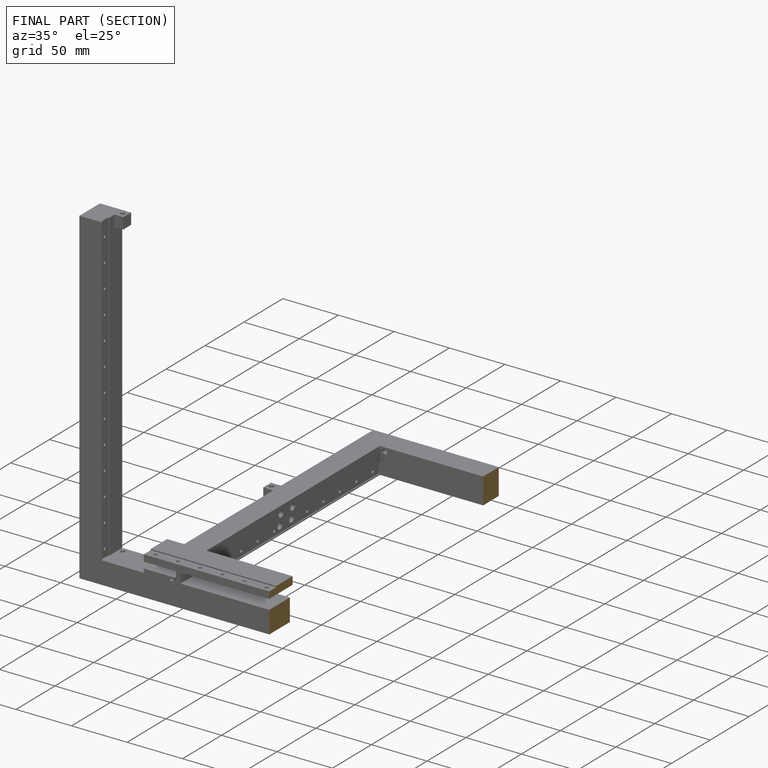
[diagram: finished part — half-section view (interior)]
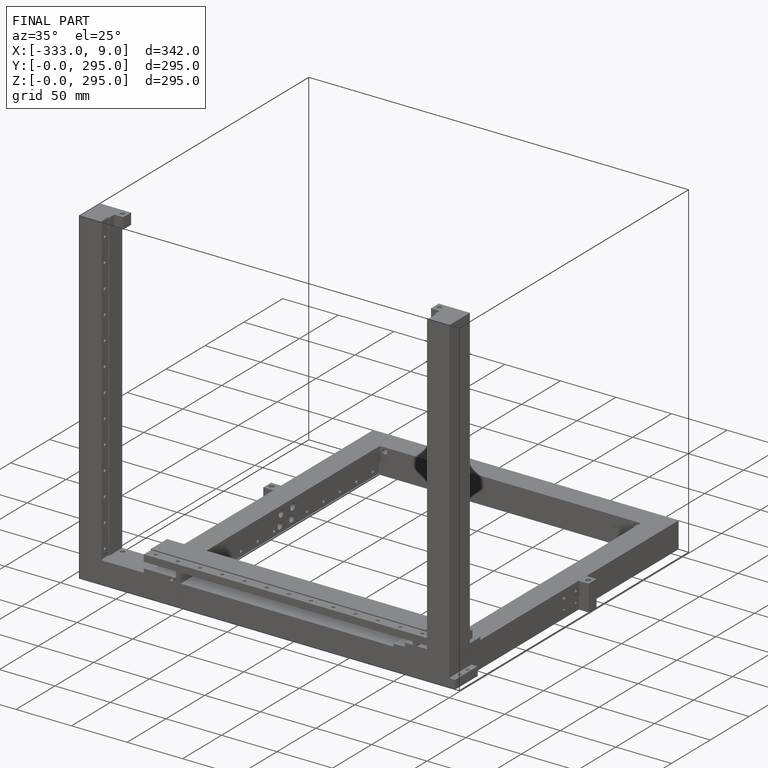
[diagram: finished part — iso view with bounding-box wireframe]
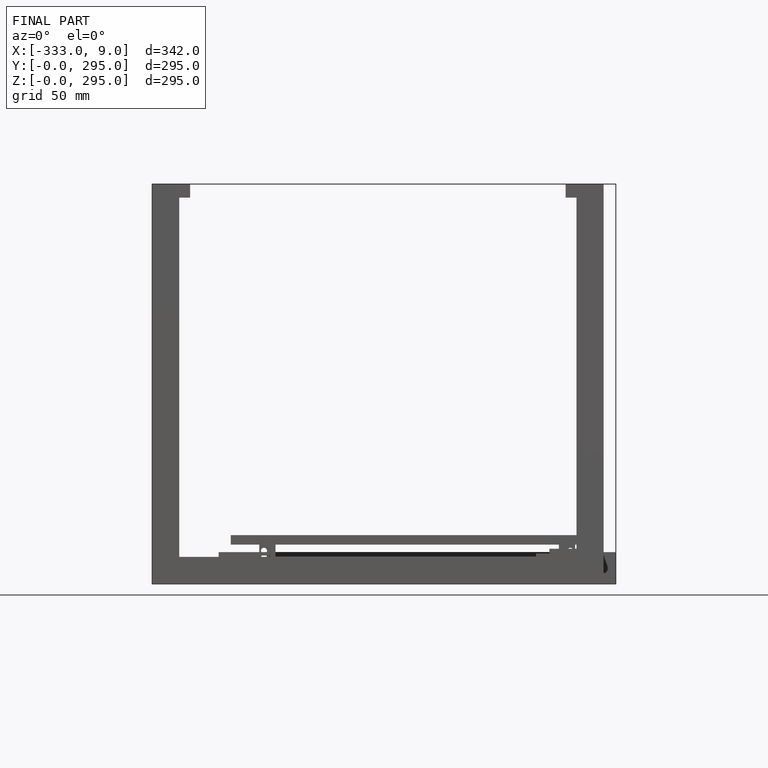
[diagram: finished part — front view with bounding-box wireframe]
